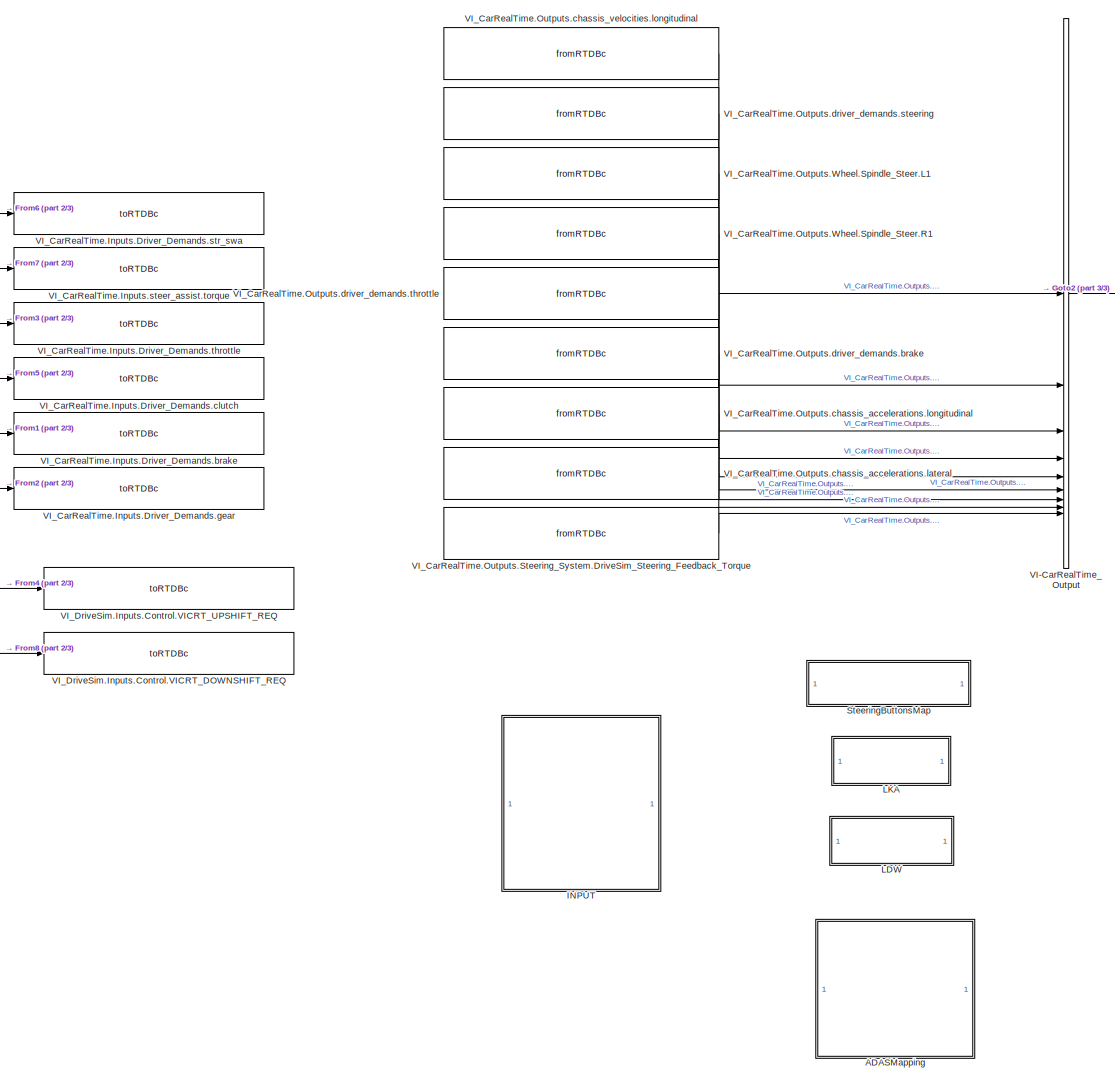
[diagram: root canvas - part 1/3, center side, full height]
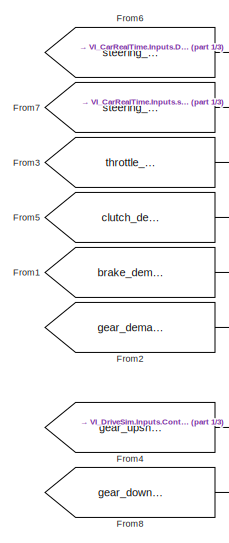
[diagram: root canvas - part 2/3, middle left region]
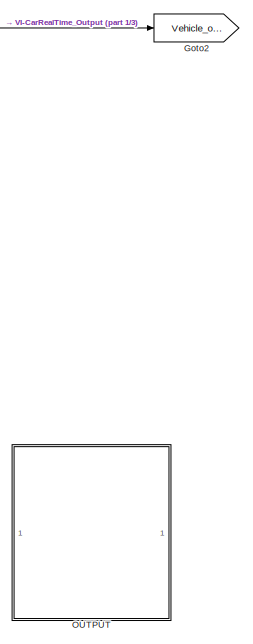
[diagram: root canvas - part 3/3, middle right region]
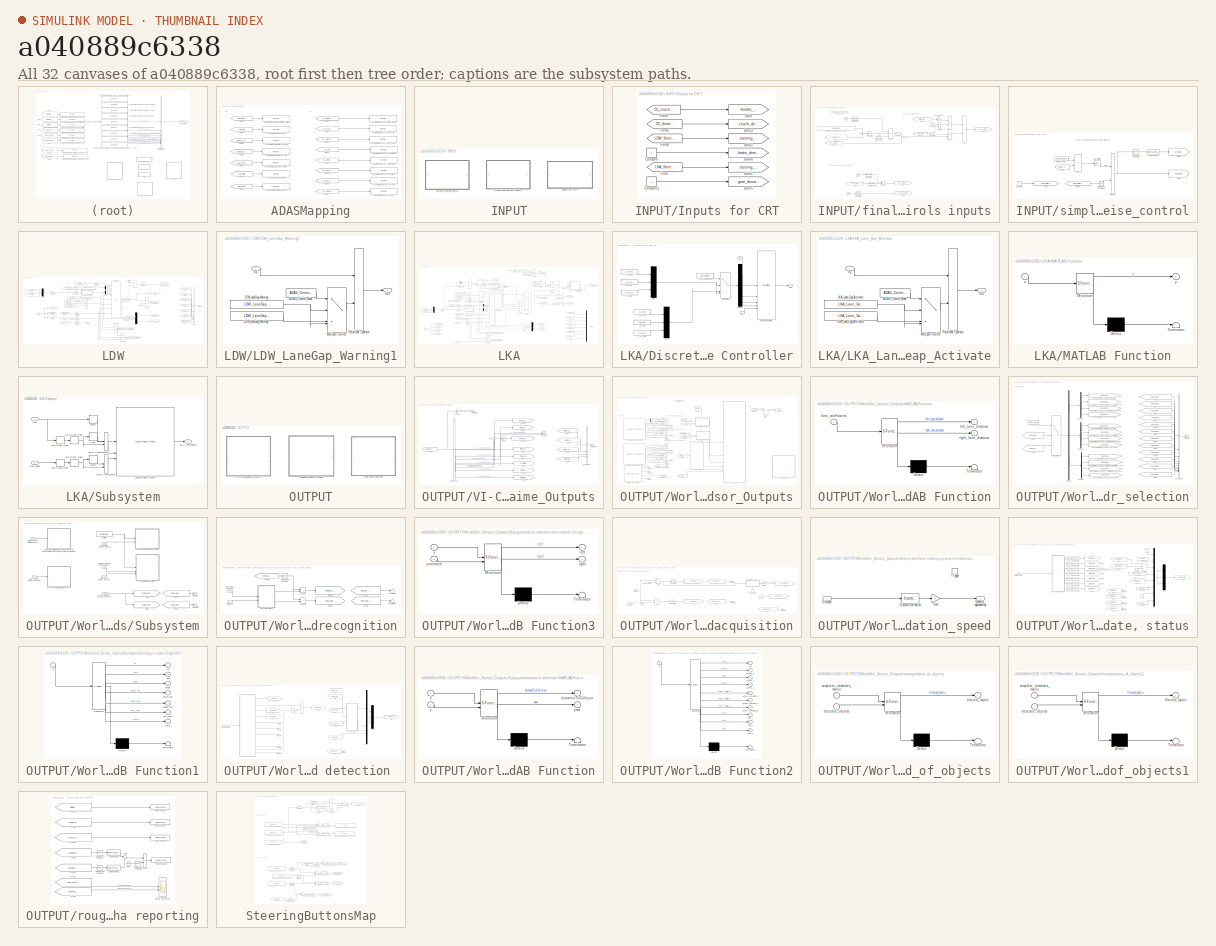
[diagram: thumbnail index - all 32 canvases of the model, root first then tree order]
MODEL slx_a040889c6338
KIND model
CONFIG AbsTol = auto
CONFIG EnableMultiTasking = on
CONFIG FixedStep = 0.001
CONFIG InitFcn = clear mex
CONFIG MaxStep = auto
CONFIG MinStep = auto
CONFIG RelTol = 1e-3
CONFIG SampleTimeConstraint = Unconstrained
CONFIG SolverName = FixedStepAuto
CONFIG StartTime = 0.0
CONFIG StopTime = Inf
WORKSPACE source: mxarray member
WORKSPACE worldsim_instance: object (value not decoded)
BLOCK [SubSystem] ADASMapping
BLOCK [Reference] ADASMapping/ADAS.Outputs.LDW.LDW_On  REF=simwbSfunlib/toRTDBc
  SourceBlock = simwbSfunlib/toRTDBc
  SourceProductName = SimWB MLToolkit
  SourceType = RTDB_Output
BLOCK [Reference] ADASMapping/ADAS.Outputs.LDW.LDW_On_Left  REF=simwbSfunlib/toRTDBc
  SourceBlock = simwbSfunlib/toRTDBc
  SourceProductName = SimWB MLToolkit
  SourceType = RTDB_Output
BLOCK [Reference] ADASMapping/ADAS.Outputs.LDW.LDW_On_Pulse  REF=simwbSfunlib/toRTDBc
  SourceBlock = simwbSfunlib/toRTDBc
  SourceProductName = SimWB MLToolkit
  SourceType = RTDB_Output
BLOCK [Reference] ADASMapping/ADAS.Outputs.LDW.LDW_On_Right  REF=simwbSfunlib/toRTDBc
  SourceBlock = simwbSfunlib/toRTDBc
  SourceProductName = SimWB MLToolkit
  SourceType = RTDB_Output
BLOCK [Reference] ADASMapping/ADAS.Outputs.LDW.LDW_Ready  REF=simwbSfunlib/toRTDBc
  SourceBlock = simwbSfunlib/toRTDBc
  SourceProductName = SimWB MLToolkit
  SourceType = RTDB_Output
BLOCK [Reference] ADASMapping/ADAS.Outputs.LDW.LDW_Steering_Torque  REF=simwbSfunlib/toRTDBc
  SourceBlock = simwbSfunlib/toRTDBc
  SourceProductName = SimWB MLToolkit
  SourceType = RTDB_Output
BLOCK [Reference] ADASMapping/ADAS.Outputs.LDW.LDW_White  REF=simwbSfunlib/toRTDBc
  SourceBlock = simwbSfunlib/toRTDBc
  SourceProductName = SimWB MLToolkit
  SourceType = RTDB_Output
BLOCK [Reference] ADASMapping/ADAS.Outputs.LKA.LKA_AEB_Sound  REF=simwbSfunlib/toRTDBc
  SourceBlock = simwbSfunlib/toRTDBc
  SourceProductName = SimWB MLToolkit
  SourceType = RTDB_Output
BLOCK [Reference] ADASMapping/ADAS.Outputs.LKA.LKA_On_Display  REF=simwbSfunlib/toRTDBc
  SourceBlock = simwbSfunlib/toRTDBc
  SourceProductName = SimWB MLToolkit
  SourceType = RTDB_Output
BLOCK [Reference] ADASMapping/ADAS.Outputs.LKA.LKA_On_Left  REF=simwbSfunlib/toRTDBc
  SourceBlock = simwbSfunlib/toRTDBc
  SourceProductName = SimWB MLToolkit
  SourceType = RTDB_Output
BLOCK [Reference] ADASMapping/ADAS.Outputs.LKA.LKA_On_Pulse  REF=simwbSfunlib/toRTDBc
  SourceBlock = simwbSfunlib/toRTDBc
  SourceProductName = SimWB MLToolkit
  SourceType = RTDB_Output
BLOCK [Reference] ADASMapping/ADAS.Outputs.LKA.LKA_On_Right  REF=simwbSfunlib/toRTDBc
  SourceBlock = simwbSfunlib/toRTDBc
  SourceProductName = SimWB MLToolkit
  SourceType = RTDB_Output
BLOCK [Reference] ADASMapping/ADAS.Outputs.LKA.LKA_Ready  REF=simwbSfunlib/toRTDBc
  SourceBlock = simwbSfunlib/toRTDBc
  SourceProductName = SimWB MLToolkit
  SourceType = RTDB_Output
BLOCK [Reference] ADASMapping/ADAS.Outputs.LKA.LKA_Steer_Angle  REF=simwbSfunlib/toRTDBc
  SourceBlock = simwbSfunlib/toRTDBc
  SourceProductName = SimWB MLToolkit
  SourceType = RTDB_Output
BLOCK [Reference] ADASMapping/ADAS.Outputs.LKA.LKA_Steer_Mode  REF=simwbSfunlib/toRTDBc
  SourceBlock = simwbSfunlib/toRTDBc
  SourceProductName = SimWB MLToolkit
  SourceType = RTDB_Output
BLOCK [From] ADASMapping/From17
  GotoTag = LDW_White
  TagVisibility = global
BLOCK [From] ADASMapping/From18
  GotoTag = LDW_Ready
  TagVisibility = global
BLOCK [From] ADASMapping/From19
  GotoTag = LDW_Steering_Torque
  TagVisibility = global
BLOCK [From] ADASMapping/From20
  GotoTag = LDW_On
  TagVisibility = global
BLOCK [From] ADASMapping/From21
  GotoTag = LDW_On_Pulse
  TagVisibility = global
BLOCK [From] ADASMapping/From22
  GotoTag = LDW_On_Left
  TagVisibility = global
BLOCK [From] ADASMapping/From23
  GotoTag = LDW_On_Right
  TagVisibility = global
BLOCK [From] ADASMapping/From24
  GotoTag = LKA_On_Left
  TagVisibility = global
BLOCK [From] ADASMapping/From25
  GotoTag = LKA_On_Right
  TagVisibility = global
BLOCK [From] ADASMapping/From26
  GotoTag = LKA_Steer_Mode
  TagVisibility = global
BLOCK [From] ADASMapping/From27
  GotoTag = LKA_On
  TagVisibility = global
BLOCK [From] ADASMapping/From28
  GotoTag = LKA_AEB_Sound
  TagVisibility = global
BLOCK [From] ADASMapping/From29
  GotoTag = LKA_On_Pulse
  TagVisibility = global
BLOCK [From] ADASMapping/From30
  GotoTag = LKA_Steer_Angle
  TagVisibility = global
BLOCK [From] ADASMapping/From31
  GotoTag = LKA_Ready
  TagVisibility = global
BLOCK [From] From1
  Commented = on
  GotoTag = brake_demand
  TagVisibility = global
BLOCK [From] From2
  Commented = on
  GotoTag = gear_demand
  TagVisibility = global
BLOCK [From] From3
  Commented = on
  GotoTag = throttle_demand
  TagVisibility = global
BLOCK [From] From4
  GotoTag = gear_upshift_demand
  TagVisibility = global
BLOCK [From] From5
  Commented = on
  GotoTag = clutch_demand
  TagVisibility = global
BLOCK [From] From6
  GotoTag = steering_angle_demand
  TagVisibility = global
BLOCK [From] From7
  GotoTag = steering_torque_demand
  TagVisibility = global
BLOCK [From] From8
  GotoTag = gear_downshift_demand
  TagVisibility = global
BLOCK [Goto] Goto2
  GotoTag = Vehicle_outputs
  TagVisibility = global
BLOCK [SubSystem] INPUT
BLOCK [SubSystem] INPUT/Inputs for CRT
BLOCK [Constant] INPUT/Inputs for CRT/Constant
  Value = 0
BLOCK [Constant] INPUT/Inputs for CRT/Constant1
BLOCK [From] INPUT/Inputs for CRT/From
  GotoTag = LKA_Steering_signal
  TagVisibility = global
BLOCK [From] INPUT/Inputs for CRT/From1
  Commented = on
  GotoTag = CC_clutch_demand
  TagVisibility = global
BLOCK [From] INPUT/Inputs for CRT/From2
  Commented = on
  GotoTag = CC_throttle_demand
  TagVisibility = global
BLOCK [From] INPUT/Inputs for CRT/From4
  GotoTag = LDW_Steering_Torque
  TagVisibility = global
BLOCK [Goto] INPUT/Inputs for CRT/Goto
  Commented = on
  GotoTag = throttle_demand
  TagVisibility = global
BLOCK [Goto] INPUT/Inputs for CRT/Goto1
  GotoTag = steering_angle_demand
  TagVisibility = global
BLOCK [Goto] INPUT/Inputs for CRT/Goto2
  GotoTag = steering_torque_demand
  TagVisibility = global
BLOCK [Goto] INPUT/Inputs for CRT/Goto3
  Commented = on
  GotoTag = clutch_demand
  TagVisibility = global
BLOCK [Goto] INPUT/Inputs for CRT/Goto4
  GotoTag = brake_demand
  TagVisibility = global
BLOCK [Goto] INPUT/Inputs for CRT/Goto5
  GotoTag = gear_demand
  TagVisibility = global
BLOCK [SubSystem] INPUT/finalizing controls inputs
BLOCK [Sum] INPUT/finalizing controls inputs/Add
  IconShape = rectangular
BLOCK [Clock] INPUT/finalizing controls inputs/Clock
BLOCK [Clock] INPUT/finalizing controls inputs/Clock1
BLOCK [Clock] INPUT/finalizing controls inputs/Clock2
  Commented = on
BLOCK [Reference] INPUT/finalizing controls inputs/Compare To Constant  REF=simulink/Logic and Bit
Operations/Compare
To Constant
  SourceBlock = simulink/Logic and Bit\nOperations/Compare\nTo Constant
  SourceType = Compare To Constant
BLOCK [Reference] INPUT/finalizing controls inputs/Compare To Constant1  REF=simulink/Logic and Bit
Operations/Compare
To Constant
  SourceBlock = simulink/Logic and Bit\nOperations/Compare\nTo Constant
  SourceType = Compare To Constant
BLOCK [Reference] INPUT/finalizing controls inputs/Compare To Constant2  REF=simulink/Logic and Bit
Operations/Compare
To Constant
  SourceBlock = simulink/Logic and Bit\nOperations/Compare\nTo Constant
  SourceType = Compare To Constant
BLOCK [Reference] INPUT/finalizing controls inputs/Compare To Constant5  REF=simulink/Logic and Bit
Operations/Compare
To Constant
  Commented = on
  SourceBlock = simulink/Logic and Bit\nOperations/Compare\nTo Constant
  SourceType = Compare To Constant
BLOCK [Constant] INPUT/finalizing controls inputs/Constant2
BLOCK [Reference] INPUT/finalizing controls inputs/Detect Decrease  REF=simulink/Logic and Bit
Operations/Detect
Decrease
  SourceBlock = simulink/Logic and Bit\nOperations/Detect\nDecrease
  SourceType = Detect Decrease
BLOCK [From] INPUT/finalizing controls inputs/From1
  GotoTag = LKA_On
  TagVisibility = global
BLOCK [From] INPUT/finalizing controls inputs/From2
  GotoTag = LaneGap_speed_left_ws
  TagVisibility = global
BLOCK [From] INPUT/finalizing controls inputs/From3
  GotoTag = LKA_On
  TagVisibility = global
BLOCK [From] INPUT/finalizing controls inputs/From4
  GotoTag = Driver_Steering
  TagVisibility = global
BLOCK [From] INPUT/finalizing controls inputs/From8
  GotoTag = LKA_Steer_Angle
  TagVisibility = global
BLOCK [Goto] INPUT/finalizing controls inputs/Goto
  GotoTag = LKA_Stop_signal
  TagVisibility = global
BLOCK [Goto] INPUT/finalizing controls inputs/Goto1
  GotoTag = LKA_Steering_signal
  TagVisibility = global
BLOCK [Goto] INPUT/finalizing controls inputs/Goto2
  Commented = on
  GotoTag = LSS_controls_Start_signal
  TagVisibility = global
BLOCK [Gain] INPUT/finalizing controls inputs/Neg_driver_str_gain
  Gain = -1.5
BLOCK [Reference] INPUT/finalizing controls inputs/PID Controller  REF=slpidlib/PID Controller
  SourceBlock = slpidlib/PID Controller
  SourceType = PID 1dof
BLOCK [Product] INPUT/finalizing controls inputs/Product
  Inputs = 3
BLOCK [Product] INPUT/finalizing controls inputs/Product1
BLOCK [Product] INPUT/finalizing controls inputs/Product2
BLOCK [Product] INPUT/finalizing controls inputs/Product3
BLOCK [RateLimiter] INPUT/finalizing controls inputs/Rate Limiter
  FallingSlewLimit = -inf
  RisingSlewLimit = 0.75
  SampleTimeMode = inherited
BLOCK [RateLimiter] INPUT/finalizing controls inputs/Rate Limiter1
  FallingSlewLimit = -AP_Transition_Rate
  RisingSlewLimit = AP_Transition_Rate
  SampleTimeMode = inherited
BLOCK [Sum] INPUT/finalizing controls inputs/Subtract1
  IconShape = rectangular
  Inputs = +-
BLOCK [Sum] INPUT/finalizing controls inputs/Sum
  Inputs = +-
BLOCK [Sum] INPUT/finalizing controls inputs/Sum1
  Inputs = +-
BLOCK [Constant] INPUT/finalizing controls inputs/prescribed_approaching_speed
  Value = variant_approaching_speed(index_variant_approaching_speed)
BLOCK [SubSystem] INPUT/simple_cruise_control
  Commented = on
BLOCK [DataTypeConversion] INPUT/simple_cruise_control/Cast To Double
  OutDataTypeStr = double
  RndMeth = Floor
  SaturateOnIntegerOverflow = off
BLOCK [Reference] INPUT/simple_cruise_control/Compare To Constant4  REF=simulink/Logic and Bit
Operations/Compare
To Constant
  SourceBlock = simulink/Logic and Bit\nOperations/Compare\nTo Constant
  SourceType = Compare To Constant
BLOCK [Reference] INPUT/simple_cruise_control/Compare To Constant5  REF=simulink/Logic and Bit
Operations/Compare
To Constant
  SourceBlock = simulink/Logic and Bit\nOperations/Compare\nTo Constant
  SourceType = Compare To Constant
BLOCK [Constant] INPUT/simple_cruise_control/Constant
  Value = 0
BLOCK [From] INPUT/simple_cruise_control/From4
  GotoTag = Vehicle_Speed
  TagVisibility = global
BLOCK [From] INPUT/simple_cruise_control/From6
  GotoTag = AEB_Output_Brake
BLOCK [Goto] INPUT/simple_cruise_control/Goto
  GotoTag = AEB_Output_Brake
BLOCK [Goto] INPUT/simple_cruise_control/Goto1
  GotoTag = CC_clutch_demand
  TagVisibility = global
BLOCK [Goto] INPUT/simple_cruise_control/Goto2
  GotoTag = CC_throttle_demand
  TagVisibility = global
BLOCK [Reference] INPUT/simple_cruise_control/PID Controller  REF=slpidlib/PID Controller
  SourceBlock = slpidlib/PID Controller
  SourceType = PID 1dof
BLOCK [Product] INPUT/simple_cruise_control/Product
BLOCK [Sum] INPUT/simple_cruise_control/Sum
  IconShape = rectangular
  Inputs = +-
BLOCK [Constant] INPUT/simple_cruise_control/target_speed_
  Value = target_speed
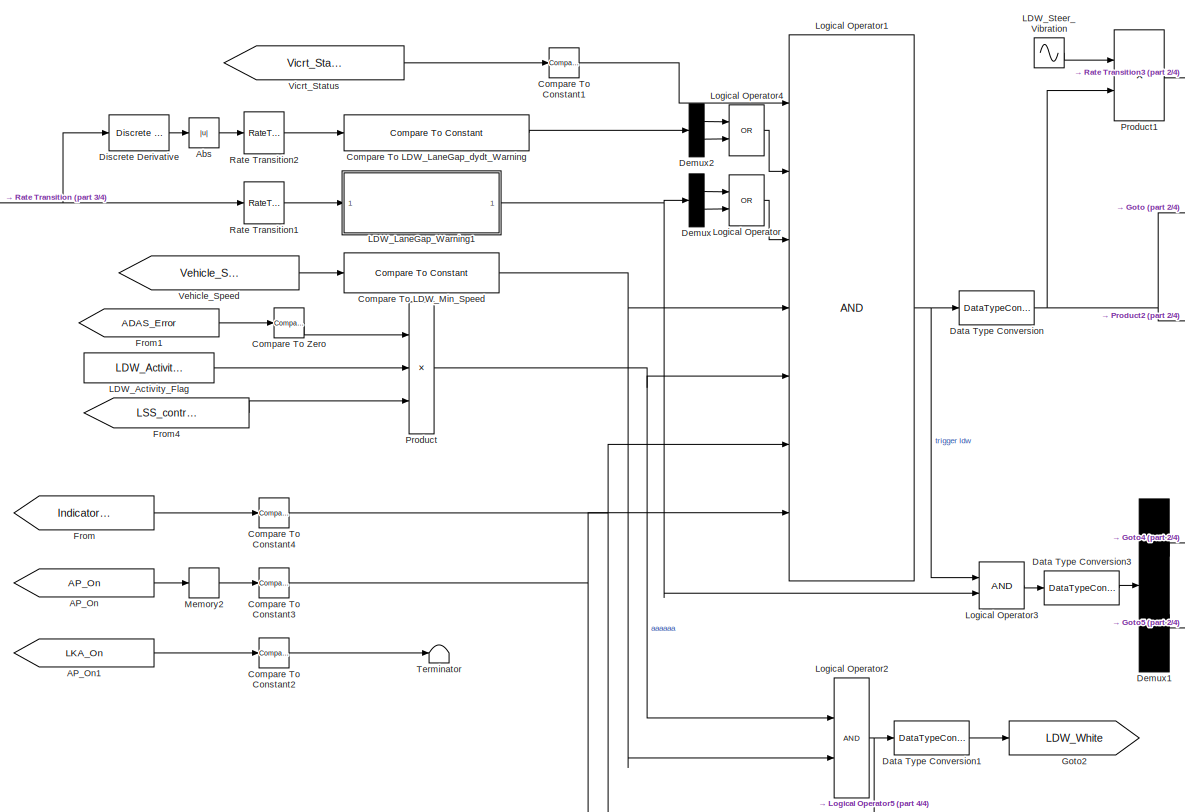
[diagram: LDW - part 1/4, center side, full height]
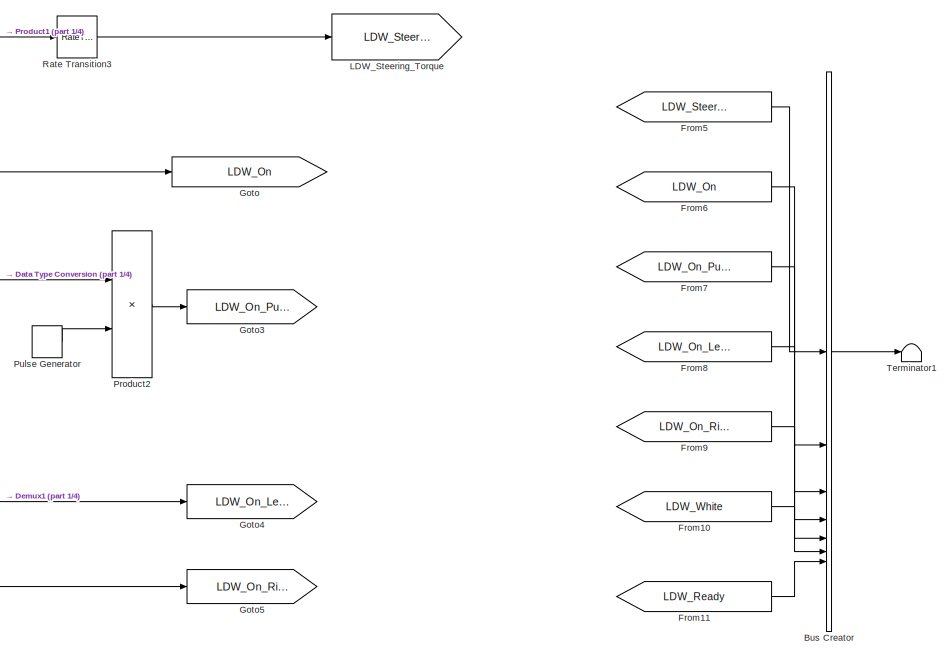
[diagram: LDW - part 2/4, middle right region]
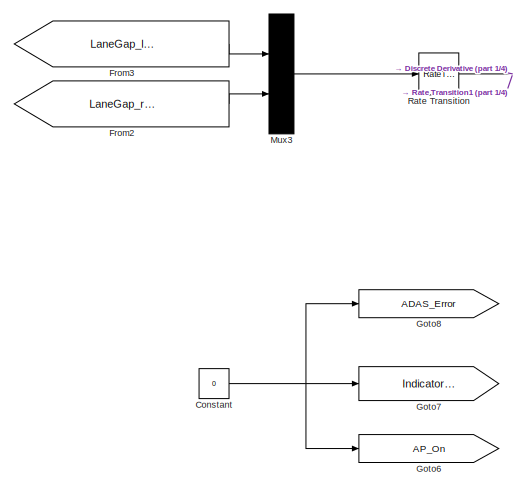
[diagram: LDW - part 3/4, middle left region]
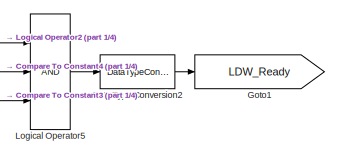
[diagram: LDW - part 4/4, bottom center region]
BLOCK [SubSystem] LDW
BLOCK [From] LDW/AP_On
  GotoTag = AP_On
BLOCK [From] LDW/AP_On1
  GotoTag = LKA_On
  TagVisibility = global
BLOCK [Abs] LDW/Abs
  SaturateOnIntegerOverflow = off
BLOCK [BusCreator] LDW/Bus Creator
  DisplayOption = bar
  InheritFromInputs = on
  Inputs = 7
BLOCK [Reference] LDW/Compare To Constant1  REF=simulink/Logic and Bit
Operations/Compare
To Constant
  SourceBlock = simulink/Logic and Bit\nOperations/Compare\nTo Constant
  SourceType = Compare To Constant
BLOCK [Reference] LDW/Compare To Constant2  REF=simulink/Logic and Bit
Operations/Compare
To Constant
  SourceBlock = simulink/Logic and Bit\nOperations/Compare\nTo Constant
  SourceType = Compare To Constant
BLOCK [Reference] LDW/Compare To Constant3  REF=simulink/Logic and Bit
Operations/Compare
To Constant
  SourceBlock = simulink/Logic and Bit\nOperations/Compare\nTo Constant
  SourceType = Compare To Constant
BLOCK [Reference] LDW/Compare To Constant4  REF=simulink/Logic and Bit
Operations/Compare
To Constant
  SourceBlock = simulink/Logic and Bit\nOperations/Compare\nTo Constant
  SourceType = Compare To Constant
BLOCK [Reference] LDW/Compare To LDW_LaneGap_dydt_Warning  REF=simulink/Logic and Bit
Operations/Compare
To Constant
  SourceBlock = simulink/Logic and Bit\nOperations/Compare\nTo Constant
  SourceType = Compare To Constant
BLOCK [Reference] LDW/Compare To LDW_Min_Speed  REF=simulink/Logic and Bit
Operations/Compare
To Constant
  SourceBlock = simulink/Logic and Bit\nOperations/Compare\nTo Constant
  SourceType = Compare To Constant
BLOCK [Reference] LDW/Compare To Zero  REF=simulink/Logic and Bit
Operations/Compare
To Zero
  SourceBlock = simulink/Logic and Bit\nOperations/Compare\nTo Zero
  SourceType = Compare To Zero
BLOCK [Constant] LDW/Constant
  Value = 0
BLOCK [DataTypeConversion] LDW/Data Type Conversion
  OutDataTypeStr = double
  RndMeth = Floor
  SaturateOnIntegerOverflow = off
BLOCK [DataTypeConversion] LDW/Data Type Conversion1
  OutDataTypeStr = double
  RndMeth = Floor
  SaturateOnIntegerOverflow = off
BLOCK [DataTypeConversion] LDW/Data Type Conversion2
  OutDataTypeStr = double
  RndMeth = Floor
  SaturateOnIntegerOverflow = off
BLOCK [DataTypeConversion] LDW/Data Type Conversion3
  OutDataTypeStr = double
  RndMeth = Floor
  SaturateOnIntegerOverflow = off
BLOCK [Demux] LDW/Demux
  Outputs = 2
BLOCK [Demux] LDW/Demux1
  Outputs = 2
BLOCK [Demux] LDW/Demux2
  Outputs = 2
BLOCK [Reference] LDW/Discrete Derivative  REF=simulink/Discrete/Discrete Derivative
  SourceBlock = simulink/Discrete/Discrete Derivative
  SourceType = Discrete Derivative
BLOCK [From] LDW/From
  GotoTag = Indicator_On
BLOCK [From] LDW/From1
  GotoTag = ADAS_Error
BLOCK [From] LDW/From10
  GotoTag = LDW_White
  TagVisibility = global
BLOCK [From] LDW/From11
  GotoTag = LDW_Ready
  TagVisibility = global
BLOCK [From] LDW/From2
  GotoTag = LaneGap_right_ws
  TagVisibility = global
BLOCK [From] LDW/From3
  GotoTag = LaneGap_left_ws
  TagVisibility = global
BLOCK [From] LDW/From4
  GotoTag = LSS_controls_Start_signal
  TagVisibility = global
BLOCK [From] LDW/From5
  GotoTag = LDW_Steering_Torque
  TagVisibility = global
BLOCK [From] LDW/From6
  GotoTag = LDW_On
  TagVisibility = global
BLOCK [From] LDW/From7
  GotoTag = LDW_On_Pulse
  TagVisibility = global
BLOCK [From] LDW/From8
  GotoTag = LDW_On_Left
  TagVisibility = global
BLOCK [From] LDW/From9
  GotoTag = LDW_On_Right
  TagVisibility = global
BLOCK [Goto] LDW/Goto
  GotoTag = LDW_On
  TagVisibility = global
BLOCK [Goto] LDW/Goto1
  GotoTag = LDW_Ready
  TagVisibility = global
BLOCK [Goto] LDW/Goto2
  GotoTag = LDW_White
  TagVisibility = global
BLOCK [Goto] LDW/Goto3
  GotoTag = LDW_On_Pulse
  TagVisibility = global
BLOCK [Goto] LDW/Goto4
  GotoTag = LDW_On_Left
  TagVisibility = global
BLOCK [Goto] LDW/Goto5
  GotoTag = LDW_On_Right
  TagVisibility = global
BLOCK [Goto] LDW/Goto6
  GotoTag = AP_On
BLOCK [Goto] LDW/Goto7
  GotoTag = Indicator_On
BLOCK [Goto] LDW/Goto8
  GotoTag = ADAS_Error
BLOCK [Constant] LDW/LDW_Activity_Flag
  Value = LDW_Activity_Flag
BLOCK [SubSystem] LDW/LDW_LaneGap_Warning1
BLOCK [Constant] LDW/LDW_LaneGap_Warning1/ADAS_Control_Mode
  Value = ADAS_Control_Mode
BLOCK [Inport] LDW/LDW_LaneGap_Warning1/In1
BLOCK [Constant] LDW/LDW_LaneGap_Warning1/LDW_LaneGap_Warning
  Value = LDW_LaneGap_Warning(1)
BLOCK [Constant] LDW/LDW_LaneGap_Warning1/LDW_LaneGap_Warning1
  Value = LDW_LaneGap_Warning(2)
  VectorParams1D = off
BLOCK [MultiPortSwitch] LDW/LDW_LaneGap_Warning1/Multiport Switch
  DataPortForDefault = Additional data port
  DiagnosticForDefault = None
  InputSameDT = off
  Inputs = 2
  SaturateOnIntegerOverflow = off
BLOCK [Outport] LDW/LDW_LaneGap_Warning1/Out1
  VectorParamsAs1DForOutWhenUnconnected = off
BLOCK [RelationalOperator] LDW/LDW_LaneGap_Warning1/Relational Operator
  InputSameDT = off
  Operator = <
  OutDataTypeStr = boolean
BLOCK [Sin] LDW/LDW_Steer_Vibration
  Amplitude = LDW_Steer_Vibration_Amplitude
  Frequency = LDW_Steer_Vibration_Freq*2*pi
  SampleTime = 0
BLOCK [Goto] LDW/LDW_Steering_Torque
  GotoTag = LDW_Steering_Torque
  TagVisibility = global
BLOCK [Logic] LDW/Logical Operator
  AllPortsSameDT = off
  Operator = OR
  OutDataTypeStr = boolean
BLOCK [Logic] LDW/Logical Operator1
  AllPortsSameDT = off
  Inputs = 7
  OutDataTypeStr = boolean
BLOCK [Logic] LDW/Logical Operator2
  AllPortsSameDT = off
  OutDataTypeStr = boolean
BLOCK [Logic] LDW/Logical Operator3
  AllPortsSameDT = off
  OutDataTypeStr = boolean
BLOCK [Logic] LDW/Logical Operator4
  AllPortsSameDT = off
  Operator = OR
  OutDataTypeStr = boolean
BLOCK [Logic] LDW/Logical Operator5
  AllPortsSameDT = off
  Inputs = 3
  OutDataTypeStr = boolean
BLOCK [Memory] LDW/Memory2
BLOCK [Mux] LDW/Mux3
  DisplayOption = bar
  Inputs = 2
BLOCK [Product] LDW/Product
  Inputs = 3
BLOCK [Product] LDW/Product1
BLOCK [Product] LDW/Product2
BLOCK [DiscretePulseGenerator] LDW/Pulse Generator
  Period = 1/LKA_On_Display_Freq
  PulseType = Time based
  PulseWidth = 50
BLOCK [RateTransition] LDW/Rate Transition
  OutPortSampleTime = 1/LDW_Freq_Hz
BLOCK [RateTransition] LDW/Rate Transition1
  OutPortSampleTime = 1/1000
BLOCK [RateTransition] LDW/Rate Transition2
  OutPortSampleTime = 1/1000
BLOCK [RateTransition] LDW/Rate Transition3
  OutPortSampleTime = 1/1000
BLOCK [Terminator] LDW/Terminator
BLOCK [Terminator] LDW/Terminator1
BLOCK [From] LDW/Vehicle_Speed
  GotoTag = Vehicle_Speed
  TagVisibility = global
BLOCK [From] LDW/Vicrt_Status
  GotoTag = Vicrt_Status
  TagVisibility = global
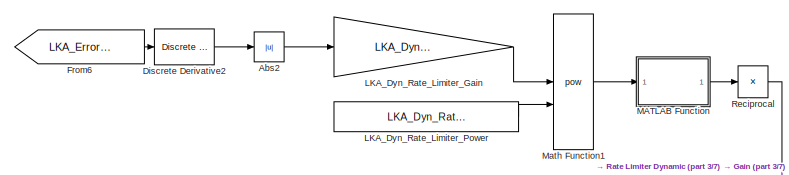
[diagram: LKA - part 1/7, top center region]
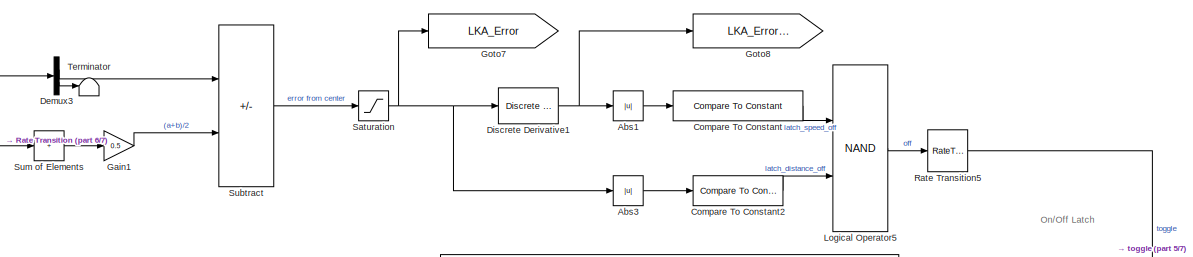
[diagram: LKA - part 2/7, top center region]
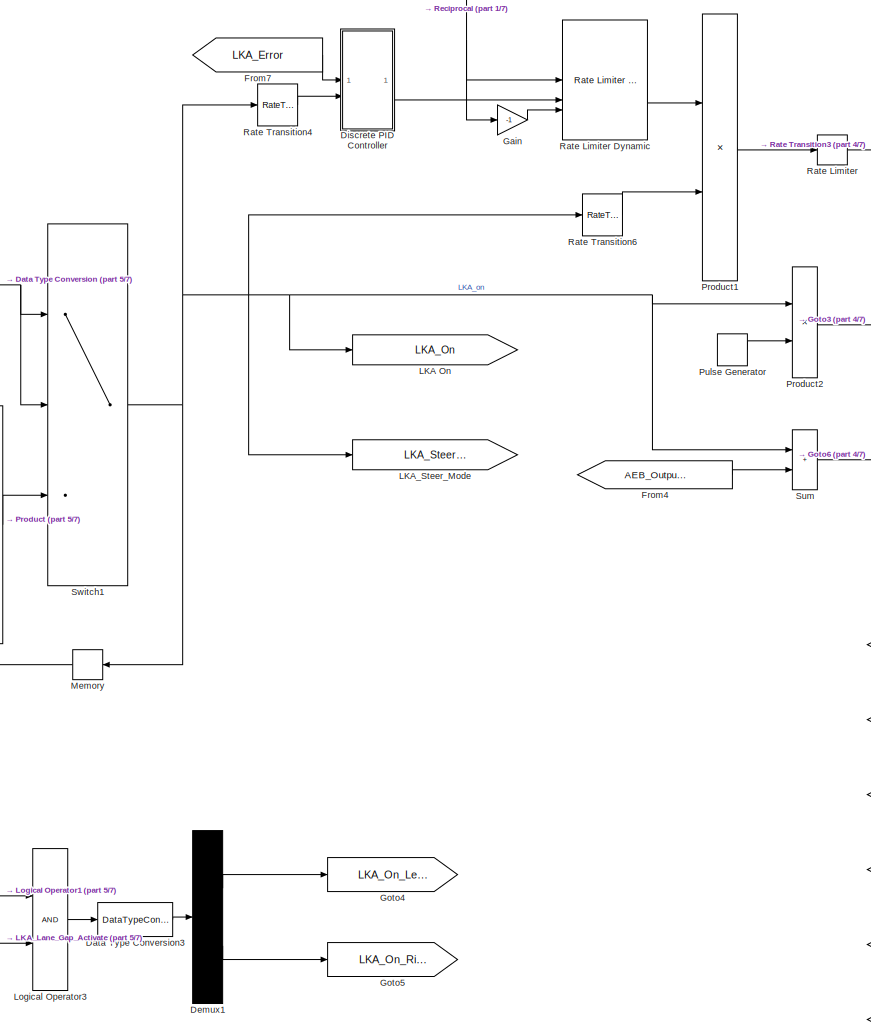
[diagram: LKA - part 3/7, middle right region]
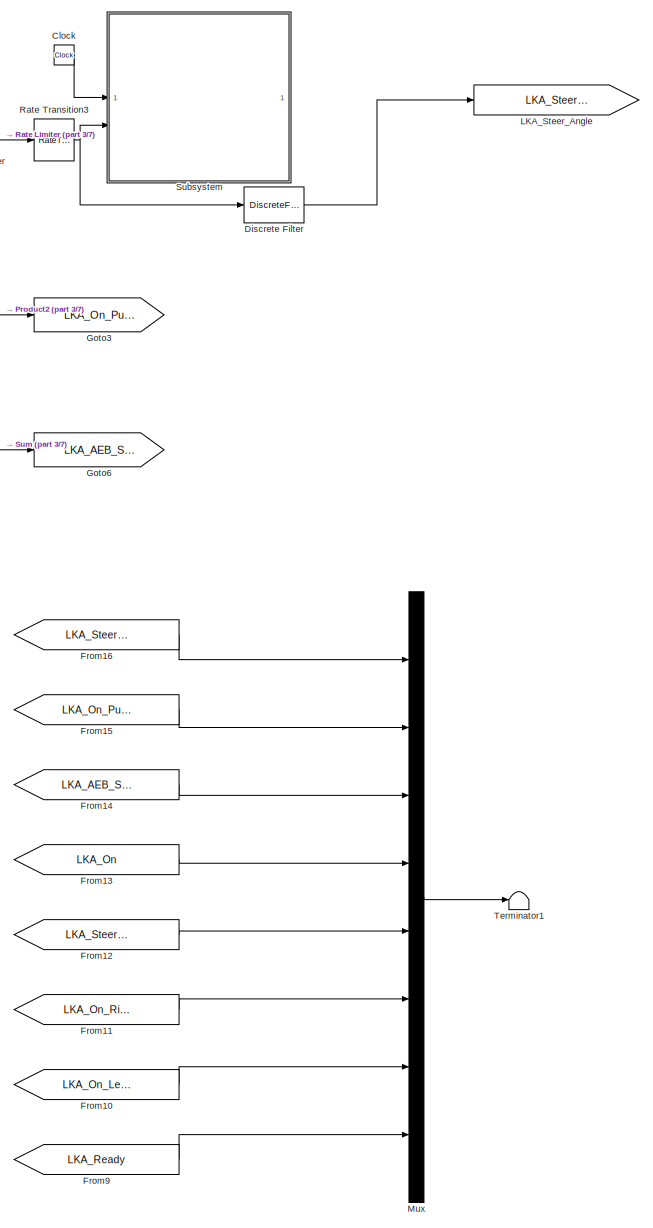
[diagram: LKA - part 4/7, right side, full height]
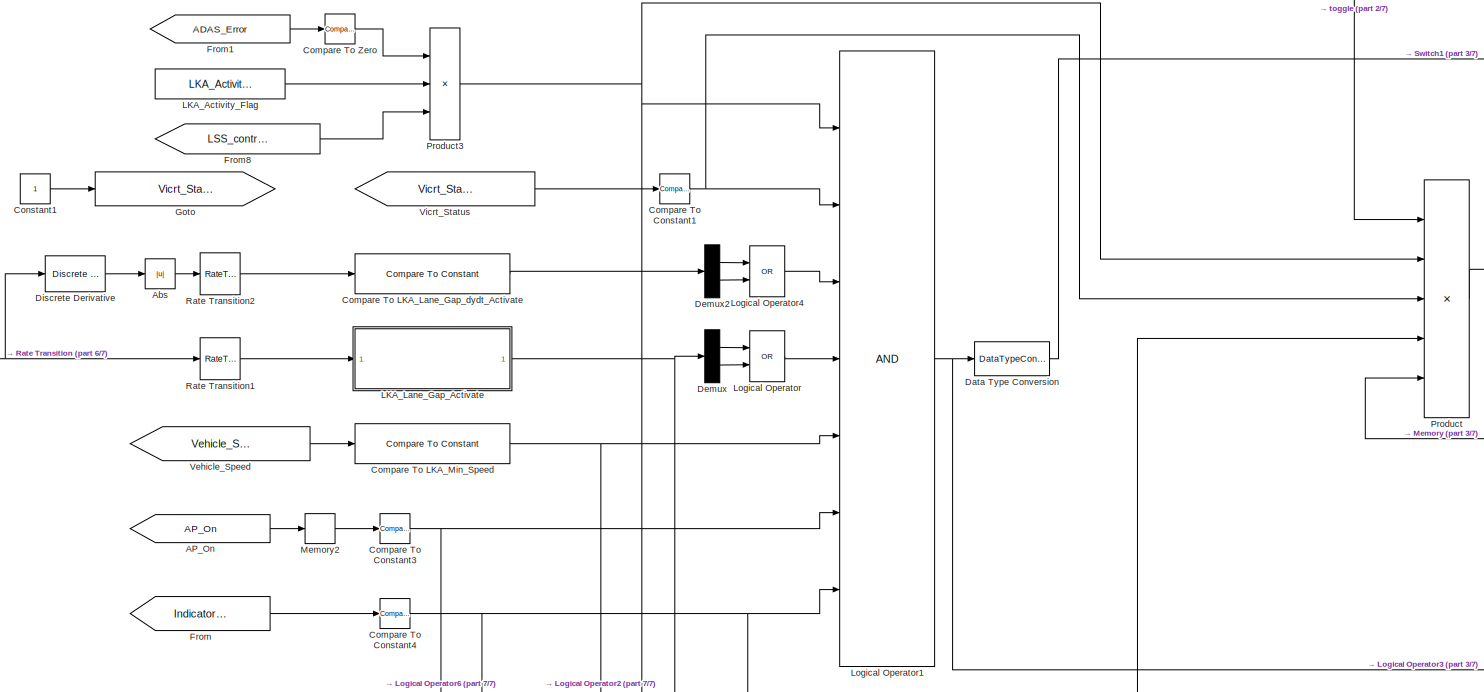
[diagram: LKA - part 5/7, central region]
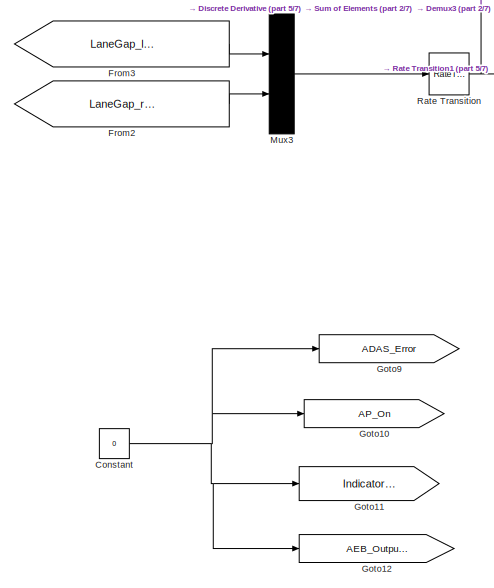
[diagram: LKA - part 6/7, bottom left region]
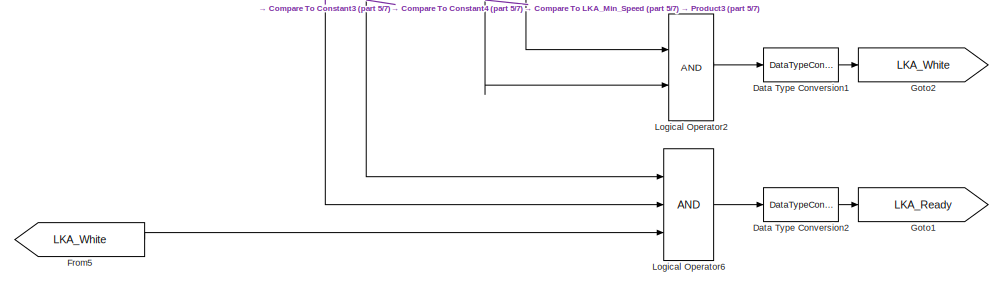
[diagram: LKA - part 7/7, bottom left region]
BLOCK [SubSystem] LKA
BLOCK [From] LKA/AP_On
  GotoTag = AP_On
BLOCK [Abs] LKA/Abs
  SaturateOnIntegerOverflow = off
BLOCK [Abs] LKA/Abs1
  SaturateOnIntegerOverflow = off
BLOCK [Abs] LKA/Abs2
  SaturateOnIntegerOverflow = off
BLOCK [Abs] LKA/Abs3
  SaturateOnIntegerOverflow = off
BLOCK [Clock] LKA/Clock
  Commented = on
BLOCK [Reference] LKA/Compare To Constant  REF=simulink/Logic and Bit
Operations/Compare
To Constant
  SourceBlock = simulink/Logic and Bit\nOperations/Compare\nTo Constant
  SourceType = Compare To Constant
BLOCK [Reference] LKA/Compare To Constant1  REF=simulink/Logic and Bit
Operations/Compare
To Constant
  SourceBlock = simulink/Logic and Bit\nOperations/Compare\nTo Constant
  SourceType = Compare To Constant
BLOCK [Reference] LKA/Compare To Constant2  REF=simulink/Logic and Bit
Operations/Compare
To Constant
  SourceBlock = simulink/Logic and Bit\nOperations/Compare\nTo Constant
  SourceType = Compare To Constant
BLOCK [Reference] LKA/Compare To Constant3  REF=simulink/Logic and Bit
Operations/Compare
To Constant
  SourceBlock = simulink/Logic and Bit\nOperations/Compare\nTo Constant
  SourceType = Compare To Constant
BLOCK [Reference] LKA/Compare To Constant4  REF=simulink/Logic and Bit
Operations/Compare
To Constant
  SourceBlock = simulink/Logic and Bit\nOperations/Compare\nTo Constant
  SourceType = Compare To Constant
BLOCK [Reference] LKA/Compare To LKA_Lane_Gap_dydt_Activate  REF=simulink/Logic and Bit
Operations/Compare
To Constant
  SourceBlock = simulink/Logic and Bit\nOperations/Compare\nTo Constant
  SourceType = Compare To Constant
BLOCK [Reference] LKA/Compare To LKA_Min_Speed  REF=simulink/Logic and Bit
Operations/Compare
To Constant
  SourceBlock = simulink/Logic and Bit\nOperations/Compare\nTo Constant
  SourceType = Compare To Constant
BLOCK [Reference] LKA/Compare To Zero  REF=simulink/Logic and Bit
Operations/Compare
To Zero
  SourceBlock = simulink/Logic and Bit\nOperations/Compare\nTo Zero
  SourceType = Compare To Zero
BLOCK [Constant] LKA/Constant
  Value = 0
BLOCK [Constant] LKA/Constant1
  Commented = on
BLOCK [DataTypeConversion] LKA/Data Type Conversion
  OutDataTypeStr = double
  RndMeth = Floor
  SaturateOnIntegerOverflow = off
BLOCK [DataTypeConversion] LKA/Data Type Conversion1
  OutDataTypeStr = double
  RndMeth = Floor
  SaturateOnIntegerOverflow = off
BLOCK [DataTypeConversion] LKA/Data Type Conversion2
  OutDataTypeStr = double
  RndMeth = Floor
  SaturateOnIntegerOverflow = off
BLOCK [DataTypeConversion] LKA/Data Type Conversion3
  OutDataTypeStr = double
  RndMeth = Floor
  SaturateOnIntegerOverflow = off
BLOCK [Demux] LKA/Demux
  Outputs = 2
BLOCK [Demux] LKA/Demux1
  Outputs = 2
BLOCK [Demux] LKA/Demux2
  Outputs = 2
BLOCK [Demux] LKA/Demux3
  Outputs = 2
BLOCK [Reference] LKA/Discrete Derivative  REF=simulink/Discrete/Discrete Derivative
  SourceBlock = simulink/Discrete/Discrete Derivative
  SourceType = Discrete Derivative
BLOCK [Reference] LKA/Discrete Derivative1  REF=simulink/Discrete/Discrete Derivative
  SourceBlock = simulink/Discrete/Discrete Derivative
  SourceType = Discrete Derivative
BLOCK [Reference] LKA/Discrete Derivative2  REF=simulink/Discrete/Discrete Derivative
  SourceBlock = simulink/Discrete/Discrete Derivative
  SourceType = Discrete Derivative
BLOCK [DiscreteFilter] LKA/Discrete Filter
  Denominator = [butter_a_lka_out]
  InputPortMap = u0
  Numerator = [butter_b_lka_out]
  SampleTime = 1e-3
BLOCK [SubSystem] LKA/Discrete PID Controller
BLOCK [Constant] LKA/Discrete PID Controller/ADAS_Control_Mode
  Value = ADAS_Control_Mode
BLOCK [Demux] LKA/Discrete PID Controller/Demux
  Outputs = 3
BLOCK [Reference] LKA/Discrete PID Controller/Discrete PID Controller  REF=slpidlib/PID Controller
  SourceBlock = slpidlib/PID Controller
  SourceType = PID 1dof
BLOCK [Inport] LKA/Discrete PID Controller/In1
BLOCK [Inport] LKA/Discrete PID Controller/In2
  Port = 2
BLOCK [Constant] LKA/Discrete PID Controller/LKA_D(1)
  Value = LKA_D(1)
BLOCK [Constant] LKA/Discrete PID Controller/LKA_D(1)1
  Value = LKA_D(2)
BLOCK [Constant] LKA/Discrete PID Controller/LKA_I(1)
  Value = LKA_I(1)
BLOCK [Constant] LKA/Discrete PID Controller/LKA_I(1)1
  Value = LKA_I(2)
BLOCK [Constant] LKA/Discrete PID Controller/LKA_P(1)
  Value = LKA_P(1)
BLOCK [Constant] LKA/Discrete PID Controller/LKA_P(1)1
  Value = LKA_P(2)
BLOCK [MultiPortSwitch] LKA/Discrete PID Controller/Multiport Switch
  DataPortForDefault = Additional data port
  DiagnosticForDefault = None
  InputSameDT = off
  Inputs = 2
  SaturateOnIntegerOverflow = off
BLOCK [Mux] LKA/Discrete PID Controller/Mux
  DisplayOption = bar
  Inputs = 3
BLOCK [Mux] LKA/Discrete PID Controller/Mux1
  DisplayOption = bar
  Inputs = 3
BLOCK [Outport] LKA/Discrete PID Controller/Out1
  VectorParamsAs1DForOutWhenUnconnected = off
BLOCK [From] LKA/From
  GotoTag = Indicator_On
BLOCK [From] LKA/From1
  GotoTag = ADAS_Error
BLOCK [From] LKA/From10
  GotoTag = LKA_On_Left
  TagVisibility = global
BLOCK [From] LKA/From11
  GotoTag = LKA_On_Right
  TagVisibility = global
BLOCK [From] LKA/From12
  GotoTag = LKA_Steer_Mode
  TagVisibility = global
BLOCK [From] LKA/From13
  GotoTag = LKA_On
  TagVisibility = global
BLOCK [From] LKA/From14
  GotoTag = LKA_AEB_Sound
  TagVisibility = global
BLOCK [From] LKA/From15
  GotoTag = LKA_On_Pulse
  TagVisibility = global
BLOCK [From] LKA/From16
  GotoTag = LKA_Steer_Angle
  TagVisibility = global
BLOCK [From] LKA/From2
  GotoTag = LaneGap_right_ws
  TagVisibility = global
BLOCK [From] LKA/From3
  GotoTag = LaneGap_left_ws
  TagVisibility = global
BLOCK [From] LKA/From4
  GotoTag = AEB_Output_Active
BLOCK [From] LKA/From5
  GotoTag = LKA_White
  TagVisibility = global
BLOCK [From] LKA/From6
  GotoTag = LKA_Error_dydt
  TagVisibility = global
BLOCK [From] LKA/From7
  GotoTag = LKA_Error
  TagVisibility = global
BLOCK [From] LKA/From8
  GotoTag = LSS_controls_Start_signal
  TagVisibility = global
BLOCK [From] LKA/From9
  GotoTag = LKA_Ready
  TagVisibility = global
BLOCK [Gain] LKA/Gain
  Gain = -1
BLOCK [Gain] LKA/Gain1
  Gain = 0.5
BLOCK [Goto] LKA/Goto
  Commented = on
  GotoTag = Vicrt_Status
  TagVisibility = global
BLOCK [Goto] LKA/Goto1
  GotoTag = LKA_Ready
  TagVisibility = global
BLOCK [Goto] LKA/Goto10
  GotoTag = AP_On
BLOCK [Goto] LKA/Goto11
  GotoTag = Indicator_On
BLOCK [Goto] LKA/Goto12
  GotoTag = AEB_Output_Active
BLOCK [Goto] LKA/Goto2
  GotoTag = LKA_White
  TagVisibility = global
BLOCK [Goto] LKA/Goto3
  GotoTag = LKA_On_Pulse
  TagVisibility = global
BLOCK [Goto] LKA/Goto4
  GotoTag = LKA_On_Left
  TagVisibility = global
BLOCK [Goto] LKA/Goto5
  GotoTag = LKA_On_Right
  TagVisibility = global
BLOCK [Goto] LKA/Goto6
  GotoTag = LKA_AEB_Sound
  TagVisibility = global
BLOCK [Goto] LKA/Goto7
  GotoTag = LKA_Error
  TagVisibility = global
BLOCK [Goto] LKA/Goto8
  GotoTag = LKA_Error_dydt
  TagVisibility = global
BLOCK [Goto] LKA/Goto9
  GotoTag = ADAS_Error
BLOCK [Goto] LKA/LKA On
  GotoTag = LKA_On
  TagVisibility = global
BLOCK [Constant] LKA/LKA_Activity_Flag
  Value = LKA_Activity_Flag
BLOCK [Gain] LKA/LKA_Dyn_Rate_Limiter_Gain
  Gain = LKA_Dyn_Rate_Limiter_Gain
BLOCK [Constant] LKA/LKA_Dyn_Rate_Limiter_Power
  Value = LKA_Dyn_Rate_Limiter_Power
BLOCK [SubSystem] LKA/LKA_Lane_Gap_Activate
BLOCK [Constant] LKA/LKA_Lane_Gap_Activate/ADAS_Control_Mode
  Value = ADAS_Control_Mode
BLOCK [Inport] LKA/LKA_Lane_Gap_Activate/In1
BLOCK [Constant] LKA/LKA_Lane_Gap_Activate/LKA_Lane_Gap_Activate
  Value = LKA_Lane_Gap_Activate(1)
BLOCK [Constant] LKA/LKA_Lane_Gap_Activate/LKA_Lane_Gap_Activate2
  Value = LKA_Lane_Gap_Activate(2)
  VectorParams1D = off
BLOCK [MultiPortSwitch] LKA/LKA_Lane_Gap_Activate/Multiport Switch
  DataPortForDefault = Additional data port
  DiagnosticForDefault = None
  InputSameDT = off
  Inputs = 2
  SaturateOnIntegerOverflow = off
BLOCK [Outport] LKA/LKA_Lane_Gap_Activate/Out1
  VectorParamsAs1DForOutWhenUnconnected = off
BLOCK [RelationalOperator] LKA/LKA_Lane_Gap_Activate/Relational Operator
  InputSameDT = off
  Operator = <
  OutDataTypeStr = boolean
BLOCK [Goto] LKA/LKA_Steer_Angle
  GotoTag = LKA_Steer_Angle
  TagVisibility = global
BLOCK [Goto] LKA/LKA_Steer_Mode
  GotoTag = LKA_Steer_Mode
  TagVisibility = global
BLOCK [Logic] LKA/Logical Operator
  AllPortsSameDT = off
  Operator = OR
  OutDataTypeStr = boolean
BLOCK [Logic] LKA/Logical Operator1
  AllPortsSameDT = off
  Inputs = 7
  OutDataTypeStr = boolean
BLOCK [Logic] LKA/Logical Operator2
  AllPortsSameDT = off
  OutDataTypeStr = boolean
BLOCK [Logic] LKA/Logical Operator3
  AllPortsSameDT = off
  OutDataTypeStr = boolean
BLOCK [Logic] LKA/Logical Operator4
  AllPortsSameDT = off
  Operator = OR
  OutDataTypeStr = boolean
BLOCK [Logic] LKA/Logical Operator5
  AllPortsSameDT = off
  Operator = NAND
  OutDataTypeStr = boolean
BLOCK [Logic] LKA/Logical Operator6
  AllPortsSameDT = off
  Inputs = 3
  OutDataTypeStr = boolean
BLOCK [SubSystem] LKA/MATLAB Function
  ErrorFcn = Stateflow.Translate.translate
  PermitHierarchicalResolution = ExplicitOnly
  SFBlockType = MATLAB Function
  TreatAsAtomicUnit = on
BLOCK [Demux] LKA/MATLAB Function/ Demux 
  Outputs = 1
BLOCK [S-Function] LKA/MATLAB Function/ SFunction 
  EnableBusSupport = on
  FunctionName = sf_sfun
  PortCounts = [1 2]
  SFcnIsStateOwnerBlock = off
  SFunctionDeploymentMode = off
  Tag = Stateflow S-Function 2
BLOCK [Terminator] LKA/MATLAB Function/ Terminator 
BLOCK [Inport] LKA/MATLAB Function/u
BLOCK [Outport] LKA/MATLAB Function/y
BLOCK [Math] LKA/Math Function1
  Operator = pow
  SignedPower = on
BLOCK [Memory] LKA/Memory
  NameLocation = top
BLOCK [Memory] LKA/Memory2
BLOCK [Mux] LKA/Mux
  DisplayOption = bar
  Inputs = 8
BLOCK [Mux] LKA/Mux3
  DisplayOption = bar
  Inputs = 2
BLOCK [Product] LKA/Product
  Inputs = 5
BLOCK [Product] LKA/Product1
BLOCK [Product] LKA/Product2
BLOCK [Product] LKA/Product3
  Inputs = 3
BLOCK [DiscretePulseGenerator] LKA/Pulse Generator
  Period = 1/LKA_On_Display_Freq
  PulseType = Time based
  PulseWidth = 50
BLOCK [RateLimiter] LKA/Rate Limiter
  FallingSlewLimit = -LKA_Steer_Rate_Max_radps
  RisingSlewLimit = LKA_Steer_Rate_Max_radps
  SampleTimeMode = inherited
BLOCK [Reference] LKA/Rate Limiter Dynamic  REF=simulink/Discontinuities/Rate Limiter
Dynamic
  SourceBlock = simulink/Discontinuities/Rate Limiter\nDynamic
  SourceType = Rate Limiter Dynamic
BLOCK [RateTransition] LKA/Rate Transition
  OutPortSampleTime = 1/LKA_Freq_Hz
BLOCK [RateTransition] LKA/Rate Transition1
  OutPortSampleTime = 1/1000
BLOCK [RateTransition] LKA/Rate Transition2
  OutPortSampleTime = 1/1000
BLOCK [RateTransition] LKA/Rate Transition3
  OutPortSampleTime = 1/1000
BLOCK [RateTransition] LKA/Rate Transition4
  OutPortSampleTime = 1/LKA_Freq_Hz
BLOCK [RateTransition] LKA/Rate Transition5
  OutPortSampleTime = 1/1000
BLOCK [RateTransition] LKA/Rate Transition6
  OutPortSampleTime = 1/LKA_Freq_Hz
BLOCK [Product] LKA/Reciprocal
  Inputs = /
  RndMeth = Zero
  SaturateOnIntegerOverflow = on
BLOCK [Saturate] LKA/Saturation
  LowerLimit = -LKA_Error_Max
  UpperLimit = LKA_Error_Max
BLOCK [SubSystem] LKA/Subsystem
  Commented = on
BLOCK [Outport] LKA/Subsystem/1kHz_Interpolation
  VectorParamsAs1DForOutWhenUnconnected = off
BLOCK [Inport] LKA/Subsystem/Clock
BLOCK [Delay] LKA/Subsystem/Delay
  DelayLength = 1000/LKA_Freq_Hz
  InitialCondition = -1/LKA_Freq_Hz
  InputPortMap = u0
BLOCK [Delay] LKA/Subsystem/Delay1
  DelayLength = 1000/LKA_Freq_Hz
  InputPortMap = u0
BLOCK [Delay] LKA/Subsystem/Delay2
  DelayLength = 1000/LKA_Freq_Hz
  InputPortMap = u0
BLOCK [Inport] LKA/Subsystem/Input_Signal
  Port = 2
BLOCK [Reference] LKA/Subsystem/Lookup Table Dynamic  REF=simulink/Lookup
Tables/Lookup
Table
Dynamic
  SourceBlock = simulink/Lookup\nTables/Lookup\nTable\nDynamic
  SourceType = Lookup Table Dynamic
BLOCK [Concatenate] LKA/Subsystem/Vector Concatenate
BLOCK [Concatenate] LKA/Subsystem/Vector Concatenate1
BLOCK [ZeroOrderHold] LKA/Subsystem/Zero-Order Hold1
  SampleTime = 1/LKA_Freq_Hz
BLOCK [ZeroOrderHold] LKA/Subsystem/Zero-Order Hold2
  SampleTime = 1/LKA_Freq_Hz
BLOCK [ZeroOrderHold] LKA/Subsystem/Zero-Order Hold3
  SampleTime = 1e-3
BLOCK [ZeroOrderHold] LKA/Subsystem/Zero-Order Hold4
  SampleTime = 1e-3
BLOCK [Sum] LKA/Subtract
  IconShape = rectangular
  Inputs = -+
BLOCK [Sum] LKA/Sum
  IconShape = rectangular
BLOCK [Sum] LKA/Sum of Elements
  IconShape = rectangular
  Inputs = +
BLOCK [Switch] LKA/Switch1
  Criteria = u2 > Threshold
  InputSameDT = off
  SaturateOnIntegerOverflow = off
BLOCK [Terminator] LKA/Terminator
BLOCK [Terminator] LKA/Terminator1
BLOCK [From] LKA/Vehicle_Speed
  GotoTag = Vehicle_Speed
  TagVisibility = global
BLOCK [From] LKA/Vicrt_Status
  GotoTag = Vicrt_Status
  TagVisibility = global
BLOCK [SubSystem] OUTPUT
BLOCK [SubSystem] OUTPUT/VI-CarRealTime_Outputs
BLOCK [BusCreator] OUTPUT/VI-CarRealTime_Outputs/Bus Creator
  DisplayOption = bar
  InheritFromInputs = on
  Inputs = 4
BLOCK [From] OUTPUT/VI-CarRealTime_Outputs/From1
  GotoTag = Driver_Steering
  TagVisibility = global
BLOCK [From] OUTPUT/VI-CarRealTime_Outputs/From2
  GotoTag = Front_Axle_Steer
  TagVisibility = global
BLOCK [From] OUTPUT/VI-CarRealTime_Outputs/From3
  GotoTag = Driver_Throttle
  TagVisibility = global
BLOCK [From] OUTPUT/VI-CarRealTime_Outputs/From4
  GotoTag = Driver_Brake
  TagVisibility = global
BLOCK [From] OUTPUT/VI-CarRealTime_Outputs/From5
  GotoTag = Vehicle_outputs
  TagVisibility = global
BLOCK [Gain] OUTPUT/VI-CarRealTime_Outputs/Gain1
  Gain = 1/2
BLOCK [Goto] OUTPUT/VI-CarRealTime_Outputs/Goto10
  GotoTag = Front_Axle_Steer
  TagVisibility = global
BLOCK [Goto] OUTPUT/VI-CarRealTime_Outputs/Goto11
  GotoTag = Driver_Throttle
  TagVisibility = global
BLOCK [Goto] OUTPUT/VI-CarRealTime_Outputs/Goto12
  GotoTag = Driver_Brake
  TagVisibility = global
BLOCK [Goto] OUTPUT/VI-CarRealTime_Outputs/Goto13
  GotoTag = Longitudinal_Accelerations
  TagVisibility = global
BLOCK [Goto] OUTPUT/VI-CarRealTime_Outputs/Goto14
  GotoTag = Lateral_Accelerations
  TagVisibility = global
BLOCK [Goto] OUTPUT/VI-CarRealTime_Outputs/Goto15
  GotoTag = Steering_feedback_torque
  TagVisibility = global
BLOCK [Goto] OUTPUT/VI-CarRealTime_Outputs/Goto8
  GotoTag = Vehicle_Speed
  TagVisibility = global
BLOCK [Goto] OUTPUT/VI-CarRealTime_Outputs/Goto9
  GotoTag = Driver_Steering
  TagVisibility = global
BLOCK [BusSelector] OUTPUT/VI-CarRealTime_Outputs/Log_bus1
  OutputAsBus = on
  OutputSignals = VI_CarRealTime:Outputs:chassis_velocities:longitudinal,VI_CarRealTime:Outputs:driver_demands:steering,VI_CarRealTime:Outputs:Wheel:Spindle_Steer:L1,VI_CarRealTime:Outputs:Wheel:Spindle_Steer:R1,VI_CarRealTime:Outputs:driver_demands:throttle,VI_CarRealTime:Outputs:driver_demands:brake,VI_CarRealTime:Outputs:chassis_accelerations:longitudinal,VI_CarRealTime:Outputs:chassis_accelerations:lateral,VI_C...<+68ch>
BLOCK [Scope] OUTPUT/VI-CarRealTime_Outputs/Scope
  Floating = off
  NumInputPorts = 2
  ScopeSpecificationString = Simulink.scopes.TimeScopeBlockCfg('CurrentConfiguration', extmgr.ConfigurationSet(extmgr.Configuration('Core','General UI',true),extmgr.Configuration('Core','Source UI',true),extmgr.Configuration('Sources','WiredSimulink',true,'DataLoggingVariableName','ScopeData1'),extmgr.Configuration('Visuals','Time Domain',true,'SerializedDisplays',{struct('MinYLimReal','0','MaxYLimReal','150','YLabelReal','sp...<+2161ch>
BLOCK [Sum] OUTPUT/VI-CarRealTime_Outputs/Sum1
BLOCK [Terminator] OUTPUT/VI-CarRealTime_Outputs/Terminator2
BLOCK [Terminator] OUTPUT/VI-CarRealTime_Outputs/Terminator3
BLOCK [BusSelector] OUTPUT/VI-CarRealTime_Outputs/internal_bus
  OutputSignals = VI_CarRealTime:Outputs:chassis_velocities:longitudinal,VI_CarRealTime:Outputs:driver_demands:steering,VI_CarRealTime:Outputs:Wheel:Spindle_Steer:L1,VI_CarRealTime:Outputs:Wheel:Spindle_Steer:R1,VI_CarRealTime:Outputs:driver_demands:throttle,VI_CarRealTime:Outputs:driver_demands:brake,VI_CarRealTime:Outputs:chassis_accelerations:longitudinal,VI_CarRealTime:Outputs:chassis_accelerations:lateral,VI_C...<+68ch>
BLOCK [SubSystem] OUTPUT/WorldSim_Sensor_Outputs
BLOCK [Constant] OUTPUT/WorldSim_Sensor_Outputs/Constant
  Value = zeros(64,7)
BLOCK [Demux] OUTPUT/WorldSim_Sensor_Outputs/Demux
  Outputs = 2
BLOCK [From] OUTPUT/WorldSim_Sensor_Outputs/From1
  GotoTag = collision
  TagVisibility = global
BLOCK [From] OUTPUT/WorldSim_Sensor_Outputs/From2
  GotoTag = front_lane_coefficients
BLOCK [From] OUTPUT/WorldSim_Sensor_Outputs/From3
  GotoTag = front_map_obstacles
BLOCK [From] OUTPUT/WorldSim_Sensor_Outputs/From4
  GotoTag = rear_map_obstacles
BLOCK [From] OUTPUT/WorldSim_Sensor_Outputs/From5
  GotoTag = rear_lane_coefficients
BLOCK [From] OUTPUT/WorldSim_Sensor_Outputs/From6
  GotoTag = message_count
BLOCK [From] OUTPUT/WorldSim_Sensor_Outputs/From7
  GotoTag = valid_front_map_obstacles
BLOCK [From] OUTPUT/WorldSim_Sensor_Outputs/From8
  GotoTag = valid_rear_map_obstacles
BLOCK [Goto] OUTPUT/WorldSim_Sensor_Outputs/Goto
  GotoTag = collision_additive
  TagVisibility = global
BLOCK [Goto] OUTPUT/WorldSim_Sensor_Outputs/Goto1
  GotoTag = front_lane_coefficients
BLOCK [Goto] OUTPUT/WorldSim_Sensor_Outputs/Goto2
  GotoTag = front_map_obstacles
BLOCK [Goto] OUTPUT/WorldSim_Sensor_Outputs/Goto3
  GotoTag = rear_lane_coefficients
BLOCK [Goto] OUTPUT/WorldSim_Sensor_Outputs/Goto4
  GotoTag = rear_map_obstacles
BLOCK [Goto] OUTPUT/WorldSim_Sensor_Outputs/Goto5
  GotoTag = message_count
BLOCK [Goto] OUTPUT/WorldSim_Sensor_Outputs/Goto6
  GotoTag = valid_front_map_obstacles
BLOCK [Goto] OUTPUT/WorldSim_Sensor_Outputs/Goto7
  GotoTag = valid_rear_map_obstacles
BLOCK [Goto] OUTPUT/WorldSim_Sensor_Outputs/Gotocollision_goto7
  GotoTag = collision
  TagVisibility = global
BLOCK [SubSystem] OUTPUT/WorldSim_Sensor_Outputs/MATLAB Function
  ErrorFcn = Stateflow.Translate.translate
  PermitHierarchicalResolution = ExplicitOnly
  SFBlockType = MATLAB Function
  TreatAsAtomicUnit = on
BLOCK [Demux] OUTPUT/WorldSim_Sensor_Outputs/MATLAB Function/ Demux 
  Outputs = 1
BLOCK [S-Function] OUTPUT/WorldSim_Sensor_Outputs/MATLAB Function/ SFunction 
  EnableBusSupport = on
  FunctionName = sf_sfun
  PortCounts = [1 3]
  SFcnIsStateOwnerBlock = off
  SFunctionDeploymentMode = off
  Tag = Stateflow S-Function 4
BLOCK [Terminator] OUTPUT/WorldSim_Sensor_Outputs/MATLAB Function/ Terminator 
BLOCK [Inport] OUTPUT/WorldSim_Sensor_Outputs/MATLAB Function/lane_coefficiants
BLOCK [Outport] OUTPUT/WorldSim_Sensor_Outputs/MATLAB Function/left_lane_distance
BLOCK [Outport] OUTPUT/WorldSim_Sensor_Outputs/MATLAB Function/right_lane_distance
  Port = 2
BLOCK [Memory] OUTPUT/WorldSim_Sensor_Outputs/Memory
  InheritSampleTime = on
  NameLocation = top
BLOCK [SubSystem] OUTPUT/WorldSim_Sensor_Outputs/Radar_selection
BLOCK [BusCreator] OUTPUT/WorldSim_Sensor_Outputs/Radar_selection/Bus Creator
  DisplayOption = bar
  InheritFromInputs = on
  Inputs = 12
BLOCK [Constant] OUTPUT/WorldSim_Sensor_Outputs/Radar_selection/Constant1
  Value = radar_source
BLOCK [Demux] OUTPUT/WorldSim_Sensor_Outputs/Radar_selection/Demux
  Outputs = 3
BLOCK [Demux] OUTPUT/WorldSim_Sensor_Outputs/Radar_selection/Demux1
BLOCK [Demux] OUTPUT/WorldSim_Sensor_Outputs/Radar_selection/Demux2
BLOCK [Demux] OUTPUT/WorldSim_Sensor_Outputs/Radar_selection/Demux3
BLOCK [From] OUTPUT/WorldSim_Sensor_Outputs/Radar_selection/From
  GotoTag = SensorTargets_300000_id_mux
  TagVisibility = global
BLOCK [From] OUTPUT/WorldSim_Sensor_Outputs/Radar_selection/From1
  GotoTag = radar_virtual
  TagVisibility = global
BLOCK [From] OUTPUT/WorldSim_Sensor_Outputs/Radar_selection/From10
  GotoTag = SensorTargets_300002_id_mux
  TagVisibility = global
BLOCK [From] OUTPUT/WorldSim_Sensor_Outputs/Radar_selection/From11
  GotoTag = SensorTargets_300002_distanceToCollision_mux
  TagVisibility = global
BLOCK [From] OUTPUT/WorldSim_Sensor_Outputs/Radar_selection/From12
  GotoTag = SensorTargets_300002_azimuthInSensor_mux
  TagVisibility = global
BLOCK [From] OUTPUT/WorldSim_Sensor_Outputs/Radar_selection/From13
  GotoTag = SensorTargets_300002_type_mux
  TagVisibility = global
BLOCK [From] OUTPUT/WorldSim_Sensor_Outputs/Radar_selection/From2
  GotoTag = SensorTargets_300000_distanceToCollision_mux
  TagVisibility = global
BLOCK [From] OUTPUT/WorldSim_Sensor_Outputs/Radar_selection/From3
  GotoTag = SensorTargets_300000_azimuthInSensor_mux
  TagVisibility = global
BLOCK [From] OUTPUT/WorldSim_Sensor_Outputs/Radar_selection/From4
  GotoTag = SensorTargets_300000_type_mux
  TagVisibility = global
BLOCK [From] OUTPUT/WorldSim_Sensor_Outputs/Radar_selection/From5
  GotoTag = SensorTargets_300001_id_mux
  TagVisibility = global
BLOCK [From] OUTPUT/WorldSim_Sensor_Outputs/Radar_selection/From6
  GotoTag = SensorTargets_300001_distanceToCollision_mux
  TagVisibility = global
BLOCK [From] OUTPUT/WorldSim_Sensor_Outputs/Radar_selection/From7
  GotoTag = radar_multiagent
  TagVisibility = global
BLOCK [From] OUTPUT/WorldSim_Sensor_Outputs/Radar_selection/From8
  GotoTag = SensorTargets_300001_azimuthInSensor_mux
  TagVisibility = global
BLOCK [From] OUTPUT/WorldSim_Sensor_Outputs/Radar_selection/From9
  GotoTag = SensorTargets_300001_type_mux
  TagVisibility = global
BLOCK [MultiPortSwitch] OUTPUT/WorldSim_Sensor_Outputs/Radar_selection/Multiport Switch
  InputSameDT = off
  Inputs = 2
  SaturateOnIntegerOverflow = off
BLOCK [Goto] OUTPUT/WorldSim_Sensor_Outputs/Radar_selection/SensorTargets_300000_azimuthInSensor_mux
  GotoTag = SensorTargets_300000_azimuthInSensor_mux
  TagVisibility = global
BLOCK [Goto] OUTPUT/WorldSim_Sensor_Outputs/Radar_selection/SensorTargets_300000_distanceToCollision_mux
  GotoTag = SensorTargets_300000_distanceToCollision_mux
  TagVisibility = global
BLOCK [Goto] OUTPUT/WorldSim_Sensor_Outputs/Radar_selection/SensorTargets_300000_id_mux
  GotoTag = SensorTargets_300000_id_mux
  TagVisibility = global
BLOCK [Goto] OUTPUT/WorldSim_Sensor_Outputs/Radar_selection/SensorTargets_300000_type_mux
  GotoTag = SensorTargets_300000_type_mux
  TagVisibility = global
BLOCK [Goto] OUTPUT/WorldSim_Sensor_Outputs/Radar_selection/SensorTargets_300001_azimuthInSensor_mux1
  GotoTag = SensorTargets_300001_azimuthInSensor_mux
  TagVisibility = global
BLOCK [Goto] OUTPUT/WorldSim_Sensor_Outputs/Radar_selection/SensorTargets_300001_distanceToCollision_mux1
  GotoTag = SensorTargets_300001_distanceToCollision_mux
  TagVisibility = global
BLOCK [Goto] OUTPUT/WorldSim_Sensor_Outputs/Radar_selection/SensorTargets_300001_id_mux1
  GotoTag = SensorTargets_300001_id_mux
  TagVisibility = global
BLOCK [Goto] OUTPUT/WorldSim_Sensor_Outputs/Radar_selection/SensorTargets_300001_type_mux1
  GotoTag = SensorTargets_300001_type_mux
  TagVisibility = global
BLOCK [Goto] OUTPUT/WorldSim_Sensor_Outputs/Radar_selection/SensorTargets_300002_azimuthInSensor_mux2
  GotoTag = SensorTargets_300002_azimuthInSensor_mux
  TagVisibility = global
BLOCK [Goto] OUTPUT/WorldSim_Sensor_Outputs/Radar_selection/SensorTargets_300002_distanceToCollision_mux2
  GotoTag = SensorTargets_300002_distanceToCollision_mux
  TagVisibility = global
BLOCK [Goto] OUTPUT/WorldSim_Sensor_Outputs/Radar_selection/SensorTargets_300002_id_mux2
  GotoTag = SensorTargets_300002_id_mux
  TagVisibility = global
BLOCK [Goto] OUTPUT/WorldSim_Sensor_Outputs/Radar_selection/SensorTargets_300002_type_mux2
  GotoTag = SensorTargets_300002_type_mux
  TagVisibility = global
BLOCK [Terminator] OUTPUT/WorldSim_Sensor_Outputs/Radar_selection/Terminator
BLOCK [SubSystem] OUTPUT/WorldSim_Sensor_Outputs/Subsystem
BLOCK [Inport] OUTPUT/WorldSim_Sensor_Outputs/Subsystem/BSD_virtual_camera_matrix [dimension: 10x10]
  Port = 3
BLOCK [From] OUTPUT/WorldSim_Sensor_Outputs/Subsystem/From
  GotoTag = frame_worldsim_left
  TagVisibility = global
BLOCK [From] OUTPUT/WorldSim_Sensor_Outputs/Subsystem/From1
  GotoTag = frame_worldsim_right
  TagVisibility = global
BLOCK [Goto] OUTPUT/WorldSim_Sensor_Outputs/Subsystem/Goto
  GotoTag = frame_worldsim_left
  TagVisibility = global
BLOCK [Goto] OUTPUT/WorldSim_Sensor_Outputs/Subsystem/Goto1
  GotoTag = frame_worldsim_right
  TagVisibility = global
BLOCK [Inport] OUTPUT/WorldSim_Sensor_Outputs/Subsystem/Lane_detector_message_count [dimension: 1x1]
  Port = 6
BLOCK [Inport] OUTPUT/WorldSim_Sensor_Outputs/Subsystem/Left_lane_distance [dimension: 1x1]
  Port = 4
BLOCK [Inport] OUTPUT/WorldSim_Sensor_Outputs/Subsystem/Multiagent_radar_matrix [dimension: 64x7]
BLOCK [Inport] OUTPUT/WorldSim_Sensor_Outputs/Subsystem/Right_lane_distance [dimension: 1x1]
  Port = 5
BLOCK [Constant] OUTPUT/WorldSim_Sensor_Outputs/Subsystem/Semitrack
  Value = vehicle_width/2
BLOCK [Terminator] OUTPUT/WorldSim_Sensor_Outputs/Subsystem/Terminator
BLOCK [Terminator] OUTPUT/WorldSim_Sensor_Outputs/Subsystem/Terminator1
BLOCK [Inport] OUTPUT/WorldSim_Sensor_Outputs/Subsystem/Virtual_camera_radar_matrix [dimension: 10x10]
  Port = 2
BLOCK [SubSystem] OUTPUT/WorldSim_Sensor_Outputs/Subsystem/bsd setection from ostacle recognition
BLOCK [Inport] OUTPUT/WorldSim_Sensor_Outputs/Subsystem/bsd setection from ostacle recognition/BSD_matrix_obstalces
  Port = 2
BLOCK [Reference] OUTPUT/WorldSim_Sensor_Outputs/Subsystem/bsd setection from ostacle recognition/Compare To Constant  REF=simulink/Logic and Bit
Operations/Compare
To Constant
  SourceBlock = simulink/Logic and Bit\nOperations/Compare\nTo Constant
  SourceType = Compare To Constant
BLOCK [From] OUTPUT/WorldSim_Sensor_Outputs/Subsystem/bsd setection from ostacle recognition/From
  GotoTag = BSD_left_ws
  TagVisibility = global
BLOCK [From] OUTPUT/WorldSim_Sensor_Outputs/Subsystem/bsd setection from ostacle recognition/From1
  GotoTag = BSD_right_ws
  TagVisibility = global
BLOCK [From] OUTPUT/WorldSim_Sensor_Outputs/Subsystem/bsd setection from ostacle recognition/From2
  GotoTag = Vehicle_Speed
  TagVisibility = global
BLOCK [Goto] OUTPUT/WorldSim_Sensor_Outputs/Subsystem/bsd setection from ostacle recognition/Goto18
  GotoTag = BSD_left_ws
  TagVisibility = global
BLOCK [Goto] OUTPUT/WorldSim_Sensor_Outputs/Subsystem/bsd setection from ostacle recognition/Goto19
  GotoTag = BSD_right_ws
  TagVisibility = global
BLOCK [SubSystem] OUTPUT/WorldSim_Sensor_Outputs/Subsystem/bsd setection from ostacle recognition/MATLAB Function3
  ErrorFcn = Stateflow.Translate.translate
  PermitHierarchicalResolution = ExplicitOnly
  SFBlockType = MATLAB Function
  TreatAsAtomicUnit = on
BLOCK [Demux] OUTPUT/WorldSim_Sensor_Outputs/Subsystem/bsd setection from ostacle recognition/MATLAB Function3/ Demux 
  Outputs = 1
BLOCK [S-Function] OUTPUT/WorldSim_Sensor_Outputs/Subsystem/bsd setection from ostacle recognition/MATLAB Function3/ SFunction 
  EnableBusSupport = on
  FunctionName = sf_sfun
  PortCounts = [2 3]
  SFcnIsStateOwnerBlock = off
  SFunctionDeploymentMode = off
  Tag = Stateflow S-Function 27
BLOCK [Terminator] OUTPUT/WorldSim_Sensor_Outputs/Subsystem/bsd setection from ostacle recognition/MATLAB Function3/ Terminator 
BLOCK [Outport] OUTPUT/WorldSim_Sensor_Outputs/Subsystem/bsd setection from ostacle recognition/MATLAB Function3/left
  VectorParamsAs1DForOutWhenUnconnected = off
BLOCK [Outport] OUTPUT/WorldSim_Sensor_Outputs/Subsystem/bsd setection from ostacle recognition/MATLAB Function3/right
  Port = 2
  VectorParamsAs1DForOutWhenUnconnected = off
BLOCK [Inport] OUTPUT/WorldSim_Sensor_Outputs/Subsystem/bsd setection from ostacle recognition/MATLAB Function3/semitrack
  Port = 2
BLOCK [Inport] OUTPUT/WorldSim_Sensor_Outputs/Subsystem/bsd setection from ostacle recognition/MATLAB Function3/u
BLOCK [Product] OUTPUT/WorldSim_Sensor_Outputs/Subsystem/bsd setection from ostacle recognition/Product
BLOCK [Product] OUTPUT/WorldSim_Sensor_Outputs/Subsystem/bsd setection from ostacle recognition/Product1
BLOCK [Terminator] OUTPUT/WorldSim_Sensor_Outputs/Subsystem/bsd setection from ostacle recognition/Terminator
BLOCK [Terminator] OUTPUT/WorldSim_Sensor_Outputs/Subsystem/bsd setection from ostacle recognition/Terminator1
BLOCK [Inport] OUTPUT/WorldSim_Sensor_Outputs/Subsystem/bsd setection from ostacle recognition/semitrack
BLOCK [SubSystem] OUTPUT/WorldSim_Sensor_Outputs/Subsystem/lane marking acquisition
BLOCK [Constant] OUTPUT/WorldSim_Sensor_Outputs/Subsystem/lane marking acquisition/Constant
  Value = 0
BLOCK [DiscreteFilter] OUTPUT/WorldSim_Sensor_Outputs/Subsystem/lane marking acquisition/Discrete Filter
  Denominator = [butter_a]
  InputPortMap = u0
  Numerator = [butter_b]
  SampleTime = 1e-3
BLOCK [DiscreteFilter] OUTPUT/WorldSim_Sensor_Outputs/Subsystem/lane marking acquisition/Discrete Filter1
  Denominator = [butter_a]
  InputPortMap = u0
  Numerator = [butter_b]
  SampleTime = 1e-3
BLOCK [From] OUTPUT/WorldSim_Sensor_Outputs/Subsystem/lane marking acquisition/From
  GotoTag = LaneGap_left_ws
  TagVisibility = global
BLOCK [From] OUTPUT/WorldSim_Sensor_Outputs/Subsystem/lane marking acquisition/From1
  GotoTag = LaneGap_right_ws
  TagVisibility = global
BLOCK [From] OUTPUT/WorldSim_Sensor_Outputs/Subsystem/lane marking acquisition/From2
  GotoTag = LaneGap_speed_right_ws
  TagVisibility = global
BLOCK [Gain] OUTPUT/WorldSim_Sensor_Outputs/Subsystem/lane marking acquisition/Gain2
  Gain = -1
BLOCK [Goto] OUTPUT/WorldSim_Sensor_Outputs/Subsystem/lane marking acquisition/Goto1
  GotoTag = LaneGap_speed_left_ws
  TagVisibility = global
BLOCK [Goto] OUTPUT/WorldSim_Sensor_Outputs/Subsystem/lane marking acquisition/Goto7
  GotoTag = LaneGap_left_ws
  TagVisibility = global
BLOCK [Goto] OUTPUT/WorldSim_Sensor_Outputs/Subsystem/lane marking acquisition/Goto8
  GotoTag = LaneGap_right_ws
  TagVisibility = global
BLOCK [Goto] OUTPUT/WorldSim_Sensor_Outputs/Subsystem/lane marking acquisition/Goto9
  GotoTag = LaneGap_speed_right_ws
  TagVisibility = global
BLOCK [Inport] OUTPUT/WorldSim_Sensor_Outputs/Subsystem/lane marking acquisition/Left_lane_marking
  Port = 2
BLOCK [DiscretePulseGenerator] OUTPUT/WorldSim_Sensor_Outputs/Subsystem/lane marking acquisition/Pulse Generator
  NameLocation = right
  Period = 1/Sensor_Freq_worldsim
  PulseType = Time based
  PulseWidth = Sensor_Freq_worldsim*100/1000
BLOCK [Inport] OUTPUT/WorldSim_Sensor_Outputs/Subsystem/lane marking acquisition/Right_lane_marking
  Port = 3
BLOCK [Inport] OUTPUT/WorldSim_Sensor_Outputs/Subsystem/lane marking acquisition/Semitrack
BLOCK [Sum] OUTPUT/WorldSim_Sensor_Outputs/Subsystem/lane marking acquisition/Sum
  IconShape = rectangular
  Inputs = -+
BLOCK [Sum] OUTPUT/WorldSim_Sensor_Outputs/Subsystem/lane marking acquisition/Sum1
  IconShape = rectangular
  Inputs = -+
BLOCK [Terminator] OUTPUT/WorldSim_Sensor_Outputs/Subsystem/lane marking acquisition/Terminator
BLOCK [Terminator] OUTPUT/WorldSim_Sensor_Outputs/Subsystem/lane marking acquisition/Terminator1
BLOCK [Terminator] OUTPUT/WorldSim_Sensor_Outputs/Subsystem/lane marking acquisition/Terminator2
BLOCK [SubSystem] OUTPUT/WorldSim_Sensor_Outputs/Subsystem/lane marking acquisition/derivation_speed
  NameLocation = top
BLOCK [Reference] OUTPUT/WorldSim_Sensor_Outputs/Subsystem/lane marking acquisition/derivation_speed/Discrete Derivative  REF=simulink/Discrete/Discrete Derivative
  SourceBlock = simulink/Discrete/Discrete Derivative
  SourceType = Discrete Derivative
BLOCK [Inport] OUTPUT/WorldSim_Sensor_Outputs/Subsystem/lane marking acquisition/derivation_speed/Distance
BLOCK [Gain] OUTPUT/WorldSim_Sensor_Outputs/Subsystem/lane marking acquisition/derivation_speed/Gain
  Gain = -1
BLOCK [Outport] OUTPUT/WorldSim_Sensor_Outputs/Subsystem/lane marking acquisition/derivation_speed/Speed_of_approaching
BLOCK [TriggerPort] OUTPUT/WorldSim_Sensor_Outputs/Subsystem/lane marking acquisition/derivation_speed/Trigger
  PortDimensions = 1
  StatesWhenEnabling = held
  VariantControl = Variant
BLOCK [DiscreteFilter] OUTPUT/WorldSim_Sensor_Outputs/Subsystem/lane marking acquisition/filtering
  Denominator = [butter_a]
  InputPortMap = u0
  Numerator = [butter_b]
  SampleTime = 1e-3
BLOCK [SubSystem] OUTPUT/WorldSim_Sensor_Outputs/Subsystem/multiagent radar SimpleRadar_... are single double representing id, yaw, range, power_db, range_rate, yaw_rate, status
BLOCK [DataTypeConversion] OUTPUT/WorldSim_Sensor_Outputs/Subsystem/multiagent radar SimpleRadar_... are single double representing id, yaw, range, power_db, range_rate, yaw_rate, status/Cast To Double
  OutDataTypeStr = double
  RndMeth = Floor
  SaturateOnIntegerOverflow = off
BLOCK [DataTypeConversion] OUTPUT/WorldSim_Sensor_Outputs/Subsystem/multiagent radar SimpleRadar_... are single double representing id, yaw, range, power_db, range_rate, yaw_rate, status/Cast To Double1
  OutDataTypeStr = double
  RndMeth = Floor
  SaturateOnIntegerOverflow = off
BLOCK [DataTypeConversion] OUTPUT/WorldSim_Sensor_Outputs/Subsystem/multiagent radar SimpleRadar_... are single double representing id, yaw, range, power_db, range_rate, yaw_rate, status/Cast To Double2
  OutDataTypeStr = double
  RndMeth = Floor
  SaturateOnIntegerOverflow = off
BLOCK [DataTypeConversion] OUTPUT/WorldSim_Sensor_Outputs/Subsystem/multiagent radar SimpleRadar_... are single double representing id, yaw, range, power_db, range_rate, yaw_rate, status/Cast To Double3
  OutDataTypeStr = double
  RndMeth = Floor
  SaturateOnIntegerOverflow = off
BLOCK [DataTypeConversion] OUTPUT/WorldSim_Sensor_Outputs/Subsystem/multiagent radar SimpleRadar_... are single double representing id, yaw, range, power_db, range_rate, yaw_rate, status/Cast To Double4
  OutDataTypeStr = double
  RndMeth = Floor
  SaturateOnIntegerOverflow = off
BLOCK [DataTypeConversion] OUTPUT/WorldSim_Sensor_Outputs/Subsystem/multiagent radar SimpleRadar_... are single double representing id, yaw, range, power_db, range_rate, yaw_rate, status/Cast To Double5
  OutDataTypeStr = double
  RndMeth = Floor
  SaturateOnIntegerOverflow = off
BLOCK [DataTypeConversion] OUTPUT/WorldSim_Sensor_Outputs/Subsystem/multiagent radar SimpleRadar_... are single double representing id, yaw, range, power_db, range_rate, yaw_rate, status/Cast To Double6
  OutDataTypeStr = double
  RndMeth = Floor
  SaturateOnIntegerOverflow = off
BLOCK [Constant] OUTPUT/WorldSim_Sensor_Outputs/Subsystem/multiagent radar SimpleRadar_... are single double representing id, yaw, range, power_db, range_rate, yaw_rate, status/Constant
BLOCK [Constant] OUTPUT/WorldSim_Sensor_Outputs/Subsystem/multiagent radar SimpleRadar_... are single double representing id, yaw, range, power_db, range_rate, yaw_rate, status/Constant2
  Value = [0 0 0 0 0 0 0 0 0]
BLOCK [Constant] OUTPUT/WorldSim_Sensor_Outputs/Subsystem/multiagent radar SimpleRadar_... are single double representing id, yaw, range, power_db, range_rate, yaw_rate, status/Constant3
  NameLocation = top
  Value = [121 121 121 121 121 121 121 121 121]
BLOCK [Constant] OUTPUT/WorldSim_Sensor_Outputs/Subsystem/multiagent radar SimpleRadar_... are single double representing id, yaw, range, power_db, range_rate, yaw_rate, status/Constant4
  Value = [0 0 0 0 0 0 0 0 0]
BLOCK [Constant] OUTPUT/WorldSim_Sensor_Outputs/Subsystem/multiagent radar SimpleRadar_... are single double representing id, yaw, range, power_db, range_rate, yaw_rate, status/Constant5
  Value = [0 0 0 0 0 0 0 0 0]
BLOCK [Constant] OUTPUT/WorldSim_Sensor_Outputs/Subsystem/multiagent radar SimpleRadar_... are single double representing id, yaw, range, power_db, range_rate, yaw_rate, status/Constant6
BLOCK [Constant] OUTPUT/WorldSim_Sensor_Outputs/Subsystem/multiagent radar SimpleRadar_... are single double representing id, yaw, range, power_db, range_rate, yaw_rate, status/Constant7
  Value = 121
BLOCK [Fcn] OUTPUT/WorldSim_Sensor_Outputs/Subsystem/multiagent radar SimpleRadar_... are single double representing id, yaw, range, power_db, range_rate, yaw_rate, status/Fcn
  Expr = u(1)
BLOCK [Fcn] OUTPUT/WorldSim_Sensor_Outputs/Subsystem/multiagent radar SimpleRadar_... are single double representing id, yaw, range, power_db, range_rate, yaw_rate, status/Fcn1
  Expr = u(1)
BLOCK [Fcn] OUTPUT/WorldSim_Sensor_Outputs/Subsystem/multiagent radar SimpleRadar_... are single double representing id, yaw, range, power_db, range_rate, yaw_rate, status/Fcn2
  Expr = u(1)
BLOCK [Fcn] OUTPUT/WorldSim_Sensor_Outputs/Subsystem/multiagent radar SimpleRadar_... are single double representing id, yaw, range, power_db, range_rate, yaw_rate, status/Fcn3
  Expr = u(1)
BLOCK [Fcn] OUTPUT/WorldSim_Sensor_Outputs/Subsystem/multiagent radar SimpleRadar_... are single double representing id, yaw, range, power_db, range_rate, yaw_rate, status/Fcn4
  Expr = u(1)
BLOCK [Fcn] OUTPUT/WorldSim_Sensor_Outputs/Subsystem/multiagent radar SimpleRadar_... are single double representing id, yaw, range, power_db, range_rate, yaw_rate, status/Fcn5
  Expr = u(1)
BLOCK [Fcn] OUTPUT/WorldSim_Sensor_Outputs/Subsystem/multiagent radar SimpleRadar_... are single double representing id, yaw, range, power_db, range_rate, yaw_rate, status/Fcn6
  Expr = u(1)
BLOCK [From] OUTPUT/WorldSim_Sensor_Outputs/Subsystem/multiagent radar SimpleRadar_... are single double representing id, yaw, range, power_db, range_rate, yaw_rate, status/From
  GotoTag = SimpleRadar_id
BLOCK [From] OUTPUT/WorldSim_Sensor_Outputs/Subsystem/multiagent radar SimpleRadar_... are single double representing id, yaw, range, power_db, range_rate, yaw_rate, status/From1
  GotoTag = SimpleRadar_yaw
BLOCK [From] OUTPUT/WorldSim_Sensor_Outputs/Subsystem/multiagent radar SimpleRadar_... are single double representing id, yaw, range, power_db, range_rate, yaw_rate, status/From2
  GotoTag = SimpleRadar_range
BLOCK [From] OUTPUT/WorldSim_Sensor_Outputs/Subsystem/multiagent radar SimpleRadar_... are single double representing id, yaw, range, power_db, range_rate, yaw_rate, status/From3
  GotoTag = SimpleRadar_power_db
BLOCK [From] OUTPUT/WorldSim_Sensor_Outputs/Subsystem/multiagent radar SimpleRadar_... are single double representing id, yaw, range, power_db, range_rate, yaw_rate, status/From4
  GotoTag = SimpleRadar_range_rate
BLOCK [From] OUTPUT/WorldSim_Sensor_Outputs/Subsystem/multiagent radar SimpleRadar_... are single double representing id, yaw, range, power_db, range_rate, yaw_rate, status/From5
  GotoTag = SimpleRadar_yaw_rate
BLOCK [From] OUTPUT/WorldSim_Sensor_Outputs/Subsystem/multiagent radar SimpleRadar_... are single double representing id, yaw, range, power_db, range_rate, yaw_rate, status/From6
  GotoTag = SimpleRadar_status
BLOCK [Goto] OUTPUT/WorldSim_Sensor_Outputs/Subsystem/multiagent radar SimpleRadar_... are single double representing id, yaw, range, power_db, range_rate, yaw_rate, status/Goto
  GotoTag = SimpleRadar_id
BLOCK [Goto] OUTPUT/WorldSim_Sensor_Outputs/Subsystem/multiagent radar SimpleRadar_... are single double representing id, yaw, range, power_db, range_rate, yaw_rate, status/Goto1
  GotoTag = SimpleRadar_yaw
BLOCK [Goto] OUTPUT/WorldSim_Sensor_Outputs/Subsystem/multiagent radar SimpleRadar_... are single double representing id, yaw, range, power_db, range_rate, yaw_rate, status/Goto2
  GotoTag = SimpleRadar_range
BLOCK [Goto] OUTPUT/WorldSim_Sensor_Outputs/Subsystem/multiagent radar SimpleRadar_... are single double representing id, yaw, range, power_db, range_rate, yaw_rate, status/Goto3
  GotoTag = SimpleRadar_power_db
BLOCK [Goto] OUTPUT/WorldSim_Sensor_Outputs/Subsystem/multiagent radar SimpleRadar_... are single double representing id, yaw, range, power_db, range_rate, yaw_rate, status/Goto4
  GotoTag = SimpleRadar_range_rate
BLOCK [Goto] OUTPUT/WorldSim_Sensor_Outputs/Subsystem/multiagent radar SimpleRadar_... are single double representing id, yaw, range, power_db, range_rate, yaw_rate, status/Goto5
  GotoTag = SimpleRadar_yaw_rate
BLOCK [Goto] OUTPUT/WorldSim_Sensor_Outputs/Subsystem/multiagent radar SimpleRadar_... are single double representing id, yaw, range, power_db, range_rate, yaw_rate, status/Goto6
  GotoTag = SimpleRadar_status
BLOCK [Goto] OUTPUT/WorldSim_Sensor_Outputs/Subsystem/multiagent radar SimpleRadar_... are single double representing id, yaw, range, power_db, range_rate, yaw_rate, status/Goto7
  GotoTag = radar_multiagent
  TagVisibility = global
BLOCK [SubSystem] OUTPUT/WorldSim_Sensor_Outputs/Subsystem/multiagent radar SimpleRadar_... are single double representing id, yaw, range, power_db, range_rate, yaw_rate, status/MATLAB Function1
  ErrorFcn = Stateflow.Translate.translate
  PermitHierarchicalResolution = ExplicitOnly
  SFBlockType = MATLAB Function
  TreatAsAtomicUnit = on
BLOCK [Demux] OUTPUT/WorldSim_Sensor_Outputs/Subsystem/multiagent radar SimpleRadar_... are single double representing id, yaw, range, power_db, range_rate, yaw_rate, status/MATLAB Function1/ Demux 
  Outputs = 1
BLOCK [S-Function] OUTPUT/WorldSim_Sensor_Outputs/Subsystem/multiagent radar SimpleRadar_... are single double representing id, yaw, range, power_db, range_rate, yaw_rate, status/MATLAB Function1/ SFunction 
  EnableBusSupport = on
  FunctionName = sf_sfun
  PortCounts = [1 8]
  SFcnIsStateOwnerBlock = off
  SFunctionDeploymentMode = off
  Tag = Stateflow S-Function 22
BLOCK [Terminator] OUTPUT/WorldSim_Sensor_Outputs/Subsystem/multiagent radar SimpleRadar_... are single double representing id, yaw, range, power_db, range_rate, yaw_rate, status/MATLAB Function1/ Terminator 
BLOCK [Outport] OUTPUT/WorldSim_Sensor_Outputs/Subsystem/multiagent radar SimpleRadar_... are single double representing id, yaw, range, power_db, range_rate, yaw_rate, status/MATLAB Function1/id
  VectorParamsAs1DForOutWhenUnconnected = off
BLOCK [Outport] OUTPUT/WorldSim_Sensor_Outputs/Subsystem/multiagent radar SimpleRadar_... are single double representing id, yaw, range, power_db, range_rate, yaw_rate, status/MATLAB Function1/power_db
  Port = 4
  VectorParamsAs1DForOutWhenUnconnected = off
BLOCK [Outport] OUTPUT/WorldSim_Sensor_Outputs/Subsystem/multiagent radar SimpleRadar_... are single double representing id, yaw, range, power_db, range_rate, yaw_rate, status/MATLAB Function1/range
  Port = 3
  VectorParamsAs1DForOutWhenUnconnected = off
BLOCK [Outport] OUTPUT/WorldSim_Sensor_Outputs/Subsystem/multiagent radar SimpleRadar_... are single double representing id, yaw, range, power_db, range_rate, yaw_rate, status/MATLAB Function1/range_rate
  Port = 5
  VectorParamsAs1DForOutWhenUnconnected = off
BLOCK [Outport] OUTPUT/WorldSim_Sensor_Outputs/Subsystem/multiagent radar SimpleRadar_... are single double representing id, yaw, range, power_db, range_rate, yaw_rate, status/MATLAB Function1/status
  Port = 7
  VectorParamsAs1DForOutWhenUnconnected = off
BLOCK [Inport] OUTPUT/WorldSim_Sensor_Outputs/Subsystem/multiagent radar SimpleRadar_... are single double representing id, yaw, range, power_db, range_rate, yaw_rate, status/MATLAB Function1/u
BLOCK [Outport] OUTPUT/WorldSim_Sensor_Outputs/Subsystem/multiagent radar SimpleRadar_... are single double representing id, yaw, range, power_db, range_rate, yaw_rate, status/MATLAB Function1/yaw
  Port = 2
  VectorParamsAs1DForOutWhenUnconnected = off
BLOCK [Outport] OUTPUT/WorldSim_Sensor_Outputs/Subsystem/multiagent radar SimpleRadar_... are single double representing id, yaw, range, power_db, range_rate, yaw_rate, status/MATLAB Function1/yaw_rate
  Port = 6
  VectorParamsAs1DForOutWhenUnconnected = off
BLOCK [Mux] OUTPUT/WorldSim_Sensor_Outputs/Subsystem/multiagent radar SimpleRadar_... are single double representing id, yaw, range, power_db, range_rate, yaw_rate, status/Mux
  DisplayOption = bar
  Inputs = 8
BLOCK [Mux] OUTPUT/WorldSim_Sensor_Outputs/Subsystem/multiagent radar SimpleRadar_... are single double representing id, yaw, range, power_db, range_rate, yaw_rate, status/Mux1
  DisplayOption = bar
  Inputs = 3
BLOCK [Switch] OUTPUT/WorldSim_Sensor_Outputs/Subsystem/multiagent radar SimpleRadar_... are single double representing id, yaw, range, power_db, range_rate, yaw_rate, status/Switch1
  Criteria = u2 ~= 0
  InputSameDT = off
  SaturateOnIntegerOverflow = off
BLOCK [Terminator] OUTPUT/WorldSim_Sensor_Outputs/Subsystem/multiagent radar SimpleRadar_... are single double representing id, yaw, range, power_db, range_rate, yaw_rate, status/Terminator
BLOCK [Terminator] OUTPUT/WorldSim_Sensor_Outputs/Subsystem/multiagent radar SimpleRadar_... are single double representing id, yaw, range, power_db, range_rate, yaw_rate, status/Terminator1
BLOCK [Terminator] OUTPUT/WorldSim_Sensor_Outputs/Subsystem/multiagent radar SimpleRadar_... are single double representing id, yaw, range, power_db, range_rate, yaw_rate, status/Terminator2
BLOCK [Terminator] OUTPUT/WorldSim_Sensor_Outputs/Subsystem/multiagent radar SimpleRadar_... are single double representing id, yaw, range, power_db, range_rate, yaw_rate, status/Terminator3
BLOCK [Inport] OUTPUT/WorldSim_Sensor_Outputs/Subsystem/multiagent radar SimpleRadar_... are single double representing id, yaw, range, power_db, range_rate, yaw_rate, status/Virtual_radar_obstacle_matrix
BLOCK [SubSystem] OUTPUT/WorldSim_Sensor_Outputs/Subsystem/obstacle detection 
BLOCK [From] OUTPUT/WorldSim_Sensor_Outputs/Subsystem/obstacle detection /From1
  Commented = on
  GotoTag = Obstacles_id
BLOCK [From] OUTPUT/WorldSim_Sensor_Outputs/Subsystem/obstacle detection /From10
  GotoTag = Obstacles_nearest_point_y
  TagVisibility = global
BLOCK [From] OUTPUT/WorldSim_Sensor_Outputs/Subsystem/obstacle detection /From11
  GotoTag = Obstacles_nearest_point_z
  TagVisibility = global
BLOCK [From] OUTPUT/WorldSim_Sensor_Outputs/Subsystem/obstacle detection /From7
  GotoTag = Obstacles_type
  TagVisibility = global
BLOCK [From] OUTPUT/WorldSim_Sensor_Outputs/Subsystem/obstacle detection /From8
  GotoTag = Obstacles_type
  TagVisibility = global
BLOCK [From] OUTPUT/WorldSim_Sensor_Outputs/Subsystem/obstacle detection /From9
  GotoTag = Obstacles_nearest_point_x
  TagVisibility = global
BLOCK [Gain] OUTPUT/WorldSim_Sensor_Outputs/Subsystem/obstacle detection /Gain
  Gain = 0.5
BLOCK [Goto] OUTPUT/WorldSim_Sensor_Outputs/Subsystem/obstacle detection /Goto1
  GotoTag = radar_virtual
  TagVisibility = global
BLOCK [Goto] OUTPUT/WorldSim_Sensor_Outputs/Subsystem/obstacle detection /Goto12
  GotoTag = Obstacles_type
  TagVisibility = global
BLOCK [Goto] OUTPUT/WorldSim_Sensor_Outputs/Subsystem/obstacle detection /Goto13
  GotoTag = Obstacles_nearest_point_x
  TagVisibility = global
BLOCK [Goto] OUTPUT/WorldSim_Sensor_Outputs/Subsystem/obstacle detection /Goto14
  GotoTag = Obstacles_nearest_point_y
  TagVisibility = global
BLOCK [Goto] OUTPUT/WorldSim_Sensor_Outputs/Subsystem/obstacle detection /Goto15
  GotoTag = Obstacles_nearest_point_z
  TagVisibility = global
BLOCK [SubSystem] OUTPUT/WorldSim_Sensor_Outputs/Subsystem/obstacle detection /MATLAB Function
  ErrorFcn = Stateflow.Translate.translate
  PermitHierarchicalResolution = ExplicitOnly
  SFBlockType = MATLAB Function
  TreatAsAtomicUnit = on
BLOCK [Demux] OUTPUT/WorldSim_Sensor_Outputs/Subsystem/obstacle detection /MATLAB Function/ Demux 
  Outputs = 1
BLOCK [S-Function] OUTPUT/WorldSim_Sensor_Outputs/Subsystem/obstacle detection /MATLAB Function/ SFunction 
  EnableBusSupport = on
  FunctionName = sf_sfun
  PortCounts = [2 3]
  SFcnIsStateOwnerBlock = off
  SFunctionDeploymentMode = off
  Tag = Stateflow S-Function 24
BLOCK [Terminator] OUTPUT/WorldSim_Sensor_Outputs/Subsystem/obstacle detection /MATLAB Function/ Terminator 
BLOCK [Outport] OUTPUT/WorldSim_Sensor_Outputs/Subsystem/obstacle detection /MATLAB Function/distanceToCollision
  VectorParamsAs1DForOutWhenUnconnected = off
BLOCK [Inport] OUTPUT/WorldSim_Sensor_Outputs/Subsystem/obstacle detection /MATLAB Function/x
BLOCK [Inport] OUTPUT/WorldSim_Sensor_Outputs/Subsystem/obstacle detection /MATLAB Function/y
  Port = 2
BLOCK [Outport] OUTPUT/WorldSim_Sensor_Outputs/Subsystem/obstacle detection /MATLAB Function/yaw
  Port = 2
  VectorParamsAs1DForOutWhenUnconnected = off
BLOCK [SubSystem] OUTPUT/WorldSim_Sensor_Outputs/Subsystem/obstacle detection /MATLAB Function2
  ErrorFcn = Stateflow.Translate.translate
  PermitHierarchicalResolution = ExplicitOnly
  SFBlockType = MATLAB Function
  TreatAsAtomicUnit = on
BLOCK [Demux] OUTPUT/WorldSim_Sensor_Outputs/Subsystem/obstacle detection /MATLAB Function2/ Demux 
  Outputs = 1
BLOCK [S-Function] OUTPUT/WorldSim_Sensor_Outputs/Subsystem/obstacle detection /MATLAB Function2/ SFunction 
  EnableBusSupport = on
  FunctionName = sf_sfun
  PortCounts = [1 11]
  SFcnIsStateOwnerBlock = off
  SFunctionDeploymentMode = off
  Tag = Stateflow S-Function 23
BLOCK [Terminator] OUTPUT/WorldSim_Sensor_Outputs/Subsystem/obstacle detection /MATLAB Function2/ Terminator 
BLOCK [Outport] OUTPUT/WorldSim_Sensor_Outputs/Subsystem/obstacle detection /MATLAB Function2/center_rotation_x
  Port = 5
  VectorParamsAs1DForOutWhenUnconnected = off
BLOCK [Outport] OUTPUT/WorldSim_Sensor_Outputs/Subsystem/obstacle detection /MATLAB Function2/center_rotation_y
  Port = 6
  VectorParamsAs1DForOutWhenUnconnected = off
BLOCK [Outport] OUTPUT/WorldSim_Sensor_Outputs/Subsystem/obstacle detection /MATLAB Function2/center_rotation_z
  Port = 7
  VectorParamsAs1DForOutWhenUnconnected = off
BLOCK [Outport] OUTPUT/WorldSim_Sensor_Outputs/Subsystem/obstacle detection /MATLAB Function2/center_x
  Port = 2
  VectorParamsAs1DForOutWhenUnconnected = off
BLOCK [Outport] OUTPUT/WorldSim_Sensor_Outputs/Subsystem/obstacle detection /MATLAB Function2/center_y
  Port = 3
  VectorParamsAs1DForOutWhenUnconnected = off
BLOCK [Outport] OUTPUT/WorldSim_Sensor_Outputs/Subsystem/obstacle detection /MATLAB Function2/center_z
  Port = 4
  VectorParamsAs1DForOutWhenUnconnected = off
BLOCK [Outport] OUTPUT/WorldSim_Sensor_Outputs/Subsystem/obstacle detection /MATLAB Function2/size_x
  Port = 8
BLOCK [Outport] OUTPUT/WorldSim_Sensor_Outputs/Subsystem/obstacle detection /MATLAB Function2/size_y
  Port = 9
BLOCK [Outport] OUTPUT/WorldSim_Sensor_Outputs/Subsystem/obstacle detection /MATLAB Function2/size_z
  Port = 10
BLOCK [Outport] OUTPUT/WorldSim_Sensor_Outputs/Subsystem/obstacle detection /MATLAB Function2/tag
  VectorParamsAs1DForOutWhenUnconnected = off
BLOCK [Inport] OUTPUT/WorldSim_Sensor_Outputs/Subsystem/obstacle detection /MATLAB Function2/u
BLOCK [Mux] OUTPUT/WorldSim_Sensor_Outputs/Subsystem/obstacle detection /Mux2
  DisplayOption = bar
BLOCK [Mux] OUTPUT/WorldSim_Sensor_Outputs/Subsystem/obstacle detection /Mux3
  DisplayOption = bar
  Inputs = 3
BLOCK [Sum] OUTPUT/WorldSim_Sensor_Outputs/Subsystem/obstacle detection /Sum
  IconShape = rectangular
  Inputs = +-
BLOCK [Terminator] OUTPUT/WorldSim_Sensor_Outputs/Subsystem/obstacle detection /Terminator
BLOCK [Terminator] OUTPUT/WorldSim_Sensor_Outputs/Subsystem/obstacle detection /Terminator4
BLOCK [Terminator] OUTPUT/WorldSim_Sensor_Outputs/Subsystem/obstacle detection /Terminator5
BLOCK [Terminator] OUTPUT/WorldSim_Sensor_Outputs/Subsystem/obstacle detection /Terminator6
BLOCK [Terminator] OUTPUT/WorldSim_Sensor_Outputs/Subsystem/obstacle detection /Terminator7
BLOCK [Terminator] OUTPUT/WorldSim_Sensor_Outputs/Subsystem/obstacle detection /Terminator8
BLOCK [Inport] OUTPUT/WorldSim_Sensor_Outputs/Subsystem/obstacle detection /Virtual_camera_obstacle_matrix
BLOCK [Sum] OUTPUT/WorldSim_Sensor_Outputs/Sum
  Inputs = |++
BLOCK [Terminator] OUTPUT/WorldSim_Sensor_Outputs/Terminator
BLOCK [Terminator] OUTPUT/WorldSim_Sensor_Outputs/Terminator1
BLOCK [Terminator] OUTPUT/WorldSim_Sensor_Outputs/Terminator10
BLOCK [Terminator] OUTPUT/WorldSim_Sensor_Outputs/Terminator11
BLOCK [Terminator] OUTPUT/WorldSim_Sensor_Outputs/Terminator12
BLOCK [Terminator] OUTPUT/WorldSim_Sensor_Outputs/Terminator13
BLOCK [Terminator] OUTPUT/WorldSim_Sensor_Outputs/Terminator2
BLOCK [Terminator] OUTPUT/WorldSim_Sensor_Outputs/Terminator3
BLOCK [Terminator] OUTPUT/WorldSim_Sensor_Outputs/Terminator4
BLOCK [Terminator] OUTPUT/WorldSim_Sensor_Outputs/Terminator5
BLOCK [Terminator] OUTPUT/WorldSim_Sensor_Outputs/Terminator6
BLOCK [Terminator] OUTPUT/WorldSim_Sensor_Outputs/Terminator7
BLOCK [Terminator] OUTPUT/WorldSim_Sensor_Outputs/Terminator8
BLOCK [Terminator] OUTPUT/WorldSim_Sensor_Outputs/Terminator9
BLOCK [Reference] OUTPUT/WorldSim_Sensor_Outputs/VI_WorldSim_Sensor_VirtualCamera  REF=viworldsim_lib/VI-WorldSim Sensors/VI_WorldSim_Sensor_VirtualCamera
  SourceBlock = viworldsim_lib/VI-WorldSim Sensors/VI_WorldSim_Sensor_VirtualCamera
BLOCK [Reference] OUTPUT/WorldSim_Sensor_Outputs/VI_WorldSim_Sensor_VirtualCamera1  REF=viworldsim_lib/VI-WorldSim Sensors/VI_WorldSim_Sensor_VirtualCamera
  SourceBlock = viworldsim_lib/VI-WorldSim Sensors/VI_WorldSim_Sensor_VirtualCamera
BLOCK [Reference] OUTPUT/WorldSim_Sensor_Outputs/VI_WorldSim_State_Manager  REF=viworldsim_lib/VI-WorldSim Sensors/VI_WorldSim_State_Manager
  SourceBlock = viworldsim_lib/VI-WorldSim Sensors/VI_WorldSim_State_Manager
BLOCK [SubSystem] OUTPUT/WorldSim_Sensor_Outputs/manipulation_of_objects
  ErrorFcn = Stateflow.Translate.translate
  PermitHierarchicalResolution = ExplicitOnly
  SFBlockType = MATLAB Function
  ShowPortLabels = FromPortBlockName
  TreatAsAtomicUnit = on
BLOCK [Demux] OUTPUT/WorldSim_Sensor_Outputs/manipulation_of_objects/ Demux 
  Outputs = 1
BLOCK [S-Function] OUTPUT/WorldSim_Sensor_Outputs/manipulation_of_objects/ SFunction 
  EnableBusSupport = on
  FunctionName = sf_sfun
  PortCounts = [2 2]
  SFcnIsStateOwnerBlock = off
  SFunctionDeploymentMode = off
  Tag = Stateflow S-Function 5
BLOCK [Terminator] OUTPUT/WorldSim_Sensor_Outputs/manipulation_of_objects/ Terminator 
BLOCK [Inport] OUTPUT/WorldSim_Sensor_Outputs/manipulation_of_objects/complete_obstacles_matrix
BLOCK [Inport] OUTPUT/WorldSim_Sensor_Outputs/manipulation_of_objects/detected_objects
  Port = 2
BLOCK [Outport] OUTPUT/WorldSim_Sensor_Outputs/manipulation_of_objects/filtered_matrix
BLOCK [SubSystem] OUTPUT/WorldSim_Sensor_Outputs/manipulation_of_objects1
  ErrorFcn = Stateflow.Translate.translate
  PermitHierarchicalResolution = ExplicitOnly
  SFBlockType = MATLAB Function
  ShowPortLabels = FromPortBlockName
  TreatAsAtomicUnit = on
BLOCK [Demux] OUTPUT/WorldSim_Sensor_Outputs/manipulation_of_objects1/ Demux 
  Outputs = 1
BLOCK [S-Function] OUTPUT/WorldSim_Sensor_Outputs/manipulation_of_objects1/ SFunction 
  EnableBusSupport = on
  FunctionName = sf_sfun
  PortCounts = [2 2]
  SFcnIsStateOwnerBlock = off
  SFunctionDeploymentMode = off
  Tag = Stateflow S-Function 1
BLOCK [Terminator] OUTPUT/WorldSim_Sensor_Outputs/manipulation_of_objects1/ Terminator 
BLOCK [Inport] OUTPUT/WorldSim_Sensor_Outputs/manipulation_of_objects1/complete_obstacles_matrix
BLOCK [Inport] OUTPUT/WorldSim_Sensor_Outputs/manipulation_of_objects1/detected_objects
  Port = 2
BLOCK [Outport] OUTPUT/WorldSim_Sensor_Outputs/manipulation_of_objects1/filtered_matrix
BLOCK [SubSystem] OUTPUT/rough data reporting
BLOCK [DataTypeConversion] OUTPUT/rough data reporting/Cast To Double
  OutDataTypeStr = double
  RndMeth = Floor
  SaturateOnIntegerOverflow = off
BLOCK [DataTypeConversion] OUTPUT/rough data reporting/Cast To Double1
  OutDataTypeStr = double
  RndMeth = Floor
  SaturateOnIntegerOverflow = off
BLOCK [Clock] OUTPUT/rough data reporting/Clock
BLOCK [Reference] OUTPUT/rough data reporting/Compare To Constant  REF=simulink/Logic and Bit
Operations/Compare
To Constant
  SourceBlock = simulink/Logic and Bit\nOperations/Compare\nTo Constant
  SourceType = Compare To Constant
BLOCK [Reference] OUTPUT/rough data reporting/Compare To Constant1  REF=simulink/Logic and Bit
Operations/Compare
To Constant
  SourceBlock = simulink/Logic and Bit\nOperations/Compare\nTo Constant
  SourceType = Compare To Constant
BLOCK [Reference] OUTPUT/rough data reporting/Compare To Constant2  REF=simulink/Logic and Bit
Operations/Compare
To Constant
  SourceBlock = simulink/Logic and Bit\nOperations/Compare\nTo Constant
  SourceType = Compare To Constant
BLOCK [From] OUTPUT/rough data reporting/From
  GotoTag = collision_additive
  TagVisibility = global
BLOCK [From] OUTPUT/rough data reporting/From1
  GotoTag = Steering_feedback_torque
  TagVisibility = global
BLOCK [From] OUTPUT/rough data reporting/From10
  GotoTag = Lateral_Accelerations
  TagVisibility = global
BLOCK [From] OUTPUT/rough data reporting/From11
  GotoTag = LaneGap_left_ws
  TagVisibility = global
BLOCK [From] OUTPUT/rough data reporting/From12
  GotoTag = LaneGap_right_ws
  TagVisibility = global
BLOCK [From] OUTPUT/rough data reporting/From4
  GotoTag = LDW_Steering_Torque
  TagVisibility = global
BLOCK [From] OUTPUT/rough data reporting/From9
  GotoTag = Longitudinal_Accelerations
  TagVisibility = global
BLOCK [Product] OUTPUT/rough data reporting/Product
BLOCK [Scope] OUTPUT/rough data reporting/Scope LDW_Steering_Torque_in_out
  Floating = off
  NumInputPorts = 2
  ScopeSpecificationString = Simulink.scopes.TimeScopeBlockCfg('CurrentConfiguration', extmgr.ConfigurationSet(extmgr.Configuration('Core','General UI',true),extmgr.Configuration('Core','Source UI',true),extmgr.Configuration('Sources','WiredSimulink',true),extmgr.Configuration('Visuals','Time Domain',true,'SerializedDisplays',{struct('MinYLimReal','-10','MaxYLimReal','10','YLabelReal','toque [Nm]','MinYLimMag','0.00000','MaxY...<+1793ch>
BLOCK [Sum] OUTPUT/rough data reporting/Sum1
BLOCK [ToWorkspace] OUTPUT/rough data reporting/To Workspace
  FixptAsFi = on
  MaxDataPoints = inf
  SampleTime = -1
  Save2DSignal = 2-D array (concatenate along first dimension)
  VariableName = number_collision
BLOCK [ToWorkspace] OUTPUT/rough data reporting/To Workspace1
  FixptAsFi = on
  MaxDataPoints = inf
  SampleTime = -1
  Save2DSignal = 2-D array (concatenate along first dimension)
  VariableName = longitudinal_accelerations
BLOCK [ToWorkspace] OUTPUT/rough data reporting/To Workspace2
  FixptAsFi = on
  MaxDataPoints = inf
  SampleTime = -1
  Save2DSignal = 2-D array (concatenate along first dimension)
  VariableName = lateral_accelerations
BLOCK [ToWorkspace] OUTPUT/rough data reporting/To Workspace3
  FixptAsFi = on
  MaxDataPoints = inf
  SampleTime = -1
  Save2DSignal = 2-D array (concatenate along first dimension)
  VariableName = crossed_lanes
BLOCK [SubSystem] SteeringButtonsMap
BLOCK [Reference] SteeringButtonsMap/Compare To Constant  REF=simulink/Logic and Bit
Operations/Compare
To Constant
  SourceBlock = simulink/Logic and Bit\nOperations/Compare\nTo Constant
  SourceType = Compare To Constant
BLOCK [Reference] SteeringButtonsMap/Compare To Constant1  REF=simulink/Logic and Bit
Operations/Compare
To Constant
  SourceBlock = simulink/Logic and Bit\nOperations/Compare\nTo Constant
  SourceType = Compare To Constant
BLOCK [Reference] SteeringButtonsMap/Compare To Constant2  REF=simulink/Logic and Bit
Operations/Compare
To Constant
  SourceBlock = simulink/Logic and Bit\nOperations/Compare\nTo Constant
  SourceType = Compare To Constant
BLOCK [DataTypeConversion] SteeringButtonsMap/Data Type Conversion
  OutDataTypeStr = double
  RndMeth = Floor
  SaturateOnIntegerOverflow = off
BLOCK [DataTypeConversion] SteeringButtonsMap/Data Type Conversion1
  OutDataTypeStr = double
  RndMeth = Floor
  SaturateOnIntegerOverflow = off
BLOCK [DataTypeConversion] SteeringButtonsMap/Data Type Conversion2
  OutDataTypeStr = double
  RndMeth = Floor
  SaturateOnIntegerOverflow = off
BLOCK [DataTypeConversion] SteeringButtonsMap/Data Type Conversion3
  OutDataTypeStr = double
  RndMeth = Floor
  SaturateOnIntegerOverflow = off
BLOCK [DataTypeConversion] SteeringButtonsMap/Data Type Conversion4
  OutDataTypeStr = double
  RndMeth = Floor
  SaturateOnIntegerOverflow = off
BLOCK [DataTypeConversion] SteeringButtonsMap/Data Type Conversion5
  OutDataTypeStr = double
  RndMeth = Floor
  SaturateOnIntegerOverflow = off
BLOCK [DataTypeConversion] SteeringButtonsMap/Data Type Conversion6
  OutDataTypeStr = double
  RndMeth = Floor
  SaturateOnIntegerOverflow = off
BLOCK [DataTypeConversion] SteeringButtonsMap/Data Type Conversion7
  OutDataTypeStr = double
  RndMeth = Floor
  SaturateOnIntegerOverflow = off
BLOCK [DataTypeConversion] SteeringButtonsMap/Data Type Conversion9
  OutDataTypeStr = double
  RndMeth = Floor
  SaturateOnIntegerOverflow = off
BLOCK [Reference] SteeringButtonsMap/Detect Increase  REF=simulink/Logic and Bit
Operations/Detect
Increase
  SourceBlock = simulink/Logic and Bit\nOperations/Detect\nIncrease
  SourceType = Detect Increase
BLOCK [From] SteeringButtonsMap/From1
  GotoTag = Vehicle_Speed
  TagVisibility = global
BLOCK [From] SteeringButtonsMap/From6
  GotoTag = Vehicle_Speed
  TagVisibility = global
BLOCK [Goto] SteeringButtonsMap/Goto1
  GotoTag = ACC_Speed_Increase
  TagVisibility = global
BLOCK [Goto] SteeringButtonsMap/Goto2
  GotoTag = LSS_controls_Start_signal
  TagVisibility = global
BLOCK [Goto] SteeringButtonsMap/Goto3
  GotoTag = Vicrt_Status
  TagVisibility = global
BLOCK [Goto] SteeringButtonsMap/Goto4
  GotoTag = ACC_Speed_Decrease
  TagVisibility = global
BLOCK [Memory] SteeringButtonsMap/Memory
BLOCK [Memory] SteeringButtonsMap/Memory1
BLOCK [Product] SteeringButtonsMap/Product
  Inputs = 3
BLOCK [Product] SteeringButtonsMap/Product1
BLOCK [Product] SteeringButtonsMap/Product2
BLOCK [Product] SteeringButtonsMap/Product3
BLOCK [Product] SteeringButtonsMap/Product4
BLOCK [Product] SteeringButtonsMap/Product5
BLOCK [RelationalOperator] SteeringButtonsMap/Relational Operator
  InputSameDT = off
  Operator = ~=
  OutDataTypeStr = boolean
  RndMeth = Simplest
BLOCK [Switch] SteeringButtonsMap/Switch
  Criteria = u2 ~= 0
  InputSameDT = off
  SaturateOnIntegerOverflow = off
BLOCK [Reference] SteeringButtonsMap/VI_CarRealTime.Outputs.transmission.gear  REF=simwbSfunlib/fromRTDBc
  SourceBlock = simwbSfunlib/fromRTDBc
  SourceProductName = SimWB MLToolkit
  SourceType = RTDB_Input
BLOCK [Reference] SteeringButtonsMap/VI_DriveSim.Inputs.Control.VICRT_RESTART_REQ  REF=simwbSfunlib/toRTDBc
  SourceBlock = simwbSfunlib/toRTDBc
  SourceProductName = SimWB MLToolkit
  SourceType = RTDB_Output
BLOCK [Reference] SteeringButtonsMap/VI_DriveSim.Inputs.Control.VICRT_RESTORE_REQ  REF=simwbSfunlib/toRTDBc
  SourceBlock = simwbSfunlib/toRTDBc
  SourceProductName = SimWB MLToolkit
  SourceType = RTDB_Output
BLOCK [Reference] SteeringButtonsMap/VI_DriveSim.Inputs.ECAT.BECKH.ANA1  REF=simwbSfunlib/fromRTDBc
  SourceBlock = simwbSfunlib/fromRTDBc
  SourceProductName = SimWB MLToolkit
  SourceType = RTDB_Input
BLOCK [Reference] SteeringButtonsMap/VI_DriveSim.Inputs.ECAT.BECKH.ANA3  REF=simwbSfunlib/fromRTDBc
  SourceBlock = simwbSfunlib/fromRTDBc
  SourceProductName = SimWB MLToolkit
  SourceType = RTDB_Input
BLOCK [Reference] SteeringButtonsMap/VI_DriveSim.Inputs.ECAT.BECKH.DIG3  REF=simwbSfunlib/fromRTDBc
  SourceBlock = simwbSfunlib/fromRTDBc
  SourceProductName = SimWB MLToolkit
  SourceType = RTDB_Input
BLOCK [Reference] SteeringButtonsMap/VI_DriveSim.Inputs.ECAT.BECKH.DIG4  REF=simwbSfunlib/fromRTDBc
  SourceBlock = simwbSfunlib/fromRTDBc
  SourceProductName = SimWB MLToolkit
  SourceType = RTDB_Input
BLOCK [Reference] SteeringButtonsMap/VI_DriveSim.Outputs.Vicrt.Status  REF=simwbSfunlib/fromRTDBc
  SourceBlock = simwbSfunlib/fromRTDBc
  SourceProductName = SimWB MLToolkit
  SourceType = RTDB_Input
BLOCK [Reference] SteeringButtonsMap/gear_change_max_speed_down  REF=simulink/Logic and Bit
Operations/Compare
To Constant
  SourceBlock = simulink/Logic and Bit\nOperations/Compare\nTo Constant
  SourceType = Compare To Constant
BLOCK [Reference] SteeringButtonsMap/gear_change_max_speed_up  REF=simulink/Logic and Bit
Operations/Compare
To Constant
  SourceBlock = simulink/Logic and Bit\nOperations/Compare\nTo Constant
  SourceType = Compare To Constant
BLOCK [Goto] SteeringButtonsMap/gear_downshift_demand
  GotoTag = gear_downshift_demand
  TagVisibility = global
BLOCK [Goto] SteeringButtonsMap/gear_downshift_demand1
  GotoTag = gear_upshift_demand
  TagVisibility = global
BLOCK [Reference] SteeringButtonsMap/shift_paddle_threshold  REF=simulink/Logic and Bit
Operations/Compare
To Constant
  SourceBlock = simulink/Logic and Bit\nOperations/Compare\nTo Constant
  SourceType = Compare To Constant
BLOCK [Reference] SteeringButtonsMap/shift_paddle_threshold1  REF=simulink/Logic and Bit
Operations/Compare
To Constant
  SourceBlock = simulink/Logic and Bit\nOperations/Compare\nTo Constant
  SourceType = Compare To Constant
BLOCK [BusCreator] VI-CarRealTime_Output
  DisplayOption = bar
  InheritFromInputs = on
  Inputs = 9
BLOCK [Reference] VI_CarRealTime.Inputs.Driver_Demands.brake  REF=simwbSfunlib/toRTDBc
  Commented = on
  SourceBlock = simwbSfunlib/toRTDBc
  SourceProductName = SimWB MLToolkit
  SourceType = RTDB_Output
BLOCK [Reference] VI_CarRealTime.Inputs.Driver_Demands.clutch  REF=simwbSfunlib/toRTDBc
  Commented = on
  SourceBlock = simwbSfunlib/toRTDBc
  SourceProductName = SimWB MLToolkit
  SourceType = RTDB_Output
BLOCK [Reference] VI_CarRealTime.Inputs.Driver_Demands.gear  REF=simwbSfunlib/toRTDBc
  Commented = on
  SourceBlock = simwbSfunlib/toRTDBc
  SourceProductName = SimWB MLToolkit
  SourceType = RTDB_Output
BLOCK [Reference] VI_CarRealTime.Inputs.Driver_Demands.str_swa  REF=simwbSfunlib/toRTDBc
  SourceBlock = simwbSfunlib/toRTDBc
  SourceProductName = SimWB MLToolkit
  SourceType = RTDB_Output
BLOCK [Reference] VI_CarRealTime.Inputs.Driver_Demands.throttle  REF=simwbSfunlib/toRTDBc
  Commented = on
  SourceBlock = simwbSfunlib/toRTDBc
  SourceProductName = SimWB MLToolkit
  SourceType = RTDB_Output
BLOCK [Reference] VI_CarRealTime.Inputs.steer_assist.torque  REF=simwbSfunlib/toRTDBc
  SourceBlock = simwbSfunlib/toRTDBc
  SourceProductName = SimWB MLToolkit
  SourceType = RTDB_Output
BLOCK [Reference] VI_CarRealTime.Outputs.Steering_System.DriveSim_Steering_Feedback_Torque  REF=simwbSfunlib/fromRTDBc
  SourceBlock = simwbSfunlib/fromRTDBc
  SourceProductName = SimWB MLToolkit
  SourceType = RTDB_Input
BLOCK [Reference] VI_CarRealTime.Outputs.Wheel.Spindle_Steer.L1  REF=simwbSfunlib/fromRTDBc
  SourceBlock = simwbSfunlib/fromRTDBc
  SourceProductName = SimWB MLToolkit
  SourceType = RTDB_Input
BLOCK [Reference] VI_CarRealTime.Outputs.Wheel.Spindle_Steer.R1  REF=simwbSfunlib/fromRTDBc
  SourceBlock = simwbSfunlib/fromRTDBc
  SourceProductName = SimWB MLToolkit
  SourceType = RTDB_Input
BLOCK [Reference] VI_CarRealTime.Outputs.chassis_accelerations.lateral  REF=simwbSfunlib/fromRTDBc
  SourceBlock = simwbSfunlib/fromRTDBc
  SourceProductName = SimWB MLToolkit
  SourceType = RTDB_Input
BLOCK [Reference] VI_CarRealTime.Outputs.chassis_accelerations.longitudinal  REF=simwbSfunlib/fromRTDBc
  SourceBlock = simwbSfunlib/fromRTDBc
  SourceProductName = SimWB MLToolkit
  SourceType = RTDB_Input
BLOCK [Reference] VI_CarRealTime.Outputs.chassis_velocities.longitudinal  REF=simwbSfunlib/fromRTDBc
  SourceBlock = simwbSfunlib/fromRTDBc
  SourceProductName = SimWB MLToolkit
  SourceType = RTDB_Input
BLOCK [Reference] VI_CarRealTime.Outputs.driver_demands.brake  REF=simwbSfunlib/fromRTDBc
  SourceBlock = simwbSfunlib/fromRTDBc
  SourceProductName = SimWB MLToolkit
  SourceType = RTDB_Input
BLOCK [Reference] VI_CarRealTime.Outputs.driver_demands.steering  REF=simwbSfunlib/fromRTDBc
  SourceBlock = simwbSfunlib/fromRTDBc
  SourceProductName = SimWB MLToolkit
  SourceType = RTDB_Input
BLOCK [Reference] VI_CarRealTime.Outputs.driver_demands.throttle  REF=simwbSfunlib/fromRTDBc
  SourceBlock = simwbSfunlib/fromRTDBc
  SourceProductName = SimWB MLToolkit
  SourceType = RTDB_Input
BLOCK [Reference] VI_DriveSim.Inputs.Control.VICRT_DOWNSHIFT_REQ  REF=simwbSfunlib/toRTDBc
  SourceBlock = simwbSfunlib/toRTDBc
  SourceProductName = SimWB MLToolkit
  SourceType = RTDB_Output
BLOCK [Reference] VI_DriveSim.Inputs.Control.VICRT_UPSHIFT_REQ  REF=simwbSfunlib/toRTDBc
  SourceBlock = simwbSfunlib/toRTDBc
  SourceProductName = SimWB MLToolkit
  SourceType = RTDB_Output
ANNOTATION ADASMapping: LKA
ANNOTATION ADASMapping: LWD
ANNOTATION INPUT/finalizing controls inputs: Added Logic (Borrowed from AP)
ANNOTATION INPUT/finalizing controls inputs: stop manager when lka is deactivated
ANNOTATION INPUT/finalizing controls inputs: wait to stabilize data aftger startup before starting the approaching maneuver
ANNOTATION INPUT/simple_cruise_control: This is used to mantaint the target speed until controller action
ANNOTATION LKA: On/Off Latch
ANNOTATION OUTPUT/WorldSim_Sensor_Outputs: Collision
ANNOTATION OUTPUT/WorldSim_Sensor_Outputs: Multiagent radar matrix put in disuse
ANNOTATION OUTPUT/WorldSim_Sensor_Outputs: Virtual camera (signal froma virtual camera)
ANNOTATION OUTPUT/WorldSim_Sensor_Outputs: left and right lane distance to the center of the sensor
ANNOTATION OUTPUT/WorldSim_Sensor_Outputs: rear virtual camera for bsd obstacle recognition
ANNOTATION OUTPUT/WorldSim_Sensor_Outputs: sensors mex
ANNOTATION OUTPUT/WorldSim_Sensor_Outputs/Radar_selection: assignement
ANNOTATION OUTPUT/WorldSim_Sensor_Outputs/Subsystem/lane marking acquisition: . data from ws sensor are y data. sign is negative for right lane, positive for left lane. status = 1 means data are ok. vehicle track is used to make this data as similar as possible to scaner data
ANNOTATION OUTPUT/WorldSim_Sensor_Outputs/Subsystem/multiagent radar SimpleRadar_... are single double representing id, yaw, range, power_db, range_rate, yaw_rate, status: if the status is zero, it send a 121 value that, from the controller point of view, is like having noone in front
ANNOTATION SteeringButtonsMap: Gear andACC controls
ANNOTATION SteeringButtonsMap: Start and Stop Controls
LINE ADASMapping/From17:1 -> ADASMapping/ADAS.Outputs.LDW.LDW_White:1
LINE ADASMapping/From18:1 -> ADASMapping/ADAS.Outputs.LDW.LDW_Ready:1
LINE ADASMapping/From19:1 -> ADASMapping/ADAS.Outputs.LDW.LDW_Steering_Torque:1
LINE ADASMapping/From20:1 -> ADASMapping/ADAS.Outputs.LDW.LDW_On:1
LINE ADASMapping/From21:1 -> ADASMapping/ADAS.Outputs.LDW.LDW_On_Pulse:1
LINE ADASMapping/From22:1 -> ADASMapping/ADAS.Outputs.LDW.LDW_On_Left:1
LINE ADASMapping/From23:1 -> ADASMapping/ADAS.Outputs.LDW.LDW_On_Right:1
LINE ADASMapping/From24:1 -> ADASMapping/ADAS.Outputs.LKA.LKA_On_Left:1
LINE ADASMapping/From25:1 -> ADASMapping/ADAS.Outputs.LKA.LKA_On_Right:1
LINE ADASMapping/From26:1 -> ADASMapping/ADAS.Outputs.LKA.LKA_Steer_Mode:1
LINE ADASMapping/From27:1 -> ADASMapping/ADAS.Outputs.LKA.LKA_On_Display:1
LINE ADASMapping/From28:1 -> ADASMapping/ADAS.Outputs.LKA.LKA_AEB_Sound:1
LINE ADASMapping/From29:1 -> ADASMapping/ADAS.Outputs.LKA.LKA_On_Pulse:1
LINE ADASMapping/From30:1 -> ADASMapping/ADAS.Outputs.LKA.LKA_Steer_Angle:1
LINE ADASMapping/From31:1 -> ADASMapping/ADAS.Outputs.LKA.LKA_Ready:1
LINE From1:1 -> VI_CarRealTime.Inputs.Driver_Demands.brake:1
LINE From2:1 -> VI_CarRealTime.Inputs.Driver_Demands.gear:1
LINE From3:1 -> VI_CarRealTime.Inputs.Driver_Demands.throttle:1
LINE From4:1 -> VI_DriveSim.Inputs.Control.VICRT_UPSHIFT_REQ:1
LINE From5:1 -> VI_CarRealTime.Inputs.Driver_Demands.clutch:1
LINE From6:1 -> VI_CarRealTime.Inputs.Driver_Demands.str_swa:1
LINE From7:1 -> VI_CarRealTime.Inputs.steer_assist.torque:1
LINE From8:1 -> VI_DriveSim.Inputs.Control.VICRT_DOWNSHIFT_REQ:1
LINE INPUT/Inputs for CRT/Constant1:1 -> INPUT/Inputs for CRT/Goto5:1
LINE INPUT/Inputs for CRT/Constant:1 -> INPUT/Inputs for CRT/Goto4:1
LINE INPUT/Inputs for CRT/From1:1 -> INPUT/Inputs for CRT/Goto:1
LINE INPUT/Inputs for CRT/From2:1 -> INPUT/Inputs for CRT/Goto3:1
LINE INPUT/Inputs for CRT/From4:1 -> INPUT/Inputs for CRT/Goto2:1
LINE INPUT/Inputs for CRT/From:1 -> INPUT/Inputs for CRT/Goto1:1
LINE INPUT/finalizing controls inputs/Add:1 -> INPUT/finalizing controls inputs/Goto1:1
LINE INPUT/finalizing controls inputs/Clock1:1 -> INPUT/finalizing controls inputs/Compare To Constant2:1
LINE INPUT/finalizing controls inputs/Clock2:1 -> INPUT/finalizing controls inputs/Compare To Constant5:1
LINE INPUT/finalizing controls inputs/Clock:1 -> INPUT/finalizing controls inputs/Compare To Constant:1
LINE INPUT/finalizing controls inputs/Compare To Constant1:1 -> INPUT/finalizing controls inputs/Product:3
LINE INPUT/finalizing controls inputs/Compare To Constant2:1 -> INPUT/finalizing controls inputs/Product1:1
LINE INPUT/finalizing controls inputs/Compare To Constant5:1 -> INPUT/finalizing controls inputs/Goto2:1
LINE INPUT/finalizing controls inputs/Compare To Constant:1 -> INPUT/finalizing controls inputs/Product:1
LINE INPUT/finalizing controls inputs/Constant2:1 -> INPUT/finalizing controls inputs/Subtract1:1
LINE INPUT/finalizing controls inputs/Detect Decrease:1 -> INPUT/finalizing controls inputs/Product1:2
LINE INPUT/finalizing controls inputs/From1:1 -> INPUT/finalizing controls inputs/Rate Limiter1:1
LINE INPUT/finalizing controls inputs/From2:1 -> INPUT/finalizing controls inputs/Sum:2
LINE INPUT/finalizing controls inputs/From3:1 -> INPUT/finalizing controls inputs/Detect Decrease:1
LINE INPUT/finalizing controls inputs/From4:1 -> INPUT/finalizing controls inputs/Neg_driver_str_gain:1
NET INPUT/finalizing controls inputs/From8:1 -> INPUT/finalizing controls inputs/Compare To Constant1:1, INPUT/finalizing controls inputs/Sum1:2
LINE INPUT/finalizing controls inputs/Neg_driver_str_gain:1 -> INPUT/finalizing controls inputs/Product2:1
LINE INPUT/finalizing controls inputs/PID Controller:1 -> INPUT/finalizing controls inputs/Product:2
LINE INPUT/finalizing controls inputs/Product1:1 -> INPUT/finalizing controls inputs/Goto:1
LINE INPUT/finalizing controls inputs/Product2:1 -> INPUT/finalizing controls inputs/Add:1
LINE INPUT/finalizing controls inputs/Product3:1 -> INPUT/finalizing controls inputs/Add:2
LINE INPUT/finalizing controls inputs/Product:1 -> INPUT/finalizing controls inputs/Rate Limiter:1
NET INPUT/finalizing controls inputs/Rate Limiter1:1 -> INPUT/finalizing controls inputs/Product3:1, INPUT/finalizing controls inputs/Subtract1:2
LINE INPUT/finalizing controls inputs/Rate Limiter:1 -> INPUT/finalizing controls inputs/Sum1:1
LINE INPUT/finalizing controls inputs/Subtract1:1 -> INPUT/finalizing controls inputs/Product2:2
LINE INPUT/finalizing controls inputs/Sum1:1 -> INPUT/finalizing controls inputs/Product3:2
LINE INPUT/finalizing controls inputs/Sum:1 -> INPUT/finalizing controls inputs/PID Controller:1
LINE INPUT/finalizing controls inputs/prescribed_approaching_speed:1 -> INPUT/finalizing controls inputs/Sum:1
LINE INPUT/simple_cruise_control/Cast To Double:1 -> INPUT/simple_cruise_control/Goto1:1
LINE INPUT/simple_cruise_control/Compare To Constant4:1 -> INPUT/simple_cruise_control/Cast To Double:1
LINE INPUT/simple_cruise_control/Compare To Constant5:1 -> INPUT/simple_cruise_control/Product:2
LINE INPUT/simple_cruise_control/Constant:1 -> INPUT/simple_cruise_control/Goto:1
LINE INPUT/simple_cruise_control/From4:1 -> INPUT/simple_cruise_control/Sum:2
LINE INPUT/simple_cruise_control/From6:1 -> INPUT/simple_cruise_control/Compare To Constant5:1
LINE INPUT/simple_cruise_control/PID Controller:1 -> INPUT/simple_cruise_control/Product:1
NET INPUT/simple_cruise_control/Product:1 -> INPUT/simple_cruise_control/Compare To Constant4:1, INPUT/simple_cruise_control/Goto2:1
LINE INPUT/simple_cruise_control/Sum:1 -> INPUT/simple_cruise_control/PID Controller:1
LINE INPUT/simple_cruise_control/target_speed_:1 -> INPUT/simple_cruise_control/Sum:1
LINE LDW/AP_On1:1 -> LDW/Compare To Constant2:1
LINE LDW/AP_On:1 -> LDW/Memory2:1
LINE LDW/Abs:1 -> LDW/Rate Transition2:1
LINE LDW/Bus Creator:1 -> LDW/Terminator1:1
LINE LDW/Compare To Constant1:1 -> LDW/Logical Operator1:1
LINE LDW/Compare To Constant2:1 -> LDW/Terminator:1
NET LDW/Compare To Constant3:1 -> LDW/Logical Operator1:7, LDW/Logical Operator5:3
NET LDW/Compare To Constant4:1 -> LDW/Logical Operator1:6, LDW/Logical Operator5:2
LINE LDW/Compare To LDW_LaneGap_dydt_Warning:1 -> LDW/Demux2:1
NET LDW/Compare To LDW_Min_Speed:1 -> LDW/Logical Operator1:4, LDW/Logical Operator2:2
LINE LDW/Compare To Zero:1 -> LDW/Product:1
NET LDW/Constant:1 -> LDW/Goto6:1, LDW/Goto7:1, LDW/Goto8:1
LINE LDW/Data Type Conversion1:1 -> LDW/Goto2:1
LINE LDW/Data Type Conversion2:1 -> LDW/Goto1:1
LINE LDW/Data Type Conversion3:1 -> LDW/Demux1:1
NET LDW/Data Type Conversion:1 -> LDW/Goto:1, LDW/Product1:2, LDW/Product2:1
LINE LDW/Demux1:1 -> LDW/Goto4:1
LINE LDW/Demux1:2 -> LDW/Goto5:1
LINE LDW/Demux2:1 -> LDW/Logical Operator4:1
LINE LDW/Demux2:2 -> LDW/Logical Operator4:2
LINE LDW/Demux:1 -> LDW/Logical Operator:1
LINE LDW/Demux:2 -> LDW/Logical Operator:2
LINE LDW/Discrete Derivative:1 -> LDW/Abs:1
LINE LDW/From10:1 -> LDW/Bus Creator:6
LINE LDW/From11:1 -> LDW/Bus Creator:7
LINE LDW/From1:1 -> LDW/Compare To Zero:1
LINE LDW/From2:1 -> LDW/Mux3:2
LINE LDW/From3:1 -> LDW/Mux3:1
LINE LDW/From4:1 -> LDW/Product:3
LINE LDW/From5:1 -> LDW/Bus Creator:1
LINE LDW/From6:1 -> LDW/Bus Creator:2
LINE LDW/From7:1 -> LDW/Bus Creator:3
LINE LDW/From8:1 -> LDW/Bus Creator:4
LINE LDW/From9:1 -> LDW/Bus Creator:5
LINE LDW/From:1 -> LDW/Compare To Constant4:1
LINE LDW/LDW_Activity_Flag:1 -> LDW/Product:2
LINE LDW/LDW_LaneGap_Warning1/ADAS_Control_Mode:1 -> LDW/LDW_LaneGap_Warning1/Multiport Switch:1
LINE LDW/LDW_LaneGap_Warning1/In1:1 -> LDW/LDW_LaneGap_Warning1/Relational Operator:1
LINE LDW/LDW_LaneGap_Warning1/LDW_LaneGap_Warning1:1 -> LDW/LDW_LaneGap_Warning1/Multiport Switch:3
NET LDW/LDW_LaneGap_Warning1/LDW_LaneGap_Warning:1 -> LDW/LDW_LaneGap_Warning1/Multiport Switch:2, LDW/LDW_LaneGap_Warning1/Multiport Switch:4
LINE LDW/LDW_LaneGap_Warning1/Multiport Switch:1 -> LDW/LDW_LaneGap_Warning1/Relational Operator:2
LINE LDW/LDW_LaneGap_Warning1/Relational Operator:1 -> LDW/LDW_LaneGap_Warning1/Out1:1
NET LDW/LDW_LaneGap_Warning1:1 -> LDW/Demux:1, LDW/Logical Operator3:2
LINE LDW/LDW_Steer_Vibration:1 -> LDW/Product1:1
NET LDW/Logical Operator1:1 -> LDW/Data Type Conversion:1, LDW/Logical Operator3:1
NET LDW/Logical Operator2:1 -> LDW/Data Type Conversion1:1, LDW/Logical Operator5:1
LINE LDW/Logical Operator3:1 -> LDW/Data Type Conversion3:1
LINE LDW/Logical Operator4:1 -> LDW/Logical Operator1:2
LINE LDW/Logical Operator5:1 -> LDW/Data Type Conversion2:1
LINE LDW/Logical Operator:1 -> LDW/Logical Operator1:3
LINE LDW/Memory2:1 -> LDW/Compare To Constant3:1
LINE LDW/Mux3:1 -> LDW/Rate Transition:1
LINE LDW/Product1:1 -> LDW/Rate Transition3:1
LINE LDW/Product2:1 -> LDW/Goto3:1
NET LDW/Product:1 -> LDW/Logical Operator1:5, LDW/Logical Operator2:1
LINE LDW/Pulse Generator:1 -> LDW/Product2:2
LINE LDW/Rate Transition1:1 -> LDW/LDW_LaneGap_Warning1:1
LINE LDW/Rate Transition2:1 -> LDW/Compare To LDW_LaneGap_dydt_Warning:1
LINE LDW/Rate Transition3:1 -> LDW/LDW_Steering_Torque:1
NET LDW/Rate Transition:1 -> LDW/Discrete Derivative:1, LDW/Rate Transition1:1
LINE LDW/Vehicle_Speed:1 -> LDW/Compare To LDW_Min_Speed:1
LINE LDW/Vicrt_Status:1 -> LDW/Compare To Constant1:1
LINE LKA/AP_On:1 -> LKA/Memory2:1
LINE LKA/Abs1:1 -> LKA/Compare To Constant:1
LINE LKA/Abs2:1 -> LKA/LKA_Dyn_Rate_Limiter_Gain:1
LINE LKA/Abs3:1 -> LKA/Compare To Constant2:1
LINE LKA/Abs:1 -> LKA/Rate Transition2:1
LINE LKA/Clock:1 -> LKA/Subsystem:1
NET LKA/Compare To Constant1:1 -> LKA/Logical Operator1:2, LKA/Product:3
LINE LKA/Compare To Constant2:1 -> LKA/Logical Operator5:2
NET LKA/Compare To Constant3:1 -> LKA/Logical Operator1:6, LKA/Logical Operator6:2
NET LKA/Compare To Constant4:1 -> LKA/Logical Operator1:7, LKA/Logical Operator6:1, LKA/Product:4
LINE LKA/Compare To Constant:1 -> LKA/Logical Operator5:1
LINE LKA/Compare To LKA_Lane_Gap_dydt_Activate:1 -> LKA/Demux2:1
NET LKA/Compare To LKA_Min_Speed:1 -> LKA/Logical Operator1:5, LKA/Logical Operator2:2
LINE LKA/Compare To Zero:1 -> LKA/Product3:1
LINE LKA/Constant1:1 -> LKA/Goto:1
NET LKA/Constant:1 -> LKA/Goto10:1, LKA/Goto11:1, LKA/Goto12:1, LKA/Goto9:1
LINE LKA/Data Type Conversion1:1 -> LKA/Goto2:1
LINE LKA/Data Type Conversion2:1 -> LKA/Goto1:1
LINE LKA/Data Type Conversion3:1 -> LKA/Demux1:1
NET LKA/Data Type Conversion:1 -> LKA/Switch1:1, LKA/Switch1:2
LINE LKA/Demux1:1 -> LKA/Goto4:1
LINE LKA/Demux1:2 -> LKA/Goto5:1
LINE LKA/Demux2:1 -> LKA/Logical Operator4:1
LINE LKA/Demux2:2 -> LKA/Logical Operator4:2
LINE LKA/Demux3:1 -> LKA/Subtract:1
LINE LKA/Demux3:2 -> LKA/Terminator:1
LINE LKA/Demux:1 -> LKA/Logical Operator:1
LINE LKA/Demux:2 -> LKA/Logical Operator:2
NET LKA/Discrete Derivative1:1 -> LKA/Abs1:1, LKA/Goto8:1
LINE LKA/Discrete Derivative2:1 -> LKA/Abs2:1
LINE LKA/Discrete Derivative:1 -> LKA/Abs:1
LINE LKA/Discrete Filter:1 -> LKA/LKA_Steer_Angle:1
LINE LKA/Discrete PID Controller/ADAS_Control_Mode:1 -> LKA/Discrete PID Controller/Multiport Switch:1
LINE LKA/Discrete PID Controller/Demux:1 -> LKA/Discrete PID Controller/Discrete PID Controller:2
LINE LKA/Discrete PID Controller/Demux:2 -> LKA/Discrete PID Controller/Discrete PID Controller:3
LINE LKA/Discrete PID Controller/Demux:3 -> LKA/Discrete PID Controller/Discrete PID Controller:4
LINE LKA/Discrete PID Controller/Discrete PID Controller:1 -> LKA/Discrete PID Controller/Out1:1
LINE LKA/Discrete PID Controller/In1:1 -> LKA/Discrete PID Controller/Discrete PID Controller:1
LINE LKA/Discrete PID Controller/In2:1 -> LKA/Discrete PID Controller/Discrete PID Controller:5
LINE LKA/Discrete PID Controller/LKA_D(1)1:1 -> LKA/Discrete PID Controller/Mux1:3
LINE LKA/Discrete PID Controller/LKA_D(1):1 -> LKA/Discrete PID Controller/Mux:3
LINE LKA/Discrete PID Controller/LKA_I(1)1:1 -> LKA/Discrete PID Controller/Mux1:2
LINE LKA/Discrete PID Controller/LKA_I(1):1 -> LKA/Discrete PID Controller/Mux:2
LINE LKA/Discrete PID Controller/LKA_P(1)1:1 -> LKA/Discrete PID Controller/Mux1:1
LINE LKA/Discrete PID Controller/LKA_P(1):1 -> LKA/Discrete PID Controller/Mux:1
LINE LKA/Discrete PID Controller/Multiport Switch:1 -> LKA/Discrete PID Controller/Demux:1
LINE LKA/Discrete PID Controller/Mux1:1 -> LKA/Discrete PID Controller/Multiport Switch:3
NET LKA/Discrete PID Controller/Mux:1 -> LKA/Discrete PID Controller/Multiport Switch:2, LKA/Discrete PID Controller/Multiport Switch:4
LINE LKA/Discrete PID Controller:1 -> LKA/Rate Limiter Dynamic:2
LINE LKA/From10:1 -> LKA/Mux:7
LINE LKA/From11:1 -> LKA/Mux:6
LINE LKA/From12:1 -> LKA/Mux:5
LINE LKA/From13:1 -> LKA/Mux:4
LINE LKA/From14:1 -> LKA/Mux:3
LINE LKA/From15:1 -> LKA/Mux:2
LINE LKA/From16:1 -> LKA/Mux:1
LINE LKA/From1:1 -> LKA/Compare To Zero:1
LINE LKA/From2:1 -> LKA/Mux3:2
LINE LKA/From3:1 -> LKA/Mux3:1
LINE LKA/From4:1 -> LKA/Sum:2
LINE LKA/From5:1 -> LKA/Logical Operator6:3
LINE LKA/From6:1 -> LKA/Discrete Derivative2:1
LINE LKA/From7:1 -> LKA/Discrete PID Controller:1
LINE LKA/From8:1 -> LKA/Product3:3
LINE LKA/From9:1 -> LKA/Mux:8
LINE LKA/From:1 -> LKA/Compare To Constant4:1
LINE LKA/Gain1:1 -> LKA/Subtract:2
LINE LKA/Gain:1 -> LKA/Rate Limiter Dynamic:3
LINE LKA/LKA_Activity_Flag:1 -> LKA/Product3:2
LINE LKA/LKA_Dyn_Rate_Limiter_Gain:1 -> LKA/Math Function1:1
LINE LKA/LKA_Dyn_Rate_Limiter_Power:1 -> LKA/Math Function1:2
LINE LKA/LKA_Lane_Gap_Activate/ADAS_Control_Mode:1 -> LKA/LKA_Lane_Gap_Activate/Multiport Switch:1
LINE LKA/LKA_Lane_Gap_Activate/In1:1 -> LKA/LKA_Lane_Gap_Activate/Relational Operator:1
LINE LKA/LKA_Lane_Gap_Activate/LKA_Lane_Gap_Activate2:1 -> LKA/LKA_Lane_Gap_Activate/Multiport Switch:3
NET LKA/LKA_Lane_Gap_Activate/LKA_Lane_Gap_Activate:1 -> LKA/LKA_Lane_Gap_Activate/Multiport Switch:2, LKA/LKA_Lane_Gap_Activate/Multiport Switch:4
LINE LKA/LKA_Lane_Gap_Activate/Multiport Switch:1 -> LKA/LKA_Lane_Gap_Activate/Relational Operator:2
LINE LKA/LKA_Lane_Gap_Activate/Relational Operator:1 -> LKA/LKA_Lane_Gap_Activate/Out1:1
NET LKA/LKA_Lane_Gap_Activate:1 -> LKA/Demux:1, LKA/Logical Operator3:2
NET LKA/Logical Operator1:1 -> LKA/Data Type Conversion:1, LKA/Logical Operator3:1
LINE LKA/Logical Operator2:1 -> LKA/Data Type Conversion1:1
LINE LKA/Logical Operator3:1 -> LKA/Data Type Conversion3:1
LINE LKA/Logical Operator4:1 -> LKA/Logical Operator1:3
LINE LKA/Logical Operator5:1 -> LKA/Rate Transition5:1
LINE LKA/Logical Operator6:1 -> LKA/Data Type Conversion2:1
LINE LKA/Logical Operator:1 -> LKA/Logical Operator1:4
LINE LKA/MATLAB Function:1 -> LKA/Reciprocal:1
LINE LKA/Math Function1:1 -> LKA/MATLAB Function:1
LINE LKA/Memory2:1 -> LKA/Compare To Constant3:1
LINE LKA/Memory:1 -> LKA/Product:5
LINE LKA/Mux3:1 -> LKA/Rate Transition:1
LINE LKA/Mux:1 -> LKA/Terminator1:1
LINE LKA/Product1:1 -> LKA/Rate Limiter:1
LINE LKA/Product2:1 -> LKA/Goto3:1
NET LKA/Product3:1 -> LKA/Logical Operator1:1, LKA/Logical Operator2:1, LKA/Product:2
LINE LKA/Product:1 -> LKA/Switch1:3
LINE LKA/Pulse Generator:1 -> LKA/Product2:2
LINE LKA/Rate Limiter Dynamic:1 -> LKA/Product1:1
LINE LKA/Rate Limiter:1 -> LKA/Rate Transition3:1
LINE LKA/Rate Transition1:1 -> LKA/LKA_Lane_Gap_Activate:1
LINE LKA/Rate Transition2:1 -> LKA/Compare To LKA_Lane_Gap_dydt_Activate:1
NET LKA/Rate Transition3:1 -> LKA/Discrete Filter:1, LKA/Subsystem:2
LINE LKA/Rate Transition4:1 -> LKA/Discrete PID Controller:2
LINE LKA/Rate Transition5:1 -> LKA/Product:1
LINE LKA/Rate Transition6:1 -> LKA/Product1:2
NET LKA/Rate Transition:1 -> LKA/Demux3:1, LKA/Discrete Derivative:1, LKA/Rate Transition1:1, LKA/Sum of Elements:1
NET LKA/Reciprocal:1 -> LKA/Gain:1, LKA/Rate Limiter Dynamic:1
NET LKA/Saturation:1 -> LKA/Abs3:1, LKA/Discrete Derivative1:1, LKA/Goto7:1
NET LKA/Subsystem/Clock:1 -> LKA/Subsystem/Delay1:1, LKA/Subsystem/Zero-Order Hold2:1
LINE LKA/Subsystem/Delay1:1 -> LKA/Subsystem/Lookup Table Dynamic:1
LINE LKA/Subsystem/Delay2:1 -> LKA/Subsystem/Vector Concatenate1:1
LINE LKA/Subsystem/Delay:1 -> LKA/Subsystem/Vector Concatenate:1
LINE LKA/Subsystem/Input_Signal:1 -> LKA/Subsystem/Zero-Order Hold1:1
LINE LKA/Subsystem/Lookup Table Dynamic:1 -> LKA/Subsystem/1kHz_Interpolation:1
LINE LKA/Subsystem/Vector Concatenate1:1 -> LKA/Subsystem/Lookup Table Dynamic:3
LINE LKA/Subsystem/Vector Concatenate:1 -> LKA/Subsystem/Lookup Table Dynamic:2
LINE LKA/Subsystem/Zero-Order Hold1:1 -> LKA/Subsystem/Zero-Order Hold4:1
LINE LKA/Subsystem/Zero-Order Hold2:1 -> LKA/Subsystem/Zero-Order Hold3:1
NET LKA/Subsystem/Zero-Order Hold3:1 -> LKA/Subsystem/Delay:1, LKA/Subsystem/Vector Concatenate:2
NET LKA/Subsystem/Zero-Order Hold4:1 -> LKA/Subsystem/Delay2:1, LKA/Subsystem/Vector Concatenate1:2
LINE LKA/Subtract:1 -> LKA/Saturation:1
LINE LKA/Sum of Elements:1 -> LKA/Gain1:1
LINE LKA/Sum:1 -> LKA/Goto6:1
NET LKA/Switch1:1 -> LKA/LKA On:1, LKA/LKA_Steer_Mode:1, LKA/Memory:1, LKA/Product2:1, LKA/Rate Transition4:1, LKA/Rate Transition6:1, LKA/Sum:1
LINE LKA/Vehicle_Speed:1 -> LKA/Compare To LKA_Min_Speed:1
LINE LKA/Vicrt_Status:1 -> LKA/Compare To Constant1:1
LINE OUTPUT/VI-CarRealTime_Outputs/Bus Creator:1 -> OUTPUT/VI-CarRealTime_Outputs/Terminator2:1
LINE OUTPUT/VI-CarRealTime_Outputs/From1:1 -> OUTPUT/VI-CarRealTime_Outputs/Bus Creator:1
LINE OUTPUT/VI-CarRealTime_Outputs/From2:1 -> OUTPUT/VI-CarRealTime_Outputs/Bus Creator:2
LINE OUTPUT/VI-CarRealTime_Outputs/From3:1 -> OUTPUT/VI-CarRealTime_Outputs/Bus Creator:3
LINE OUTPUT/VI-CarRealTime_Outputs/From4:1 -> OUTPUT/VI-CarRealTime_Outputs/Bus Creator:4
NET OUTPUT/VI-CarRealTime_Outputs/From5:1 -> OUTPUT/VI-CarRealTime_Outputs/Log_bus1:1, OUTPUT/VI-CarRealTime_Outputs/internal_bus:1
LINE OUTPUT/VI-CarRealTime_Outputs/Gain1:1 -> OUTPUT/VI-CarRealTime_Outputs/Goto10:1
LINE OUTPUT/VI-CarRealTime_Outputs/Log_bus1:1 -> OUTPUT/VI-CarRealTime_Outputs/Terminator3:1
LINE OUTPUT/VI-CarRealTime_Outputs/Sum1:1 -> OUTPUT/VI-CarRealTime_Outputs/Gain1:1
NET OUTPUT/VI-CarRealTime_Outputs/internal_bus:1 -> OUTPUT/VI-CarRealTime_Outputs/Goto8:1, OUTPUT/VI-CarRealTime_Outputs/Scope:1
NET OUTPUT/VI-CarRealTime_Outputs/internal_bus:2 -> OUTPUT/VI-CarRealTime_Outputs/Goto9:1, OUTPUT/VI-CarRealTime_Outputs/Scope:2
LINE OUTPUT/VI-CarRealTime_Outputs/internal_bus:3 -> OUTPUT/VI-CarRealTime_Outputs/Sum1:1
LINE OUTPUT/VI-CarRealTime_Outputs/internal_bus:4 -> OUTPUT/VI-CarRealTime_Outputs/Sum1:2
LINE OUTPUT/VI-CarRealTime_Outputs/internal_bus:5 -> OUTPUT/VI-CarRealTime_Outputs/Goto11:1
LINE OUTPUT/VI-CarRealTime_Outputs/internal_bus:6 -> OUTPUT/VI-CarRealTime_Outputs/Goto12:1
LINE OUTPUT/VI-CarRealTime_Outputs/internal_bus:7 -> OUTPUT/VI-CarRealTime_Outputs/Goto13:1
LINE OUTPUT/VI-CarRealTime_Outputs/internal_bus:8 -> OUTPUT/VI-CarRealTime_Outputs/Goto14:1
LINE OUTPUT/VI-CarRealTime_Outputs/internal_bus:9 -> OUTPUT/VI-CarRealTime_Outputs/Goto15:1
LINE OUTPUT/WorldSim_Sensor_Outputs/Constant:1 -> OUTPUT/WorldSim_Sensor_Outputs/Subsystem:1
LINE OUTPUT/WorldSim_Sensor_Outputs/Demux:1 -> OUTPUT/WorldSim_Sensor_Outputs/Goto5:1
LINE OUTPUT/WorldSim_Sensor_Outputs/Demux:2 -> OUTPUT/WorldSim_Sensor_Outputs/Terminator10:1
LINE OUTPUT/WorldSim_Sensor_Outputs/From1:1 -> OUTPUT/WorldSim_Sensor_Outputs/Sum:1
LINE OUTPUT/WorldSim_Sensor_Outputs/From2:1 -> OUTPUT/WorldSim_Sensor_Outputs/MATLAB Function:1
LINE OUTPUT/WorldSim_Sensor_Outputs/From3:1 -> OUTPUT/WorldSim_Sensor_Outputs/manipulation_of_objects:1
LINE OUTPUT/WorldSim_Sensor_Outputs/From4:1 -> OUTPUT/WorldSim_Sensor_Outputs/manipulation_of_objects1:1
LINE OUTPUT/WorldSim_Sensor_Outputs/From5:1 -> OUTPUT/WorldSim_Sensor_Outputs/Terminator4:1
LINE OUTPUT/WorldSim_Sensor_Outputs/From6:1 -> OUTPUT/WorldSim_Sensor_Outputs/Subsystem:6
LINE OUTPUT/WorldSim_Sensor_Outputs/From7:1 -> OUTPUT/WorldSim_Sensor_Outputs/manipulation_of_objects:2
LINE OUTPUT/WorldSim_Sensor_Outputs/From8:1 -> OUTPUT/WorldSim_Sensor_Outputs/manipulation_of_objects1:2
LINE OUTPUT/WorldSim_Sensor_Outputs/MATLAB Function:1 -> OUTPUT/WorldSim_Sensor_Outputs/Subsystem:4
LINE OUTPUT/WorldSim_Sensor_Outputs/MATLAB Function:2 -> OUTPUT/WorldSim_Sensor_Outputs/Subsystem:5
LINE OUTPUT/WorldSim_Sensor_Outputs/Memory:1 -> OUTPUT/WorldSim_Sensor_Outputs/Sum:2
LINE OUTPUT/WorldSim_Sensor_Outputs/Radar_selection/Bus Creator:1 -> OUTPUT/WorldSim_Sensor_Outputs/Radar_selection/Terminator:1
LINE OUTPUT/WorldSim_Sensor_Outputs/Radar_selection/Constant1:1 -> OUTPUT/WorldSim_Sensor_Outputs/Radar_selection/Multiport Switch:1
LINE OUTPUT/WorldSim_Sensor_Outputs/Radar_selection/Demux1:1 -> OUTPUT/WorldSim_Sensor_Outputs/Radar_selection/SensorTargets_300000_id_mux:1
LINE OUTPUT/WorldSim_Sensor_Outputs/Radar_selection/Demux1:2 -> OUTPUT/WorldSim_Sensor_Outputs/Radar_selection/SensorTargets_300000_distanceToCollision_mux:1
LINE OUTPUT/WorldSim_Sensor_Outputs/Radar_selection/Demux1:3 -> OUTPUT/WorldSim_Sensor_Outputs/Radar_selection/SensorTargets_300000_azimuthInSensor_mux:1
LINE OUTPUT/WorldSim_Sensor_Outputs/Radar_selection/Demux1:4 -> OUTPUT/WorldSim_Sensor_Outputs/Radar_selection/SensorTargets_300000_type_mux:1
LINE OUTPUT/WorldSim_Sensor_Outputs/Radar_selection/Demux2:1 -> OUTPUT/WorldSim_Sensor_Outputs/Radar_selection/SensorTargets_300001_id_mux1:1
LINE OUTPUT/WorldSim_Sensor_Outputs/Radar_selection/Demux2:2 -> OUTPUT/WorldSim_Sensor_Outputs/Radar_selection/SensorTargets_300001_distanceToCollision_mux1:1
LINE OUTPUT/WorldSim_Sensor_Outputs/Radar_selection/Demux2:3 -> OUTPUT/WorldSim_Sensor_Outputs/Radar_selection/SensorTargets_300001_azimuthInSensor_mux1:1
LINE OUTPUT/WorldSim_Sensor_Outputs/Radar_selection/Demux2:4 -> OUTPUT/WorldSim_Sensor_Outputs/Radar_selection/SensorTargets_300001_type_mux1:1
LINE OUTPUT/WorldSim_Sensor_Outputs/Radar_selection/Demux3:1 -> OUTPUT/WorldSim_Sensor_Outputs/Radar_selection/SensorTargets_300002_id_mux2:1
LINE OUTPUT/WorldSim_Sensor_Outputs/Radar_selection/Demux3:2 -> OUTPUT/WorldSim_Sensor_Outputs/Radar_selection/SensorTargets_300002_distanceToCollision_mux2:1
LINE OUTPUT/WorldSim_Sensor_Outputs/Radar_selection/Demux3:3 -> OUTPUT/WorldSim_Sensor_Outputs/Radar_selection/SensorTargets_300002_azimuthInSensor_mux2:1
LINE OUTPUT/WorldSim_Sensor_Outputs/Radar_selection/Demux3:4 -> OUTPUT/WorldSim_Sensor_Outputs/Radar_selection/SensorTargets_300002_type_mux2:1
LINE OUTPUT/WorldSim_Sensor_Outputs/Radar_selection/Demux:1 -> OUTPUT/WorldSim_Sensor_Outputs/Radar_selection/Demux1:1
LINE OUTPUT/WorldSim_Sensor_Outputs/Radar_selection/Demux:2 -> OUTPUT/WorldSim_Sensor_Outputs/Radar_selection/Demux2:1
LINE OUTPUT/WorldSim_Sensor_Outputs/Radar_selection/Demux:3 -> OUTPUT/WorldSim_Sensor_Outputs/Radar_selection/Demux3:1
LINE OUTPUT/WorldSim_Sensor_Outputs/Radar_selection/From10:1 -> OUTPUT/WorldSim_Sensor_Outputs/Radar_selection/Bus Creator:9
LINE OUTPUT/WorldSim_Sensor_Outputs/Radar_selection/From11:1 -> OUTPUT/WorldSim_Sensor_Outputs/Radar_selection/Bus Creator:10
LINE OUTPUT/WorldSim_Sensor_Outputs/Radar_selection/From12:1 -> OUTPUT/WorldSim_Sensor_Outputs/Radar_selection/Bus Creator:11
LINE OUTPUT/WorldSim_Sensor_Outputs/Radar_selection/From13:1 -> OUTPUT/WorldSim_Sensor_Outputs/Radar_selection/Bus Creator:12
LINE OUTPUT/WorldSim_Sensor_Outputs/Radar_selection/From1:1 -> OUTPUT/WorldSim_Sensor_Outputs/Radar_selection/Multiport Switch:3
LINE OUTPUT/WorldSim_Sensor_Outputs/Radar_selection/From2:1 -> OUTPUT/WorldSim_Sensor_Outputs/Radar_selection/Bus Creator:2
LINE OUTPUT/WorldSim_Sensor_Outputs/Radar_selection/From3:1 -> OUTPUT/WorldSim_Sensor_Outputs/Radar_selection/Bus Creator:3
LINE OUTPUT/WorldSim_Sensor_Outputs/Radar_selection/From4:1 -> OUTPUT/WorldSim_Sensor_Outputs/Radar_selection/Bus Creator:4
LINE OUTPUT/WorldSim_Sensor_Outputs/Radar_selection/From5:1 -> OUTPUT/WorldSim_Sensor_Outputs/Radar_selection/Bus Creator:5
LINE OUTPUT/WorldSim_Sensor_Outputs/Radar_selection/From6:1 -> OUTPUT/WorldSim_Sensor_Outputs/Radar_selection/Bus Creator:6
LINE OUTPUT/WorldSim_Sensor_Outputs/Radar_selection/From7:1 -> OUTPUT/WorldSim_Sensor_Outputs/Radar_selection/Multiport Switch:2
LINE OUTPUT/WorldSim_Sensor_Outputs/Radar_selection/From8:1 -> OUTPUT/WorldSim_Sensor_Outputs/Radar_selection/Bus Creator:7
LINE OUTPUT/WorldSim_Sensor_Outputs/Radar_selection/From9:1 -> OUTPUT/WorldSim_Sensor_Outputs/Radar_selection/Bus Creator:8
LINE OUTPUT/WorldSim_Sensor_Outputs/Radar_selection/From:1 -> OUTPUT/WorldSim_Sensor_Outputs/Radar_selection/Bus Creator:1
LINE OUTPUT/WorldSim_Sensor_Outputs/Radar_selection/Multiport Switch:1 -> OUTPUT/WorldSim_Sensor_Outputs/Radar_selection/Demux:1
LINE OUTPUT/WorldSim_Sensor_Outputs/Subsystem/BSD_virtual_camera_matrix [dimension: 10x10]:1 -> OUTPUT/WorldSim_Sensor_Outputs/Subsystem/bsd setection from ostacle recognition:2
LINE OUTPUT/WorldSim_Sensor_Outputs/Subsystem/From1:1 -> OUTPUT/WorldSim_Sensor_Outputs/Subsystem/Terminator1:1
LINE OUTPUT/WorldSim_Sensor_Outputs/Subsystem/From:1 -> OUTPUT/WorldSim_Sensor_Outputs/Subsystem/Terminator:1
NET OUTPUT/WorldSim_Sensor_Outputs/Subsystem/Lane_detector_message_count [dimension: 1x1]:1 -> OUTPUT/WorldSim_Sensor_Outputs/Subsystem/Goto1:1, OUTPUT/WorldSim_Sensor_Outputs/Subsystem/Goto:1
LINE OUTPUT/WorldSim_Sensor_Outputs/Subsystem/Left_lane_distance [dimension: 1x1]:1 -> OUTPUT/WorldSim_Sensor_Outputs/Subsystem/lane marking acquisition:2
LINE OUTPUT/WorldSim_Sensor_Outputs/Subsystem/Multiagent_radar_matrix [dimension: 64x7]:1 -> OUTPUT/WorldSim_Sensor_Outputs/Subsystem/multiagent radar SimpleRadar_... are single double representing id, yaw, range, power_db, range_rate, yaw_rate, status:1
LINE OUTPUT/WorldSim_Sensor_Outputs/Subsystem/Right_lane_distance [dimension: 1x1]:1 -> OUTPUT/WorldSim_Sensor_Outputs/Subsystem/lane marking acquisition:3
NET OUTPUT/WorldSim_Sensor_Outputs/Subsystem/Semitrack:1 -> OUTPUT/WorldSim_Sensor_Outputs/Subsystem/bsd setection from ostacle recognition:1, OUTPUT/WorldSim_Sensor_Outputs/Subsystem/lane marking acquisition:1
LINE OUTPUT/WorldSim_Sensor_Outputs/Subsystem/Virtual_camera_radar_matrix [dimension: 10x10]:1 -> OUTPUT/WorldSim_Sensor_Outputs/Subsystem/obstacle detection :1
LINE OUTPUT/WorldSim_Sensor_Outputs/Subsystem/bsd setection from ostacle recognition/BSD_matrix_obstalces:1 -> OUTPUT/WorldSim_Sensor_Outputs/Subsystem/bsd setection from ostacle recognition/MATLAB Function3:1
NET OUTPUT/WorldSim_Sensor_Outputs/Subsystem/bsd setection from ostacle recognition/Compare To Constant:1 -> OUTPUT/WorldSim_Sensor_Outputs/Subsystem/bsd setection from ostacle recognition/Product1:1, OUTPUT/WorldSim_Sensor_Outputs/Subsystem/bsd setection from ostacle recognition/Product:1
LINE OUTPUT/WorldSim_Sensor_Outputs/Subsystem/bsd setection from ostacle recognition/From1:1 -> OUTPUT/WorldSim_Sensor_Outputs/Subsystem/bsd setection from ostacle recognition/Terminator1:1
LINE OUTPUT/WorldSim_Sensor_Outputs/Subsystem/bsd setection from ostacle recognition/From2:1 -> OUTPUT/WorldSim_Sensor_Outputs/Subsystem/bsd setection from ostacle recognition/Compare To Constant:1
LINE OUTPUT/WorldSim_Sensor_Outputs/Subsystem/bsd setection from ostacle recognition/From:1 -> OUTPUT/WorldSim_Sensor_Outputs/Subsystem/bsd setection from ostacle recognition/Terminator:1
LINE OUTPUT/WorldSim_Sensor_Outputs/Subsystem/bsd setection from ostacle recognition/MATLAB Function3:1 -> OUTPUT/WorldSim_Sensor_Outputs/Subsystem/bsd setection from ostacle recognition/Product:2
LINE OUTPUT/WorldSim_Sensor_Outputs/Subsystem/bsd setection from ostacle recognition/MATLAB Function3:2 -> OUTPUT/WorldSim_Sensor_Outputs/Subsystem/bsd setection from ostacle recognition/Product1:2
LINE OUTPUT/WorldSim_Sensor_Outputs/Subsystem/bsd setection from ostacle recognition/Product1:1 -> OUTPUT/WorldSim_Sensor_Outputs/Subsystem/bsd setection from ostacle recognition/Goto19:1
LINE OUTPUT/WorldSim_Sensor_Outputs/Subsystem/bsd setection from ostacle recognition/Product:1 -> OUTPUT/WorldSim_Sensor_Outputs/Subsystem/bsd setection from ostacle recognition/Goto18:1
LINE OUTPUT/WorldSim_Sensor_Outputs/Subsystem/bsd setection from ostacle recognition/semitrack:1 -> OUTPUT/WorldSim_Sensor_Outputs/Subsystem/bsd setection from ostacle recognition/MATLAB Function3:2
LINE OUTPUT/WorldSim_Sensor_Outputs/Subsystem/lane marking acquisition/Constant:1 -> OUTPUT/WorldSim_Sensor_Outputs/Subsystem/lane marking acquisition/Goto9:1
LINE OUTPUT/WorldSim_Sensor_Outputs/Subsystem/lane marking acquisition/Discrete Filter1:1 -> OUTPUT/WorldSim_Sensor_Outputs/Subsystem/lane marking acquisition/Goto8:1
LINE OUTPUT/WorldSim_Sensor_Outputs/Subsystem/lane marking acquisition/Discrete Filter:1 -> OUTPUT/WorldSim_Sensor_Outputs/Subsystem/lane marking acquisition/Goto7:1
LINE OUTPUT/WorldSim_Sensor_Outputs/Subsystem/lane marking acquisition/From1:1 -> OUTPUT/WorldSim_Sensor_Outputs/Subsystem/lane marking acquisition/Terminator1:1
LINE OUTPUT/WorldSim_Sensor_Outputs/Subsystem/lane marking acquisition/From2:1 -> OUTPUT/WorldSim_Sensor_Outputs/Subsystem/lane marking acquisition/Terminator2:1
LINE OUTPUT/WorldSim_Sensor_Outputs/Subsystem/lane marking acquisition/From:1 -> OUTPUT/WorldSim_Sensor_Outputs/Subsystem/lane marking acquisition/Terminator:1
LINE OUTPUT/WorldSim_Sensor_Outputs/Subsystem/lane marking acquisition/Gain2:1 -> OUTPUT/WorldSim_Sensor_Outputs/Subsystem/lane marking acquisition/Sum1:2
LINE OUTPUT/WorldSim_Sensor_Outputs/Subsystem/lane marking acquisition/Left_lane_marking:1 -> OUTPUT/WorldSim_Sensor_Outputs/Subsystem/lane marking acquisition/Sum:2
LINE OUTPUT/WorldSim_Sensor_Outputs/Subsystem/lane marking acquisition/Pulse Generator:1 -> OUTPUT/WorldSim_Sensor_Outputs/Subsystem/lane marking acquisition/derivation_speed:trigger
LINE OUTPUT/WorldSim_Sensor_Outputs/Subsystem/lane marking acquisition/Right_lane_marking:1 -> OUTPUT/WorldSim_Sensor_Outputs/Subsystem/lane marking acquisition/Gain2:1
NET OUTPUT/WorldSim_Sensor_Outputs/Subsystem/lane marking acquisition/Semitrack:1 -> OUTPUT/WorldSim_Sensor_Outputs/Subsystem/lane marking acquisition/Sum1:1, OUTPUT/WorldSim_Sensor_Outputs/Subsystem/lane marking acquisition/Sum:1
LINE OUTPUT/WorldSim_Sensor_Outputs/Subsystem/lane marking acquisition/Sum1:1 -> OUTPUT/WorldSim_Sensor_Outputs/Subsystem/lane marking acquisition/Discrete Filter1:1
NET OUTPUT/WorldSim_Sensor_Outputs/Subsystem/lane marking acquisition/Sum:1 -> OUTPUT/WorldSim_Sensor_Outputs/Subsystem/lane marking acquisition/Discrete Filter:1, OUTPUT/WorldSim_Sensor_Outputs/Subsystem/lane marking acquisition/derivation_speed:1
LINE OUTPUT/WorldSim_Sensor_Outputs/Subsystem/lane marking acquisition/derivation_speed/Discrete Derivative:1 -> OUTPUT/WorldSim_Sensor_Outputs/Subsystem/lane marking acquisition/derivation_speed/Gain:1
LINE OUTPUT/WorldSim_Sensor_Outputs/Subsystem/lane marking acquisition/derivation_speed/Distance:1 -> OUTPUT/WorldSim_Sensor_Outputs/Subsystem/lane marking acquisition/derivation_speed/Discrete Derivative:1
LINE OUTPUT/WorldSim_Sensor_Outputs/Subsystem/lane marking acquisition/derivation_speed/Gain:1 -> OUTPUT/WorldSim_Sensor_Outputs/Subsystem/lane marking acquisition/derivation_speed/Speed_of_approaching:1
LINE OUTPUT/WorldSim_Sensor_Outputs/Subsystem/lane marking acquisition/derivation_speed:1 -> OUTPUT/WorldSim_Sensor_Outputs/Subsystem/lane marking acquisition/filtering:1
LINE OUTPUT/WorldSim_Sensor_Outputs/Subsystem/lane marking acquisition/filtering:1 -> OUTPUT/WorldSim_Sensor_Outputs/Subsystem/lane marking acquisition/Goto1:1
LINE OUTPUT/WorldSim_Sensor_Outputs/Subsystem/multiagent radar SimpleRadar_... are single double representing id, yaw, range, power_db, range_rate, yaw_rate, status/Cast To Double1:1 -> OUTPUT/WorldSim_Sensor_Outputs/Subsystem/multiagent radar SimpleRadar_... are single double representing id, yaw, range, power_db, range_rate, yaw_rate, status/Goto1:1
LINE OUTPUT/WorldSim_Sensor_Outputs/Subsystem/multiagent radar SimpleRadar_... are single double representing id, yaw, range, power_db, range_rate, yaw_rate, status/Cast To Double2:1 -> OUTPUT/WorldSim_Sensor_Outputs/Subsystem/multiagent radar SimpleRadar_... are single double representing id, yaw, range, power_db, range_rate, yaw_rate, status/Goto2:1
LINE OUTPUT/WorldSim_Sensor_Outputs/Subsystem/multiagent radar SimpleRadar_... are single double representing id, yaw, range, power_db, range_rate, yaw_rate, status/Cast To Double3:1 -> OUTPUT/WorldSim_Sensor_Outputs/Subsystem/multiagent radar SimpleRadar_... are single double representing id, yaw, range, power_db, range_rate, yaw_rate, status/Goto3:1
LINE OUTPUT/WorldSim_Sensor_Outputs/Subsystem/multiagent radar SimpleRadar_... are single double representing id, yaw, range, power_db, range_rate, yaw_rate, status/Cast To Double4:1 -> OUTPUT/WorldSim_Sensor_Outputs/Subsystem/multiagent radar SimpleRadar_... are single double representing id, yaw, range, power_db, range_rate, yaw_rate, status/Goto4:1
LINE OUTPUT/WorldSim_Sensor_Outputs/Subsystem/multiagent radar SimpleRadar_... are single double representing id, yaw, range, power_db, range_rate, yaw_rate, status/Cast To Double5:1 -> OUTPUT/WorldSim_Sensor_Outputs/Subsystem/multiagent radar SimpleRadar_... are single double representing id, yaw, range, power_db, range_rate, yaw_rate, status/Goto5:1
LINE OUTPUT/WorldSim_Sensor_Outputs/Subsystem/multiagent radar SimpleRadar_... are single double representing id, yaw, range, power_db, range_rate, yaw_rate, status/Cast To Double6:1 -> OUTPUT/WorldSim_Sensor_Outputs/Subsystem/multiagent radar SimpleRadar_... are single double representing id, yaw, range, power_db, range_rate, yaw_rate, status/Goto6:1
LINE OUTPUT/WorldSim_Sensor_Outputs/Subsystem/multiagent radar SimpleRadar_... are single double representing id, yaw, range, power_db, range_rate, yaw_rate, status/Cast To Double:1 -> OUTPUT/WorldSim_Sensor_Outputs/Subsystem/multiagent radar SimpleRadar_... are single double representing id, yaw, range, power_db, range_rate, yaw_rate, status/Goto:1
LINE OUTPUT/WorldSim_Sensor_Outputs/Subsystem/multiagent radar SimpleRadar_... are single double representing id, yaw, range, power_db, range_rate, yaw_rate, status/Constant2:1 -> OUTPUT/WorldSim_Sensor_Outputs/Subsystem/multiagent radar SimpleRadar_... are single double representing id, yaw, range, power_db, range_rate, yaw_rate, status/Mux:2
LINE OUTPUT/WorldSim_Sensor_Outputs/Subsystem/multiagent radar SimpleRadar_... are single double representing id, yaw, range, power_db, range_rate, yaw_rate, status/Constant3:1 -> OUTPUT/WorldSim_Sensor_Outputs/Subsystem/multiagent radar SimpleRadar_... are single double representing id, yaw, range, power_db, range_rate, yaw_rate, status/Mux:4
LINE OUTPUT/WorldSim_Sensor_Outputs/Subsystem/multiagent radar SimpleRadar_... are single double representing id, yaw, range, power_db, range_rate, yaw_rate, status/Constant4:1 -> OUTPUT/WorldSim_Sensor_Outputs/Subsystem/multiagent radar SimpleRadar_... are single double representing id, yaw, range, power_db, range_rate, yaw_rate, status/Mux:6
LINE OUTPUT/WorldSim_Sensor_Outputs/Subsystem/multiagent radar SimpleRadar_... are single double representing id, yaw, range, power_db, range_rate, yaw_rate, status/Constant5:1 -> OUTPUT/WorldSim_Sensor_Outputs/Subsystem/multiagent radar SimpleRadar_... are single double representing id, yaw, range, power_db, range_rate, yaw_rate, status/Mux:8
LINE OUTPUT/WorldSim_Sensor_Outputs/Subsystem/multiagent radar SimpleRadar_... are single double representing id, yaw, range, power_db, range_rate, yaw_rate, status/Constant6:1 -> OUTPUT/WorldSim_Sensor_Outputs/Subsystem/multiagent radar SimpleRadar_... are single double representing id, yaw, range, power_db, range_rate, yaw_rate, status/Mux:1
LINE OUTPUT/WorldSim_Sensor_Outputs/Subsystem/multiagent radar SimpleRadar_... are single double representing id, yaw, range, power_db, range_rate, yaw_rate, status/Constant7:1 -> OUTPUT/WorldSim_Sensor_Outputs/Subsystem/multiagent radar SimpleRadar_... are single double representing id, yaw, range, power_db, range_rate, yaw_rate, status/Switch1:3
LINE OUTPUT/WorldSim_Sensor_Outputs/Subsystem/multiagent radar SimpleRadar_... are single double representing id, yaw, range, power_db, range_rate, yaw_rate, status/Constant:1 -> OUTPUT/WorldSim_Sensor_Outputs/Subsystem/multiagent radar SimpleRadar_... are single double representing id, yaw, range, power_db, range_rate, yaw_rate, status/Mux:7
LINE OUTPUT/WorldSim_Sensor_Outputs/Subsystem/multiagent radar SimpleRadar_... are single double representing id, yaw, range, power_db, range_rate, yaw_rate, status/Fcn1:1 -> OUTPUT/WorldSim_Sensor_Outputs/Subsystem/multiagent radar SimpleRadar_... are single double representing id, yaw, range, power_db, range_rate, yaw_rate, status/Cast To Double1:1
LINE OUTPUT/WorldSim_Sensor_Outputs/Subsystem/multiagent radar SimpleRadar_... are single double representing id, yaw, range, power_db, range_rate, yaw_rate, status/Fcn2:1 -> OUTPUT/WorldSim_Sensor_Outputs/Subsystem/multiagent radar SimpleRadar_... are single double representing id, yaw, range, power_db, range_rate, yaw_rate, status/Cast To Double2:1
LINE OUTPUT/WorldSim_Sensor_Outputs/Subsystem/multiagent radar SimpleRadar_... are single double representing id, yaw, range, power_db, range_rate, yaw_rate, status/Fcn3:1 -> OUTPUT/WorldSim_Sensor_Outputs/Subsystem/multiagent radar SimpleRadar_... are single double representing id, yaw, range, power_db, range_rate, yaw_rate, status/Cast To Double3:1
LINE OUTPUT/WorldSim_Sensor_Outputs/Subsystem/multiagent radar SimpleRadar_... are single double representing id, yaw, range, power_db, range_rate, yaw_rate, status/Fcn4:1 -> OUTPUT/WorldSim_Sensor_Outputs/Subsystem/multiagent radar SimpleRadar_... are single double representing id, yaw, range, power_db, range_rate, yaw_rate, status/Cast To Double4:1
LINE OUTPUT/WorldSim_Sensor_Outputs/Subsystem/multiagent radar SimpleRadar_... are single double representing id, yaw, range, power_db, range_rate, yaw_rate, status/Fcn5:1 -> OUTPUT/WorldSim_Sensor_Outputs/Subsystem/multiagent radar SimpleRadar_... are single double representing id, yaw, range, power_db, range_rate, yaw_rate, status/Cast To Double5:1
LINE OUTPUT/WorldSim_Sensor_Outputs/Subsystem/multiagent radar SimpleRadar_... are single double representing id, yaw, range, power_db, range_rate, yaw_rate, status/Fcn6:1 -> OUTPUT/WorldSim_Sensor_Outputs/Subsystem/multiagent radar SimpleRadar_... are single double representing id, yaw, range, power_db, range_rate, yaw_rate, status/Cast To Double6:1
LINE OUTPUT/WorldSim_Sensor_Outputs/Subsystem/multiagent radar SimpleRadar_... are single double representing id, yaw, range, power_db, range_rate, yaw_rate, status/Fcn:1 -> OUTPUT/WorldSim_Sensor_Outputs/Subsystem/multiagent radar SimpleRadar_... are single double representing id, yaw, range, power_db, range_rate, yaw_rate, status/Cast To Double:1
LINE OUTPUT/WorldSim_Sensor_Outputs/Subsystem/multiagent radar SimpleRadar_... are single double representing id, yaw, range, power_db, range_rate, yaw_rate, status/From1:1 -> OUTPUT/WorldSim_Sensor_Outputs/Subsystem/multiagent radar SimpleRadar_... are single double representing id, yaw, range, power_db, range_rate, yaw_rate, status/Mux:5
LINE OUTPUT/WorldSim_Sensor_Outputs/Subsystem/multiagent radar SimpleRadar_... are single double representing id, yaw, range, power_db, range_rate, yaw_rate, status/From2:1 -> OUTPUT/WorldSim_Sensor_Outputs/Subsystem/multiagent radar SimpleRadar_... are single double representing id, yaw, range, power_db, range_rate, yaw_rate, status/Switch1:1
LINE OUTPUT/WorldSim_Sensor_Outputs/Subsystem/multiagent radar SimpleRadar_... are single double representing id, yaw, range, power_db, range_rate, yaw_rate, status/From3:1 -> OUTPUT/WorldSim_Sensor_Outputs/Subsystem/multiagent radar SimpleRadar_... are single double representing id, yaw, range, power_db, range_rate, yaw_rate, status/Terminator1:1
LINE OUTPUT/WorldSim_Sensor_Outputs/Subsystem/multiagent radar SimpleRadar_... are single double representing id, yaw, range, power_db, range_rate, yaw_rate, status/From4:1 -> OUTPUT/WorldSim_Sensor_Outputs/Subsystem/multiagent radar SimpleRadar_... are single double representing id, yaw, range, power_db, range_rate, yaw_rate, status/Terminator2:1
LINE OUTPUT/WorldSim_Sensor_Outputs/Subsystem/multiagent radar SimpleRadar_... are single double representing id, yaw, range, power_db, range_rate, yaw_rate, status/From5:1 -> OUTPUT/WorldSim_Sensor_Outputs/Subsystem/multiagent radar SimpleRadar_... are single double representing id, yaw, range, power_db, range_rate, yaw_rate, status/Terminator3:1
LINE OUTPUT/WorldSim_Sensor_Outputs/Subsystem/multiagent radar SimpleRadar_... are single double representing id, yaw, range, power_db, range_rate, yaw_rate, status/From6:1 -> OUTPUT/WorldSim_Sensor_Outputs/Subsystem/multiagent radar SimpleRadar_... are single double representing id, yaw, range, power_db, range_rate, yaw_rate, status/Switch1:2
LINE OUTPUT/WorldSim_Sensor_Outputs/Subsystem/multiagent radar SimpleRadar_... are single double representing id, yaw, range, power_db, range_rate, yaw_rate, status/From:1 -> OUTPUT/WorldSim_Sensor_Outputs/Subsystem/multiagent radar SimpleRadar_... are single double representing id, yaw, range, power_db, range_rate, yaw_rate, status/Terminator:1
LINE OUTPUT/WorldSim_Sensor_Outputs/Subsystem/multiagent radar SimpleRadar_... are single double representing id, yaw, range, power_db, range_rate, yaw_rate, status/MATLAB Function1:1 -> OUTPUT/WorldSim_Sensor_Outputs/Subsystem/multiagent radar SimpleRadar_... are single double representing id, yaw, range, power_db, range_rate, yaw_rate, status/Fcn:1
LINE OUTPUT/WorldSim_Sensor_Outputs/Subsystem/multiagent radar SimpleRadar_... are single double representing id, yaw, range, power_db, range_rate, yaw_rate, status/MATLAB Function1:2 -> OUTPUT/WorldSim_Sensor_Outputs/Subsystem/multiagent radar SimpleRadar_... are single double representing id, yaw, range, power_db, range_rate, yaw_rate, status/Fcn1:1
LINE OUTPUT/WorldSim_Sensor_Outputs/Subsystem/multiagent radar SimpleRadar_... are single double representing id, yaw, range, power_db, range_rate, yaw_rate, status/MATLAB Function1:3 -> OUTPUT/WorldSim_Sensor_Outputs/Subsystem/multiagent radar SimpleRadar_... are single double representing id, yaw, range, power_db, range_rate, yaw_rate, status/Fcn2:1
LINE OUTPUT/WorldSim_Sensor_Outputs/Subsystem/multiagent radar SimpleRadar_... are single double representing id, yaw, range, power_db, range_rate, yaw_rate, status/MATLAB Function1:4 -> OUTPUT/WorldSim_Sensor_Outputs/Subsystem/multiagent radar SimpleRadar_... are single double representing id, yaw, range, power_db, range_rate, yaw_rate, status/Fcn3:1
LINE OUTPUT/WorldSim_Sensor_Outputs/Subsystem/multiagent radar SimpleRadar_... are single double representing id, yaw, range, power_db, range_rate, yaw_rate, status/MATLAB Function1:5 -> OUTPUT/WorldSim_Sensor_Outputs/Subsystem/multiagent radar SimpleRadar_... are single double representing id, yaw, range, power_db, range_rate, yaw_rate, status/Fcn4:1
LINE OUTPUT/WorldSim_Sensor_Outputs/Subsystem/multiagent radar SimpleRadar_... are single double representing id, yaw, range, power_db, range_rate, yaw_rate, status/MATLAB Function1:6 -> OUTPUT/WorldSim_Sensor_Outputs/Subsystem/multiagent radar SimpleRadar_... are single double representing id, yaw, range, power_db, range_rate, yaw_rate, status/Fcn5:1
LINE OUTPUT/WorldSim_Sensor_Outputs/Subsystem/multiagent radar SimpleRadar_... are single double representing id, yaw, range, power_db, range_rate, yaw_rate, status/MATLAB Function1:7 -> OUTPUT/WorldSim_Sensor_Outputs/Subsystem/multiagent radar SimpleRadar_... are single double representing id, yaw, range, power_db, range_rate, yaw_rate, status/Fcn6:1
LINE OUTPUT/WorldSim_Sensor_Outputs/Subsystem/multiagent radar SimpleRadar_... are single double representing id, yaw, range, power_db, range_rate, yaw_rate, status/Mux1:1 -> OUTPUT/WorldSim_Sensor_Outputs/Subsystem/multiagent radar SimpleRadar_... are single double representing id, yaw, range, power_db, range_rate, yaw_rate, status/Goto7:1
NET OUTPUT/WorldSim_Sensor_Outputs/Subsystem/multiagent radar SimpleRadar_... are single double representing id, yaw, range, power_db, range_rate, yaw_rate, status/Mux:1 -> OUTPUT/WorldSim_Sensor_Outputs/Subsystem/multiagent radar SimpleRadar_... are single double representing id, yaw, range, power_db, range_rate, yaw_rate, status/Mux1:1, OUTPUT/WorldSim_Sensor_Outputs/Subsystem/multiagent radar SimpleRadar_... are single double representing id, yaw, range, power_db, range_rate, yaw_rate, status/Mux1:2, OUTPUT/WorldSim_Sensor_Outputs/Subsystem/multiagent radar SimpleRadar_... are single double representing id, yaw, range, power_db, range_rate, yaw_rate, status/Mux1:3
LINE OUTPUT/WorldSim_Sensor_Outputs/Subsystem/multiagent radar SimpleRadar_... are single double representing id, yaw, range, power_db, range_rate, yaw_rate, status/Switch1:1 -> OUTPUT/WorldSim_Sensor_Outputs/Subsystem/multiagent radar SimpleRadar_... are single double representing id, yaw, range, power_db, range_rate, yaw_rate, status/Mux:3
LINE OUTPUT/WorldSim_Sensor_Outputs/Subsystem/multiagent radar SimpleRadar_... are single double representing id, yaw, range, power_db, range_rate, yaw_rate, status/Virtual_radar_obstacle_matrix:1 -> OUTPUT/WorldSim_Sensor_Outputs/Subsystem/multiagent radar SimpleRadar_... are single double representing id, yaw, range, power_db, range_rate, yaw_rate, status/MATLAB Function1:1
LINE OUTPUT/WorldSim_Sensor_Outputs/Subsystem/obstacle detection /From10:1 -> OUTPUT/WorldSim_Sensor_Outputs/Subsystem/obstacle detection /MATLAB Function:2
LINE OUTPUT/WorldSim_Sensor_Outputs/Subsystem/obstacle detection /From11:1 -> OUTPUT/WorldSim_Sensor_Outputs/Subsystem/obstacle detection /Terminator:1
LINE OUTPUT/WorldSim_Sensor_Outputs/Subsystem/obstacle detection /From7:1 -> OUTPUT/WorldSim_Sensor_Outputs/Subsystem/obstacle detection /Mux2:1
LINE OUTPUT/WorldSim_Sensor_Outputs/Subsystem/obstacle detection /From8:1 -> OUTPUT/WorldSim_Sensor_Outputs/Subsystem/obstacle detection /Mux2:4
LINE OUTPUT/WorldSim_Sensor_Outputs/Subsystem/obstacle detection /From9:1 -> OUTPUT/WorldSim_Sensor_Outputs/Subsystem/obstacle detection /MATLAB Function:1
LINE OUTPUT/WorldSim_Sensor_Outputs/Subsystem/obstacle detection /Gain:1 -> OUTPUT/WorldSim_Sensor_Outputs/Subsystem/obstacle detection /Sum:2
LINE OUTPUT/WorldSim_Sensor_Outputs/Subsystem/obstacle detection /MATLAB Function2:1 -> OUTPUT/WorldSim_Sensor_Outputs/Subsystem/obstacle detection /Goto12:1
LINE OUTPUT/WorldSim_Sensor_Outputs/Subsystem/obstacle detection /MATLAB Function2:10 -> OUTPUT/WorldSim_Sensor_Outputs/Subsystem/obstacle detection /Terminator5:1
LINE OUTPUT/WorldSim_Sensor_Outputs/Subsystem/obstacle detection /MATLAB Function2:2 -> OUTPUT/WorldSim_Sensor_Outputs/Subsystem/obstacle detection /Sum:1
LINE OUTPUT/WorldSim_Sensor_Outputs/Subsystem/obstacle detection /MATLAB Function2:3 -> OUTPUT/WorldSim_Sensor_Outputs/Subsystem/obstacle detection /Goto14:1
LINE OUTPUT/WorldSim_Sensor_Outputs/Subsystem/obstacle detection /MATLAB Function2:4 -> OUTPUT/WorldSim_Sensor_Outputs/Subsystem/obstacle detection /Goto15:1
LINE OUTPUT/WorldSim_Sensor_Outputs/Subsystem/obstacle detection /MATLAB Function2:5 -> OUTPUT/WorldSim_Sensor_Outputs/Subsystem/obstacle detection /Terminator6:1
LINE OUTPUT/WorldSim_Sensor_Outputs/Subsystem/obstacle detection /MATLAB Function2:6 -> OUTPUT/WorldSim_Sensor_Outputs/Subsystem/obstacle detection /Terminator7:1
LINE OUTPUT/WorldSim_Sensor_Outputs/Subsystem/obstacle detection /MATLAB Function2:7 -> OUTPUT/WorldSim_Sensor_Outputs/Subsystem/obstacle detection /Terminator8:1
LINE OUTPUT/WorldSim_Sensor_Outputs/Subsystem/obstacle detection /MATLAB Function2:8 -> OUTPUT/WorldSim_Sensor_Outputs/Subsystem/obstacle detection /Gain:1
LINE OUTPUT/WorldSim_Sensor_Outputs/Subsystem/obstacle detection /MATLAB Function2:9 -> OUTPUT/WorldSim_Sensor_Outputs/Subsystem/obstacle detection /Terminator4:1
LINE OUTPUT/WorldSim_Sensor_Outputs/Subsystem/obstacle detection /MATLAB Function:1 -> OUTPUT/WorldSim_Sensor_Outputs/Subsystem/obstacle detection /Mux2:2
LINE OUTPUT/WorldSim_Sensor_Outputs/Subsystem/obstacle detection /MATLAB Function:2 -> OUTPUT/WorldSim_Sensor_Outputs/Subsystem/obstacle detection /Mux2:3
NET OUTPUT/WorldSim_Sensor_Outputs/Subsystem/obstacle detection /Mux2:1 -> OUTPUT/WorldSim_Sensor_Outputs/Subsystem/obstacle detection /Mux3:1, OUTPUT/WorldSim_Sensor_Outputs/Subsystem/obstacle detection /Mux3:2, OUTPUT/WorldSim_Sensor_Outputs/Subsystem/obstacle detection /Mux3:3
LINE OUTPUT/WorldSim_Sensor_Outputs/Subsystem/obstacle detection /Mux3:1 -> OUTPUT/WorldSim_Sensor_Outputs/Subsystem/obstacle detection /Goto1:1
LINE OUTPUT/WorldSim_Sensor_Outputs/Subsystem/obstacle detection /Sum:1 -> OUTPUT/WorldSim_Sensor_Outputs/Subsystem/obstacle detection /Goto13:1
LINE OUTPUT/WorldSim_Sensor_Outputs/Subsystem/obstacle detection /Virtual_camera_obstacle_matrix:1 -> OUTPUT/WorldSim_Sensor_Outputs/Subsystem/obstacle detection /MATLAB Function2:1
NET OUTPUT/WorldSim_Sensor_Outputs/Sum:1 -> OUTPUT/WorldSim_Sensor_Outputs/Goto:1, OUTPUT/WorldSim_Sensor_Outputs/Memory:1
LINE OUTPUT/WorldSim_Sensor_Outputs/VI_WorldSim_Sensor_VirtualCamera1:1 -> OUTPUT/WorldSim_Sensor_Outputs/Terminator9:1
LINE OUTPUT/WorldSim_Sensor_Outputs/VI_WorldSim_Sensor_VirtualCamera1:2 -> OUTPUT/WorldSim_Sensor_Outputs/Goto3:1
LINE OUTPUT/WorldSim_Sensor_Outputs/VI_WorldSim_Sensor_VirtualCamera1:3 -> OUTPUT/WorldSim_Sensor_Outputs/Terminator7:1
LINE OUTPUT/WorldSim_Sensor_Outputs/VI_WorldSim_Sensor_VirtualCamera1:4 -> OUTPUT/WorldSim_Sensor_Outputs/Terminator8:1
LINE OUTPUT/WorldSim_Sensor_Outputs/VI_WorldSim_Sensor_VirtualCamera1:5 -> OUTPUT/WorldSim_Sensor_Outputs/Goto4:1
LINE OUTPUT/WorldSim_Sensor_Outputs/VI_WorldSim_Sensor_VirtualCamera1:6 -> OUTPUT/WorldSim_Sensor_Outputs/Goto7:1
LINE OUTPUT/WorldSim_Sensor_Outputs/VI_WorldSim_Sensor_VirtualCamera1:7 -> OUTPUT/WorldSim_Sensor_Outputs/Terminator3:1
LINE OUTPUT/WorldSim_Sensor_Outputs/VI_WorldSim_Sensor_VirtualCamera1:8 -> OUTPUT/WorldSim_Sensor_Outputs/Terminator2:1
LINE OUTPUT/WorldSim_Sensor_Outputs/VI_WorldSim_Sensor_VirtualCamera:1 -> OUTPUT/WorldSim_Sensor_Outputs/Demux:1
LINE OUTPUT/WorldSim_Sensor_Outputs/VI_WorldSim_Sensor_VirtualCamera:2 -> OUTPUT/WorldSim_Sensor_Outputs/Goto1:1
LINE OUTPUT/WorldSim_Sensor_Outputs/VI_WorldSim_Sensor_VirtualCamera:3 -> OUTPUT/WorldSim_Sensor_Outputs/Terminator:1
LINE OUTPUT/WorldSim_Sensor_Outputs/VI_WorldSim_Sensor_VirtualCamera:4 -> OUTPUT/WorldSim_Sensor_Outputs/Terminator5:1
LINE OUTPUT/WorldSim_Sensor_Outputs/VI_WorldSim_Sensor_VirtualCamera:5 -> OUTPUT/WorldSim_Sensor_Outputs/Goto2:1
LINE OUTPUT/WorldSim_Sensor_Outputs/VI_WorldSim_Sensor_VirtualCamera:6 -> OUTPUT/WorldSim_Sensor_Outputs/Goto6:1
LINE OUTPUT/WorldSim_Sensor_Outputs/VI_WorldSim_Sensor_VirtualCamera:7 -> OUTPUT/WorldSim_Sensor_Outputs/Terminator6:1
LINE OUTPUT/WorldSim_Sensor_Outputs/VI_WorldSim_Sensor_VirtualCamera:8 -> OUTPUT/WorldSim_Sensor_Outputs/Terminator1:1
LINE OUTPUT/WorldSim_Sensor_Outputs/VI_WorldSim_State_Manager:1 -> OUTPUT/WorldSim_Sensor_Outputs/Terminator11:1
LINE OUTPUT/WorldSim_Sensor_Outputs/VI_WorldSim_State_Manager:2 -> OUTPUT/WorldSim_Sensor_Outputs/Terminator12:1
LINE OUTPUT/WorldSim_Sensor_Outputs/VI_WorldSim_State_Manager:3 -> OUTPUT/WorldSim_Sensor_Outputs/Gotocollision_goto7:1
LINE OUTPUT/WorldSim_Sensor_Outputs/VI_WorldSim_State_Manager:4 -> OUTPUT/WorldSim_Sensor_Outputs/Terminator13:1
LINE OUTPUT/WorldSim_Sensor_Outputs/manipulation_of_objects1:1 -> OUTPUT/WorldSim_Sensor_Outputs/Subsystem:3
LINE OUTPUT/WorldSim_Sensor_Outputs/manipulation_of_objects:1 -> OUTPUT/WorldSim_Sensor_Outputs/Subsystem:2
LINE OUTPUT/rough data reporting/Cast To Double1:1 -> OUTPUT/rough data reporting/Sum1:2
LINE OUTPUT/rough data reporting/Cast To Double:1 -> OUTPUT/rough data reporting/Sum1:1
LINE OUTPUT/rough data reporting/Clock:1 -> OUTPUT/rough data reporting/Compare To Constant2:1
LINE OUTPUT/rough data reporting/Compare To Constant1:1 -> OUTPUT/rough data reporting/Cast To Double1:1
LINE OUTPUT/rough data reporting/Compare To Constant2:1 -> OUTPUT/rough data reporting/Product:2
LINE OUTPUT/rough data reporting/Compare To Constant:1 -> OUTPUT/rough data reporting/Cast To Double:1
LINE OUTPUT/rough data reporting/From10:1 -> OUTPUT/rough data reporting/To Workspace2:1
LINE OUTPUT/rough data reporting/From11:1 -> OUTPUT/rough data reporting/Compare To Constant:1
LINE OUTPUT/rough data reporting/From12:1 -> OUTPUT/rough data reporting/Compare To Constant1:1
LINE OUTPUT/rough data reporting/From1:1 -> OUTPUT/rough data reporting/Scope LDW_Steering_Torque_in_out:2
LINE OUTPUT/rough data reporting/From4:1 -> OUTPUT/rough data reporting/Scope LDW_Steering_Torque_in_out:1
LINE OUTPUT/rough data reporting/From9:1 -> OUTPUT/rough data reporting/To Workspace1:1
LINE OUTPUT/rough data reporting/From:1 -> OUTPUT/rough data reporting/To Workspace:1
LINE OUTPUT/rough data reporting/Product:1 -> OUTPUT/rough data reporting/To Workspace3:1
LINE OUTPUT/rough data reporting/Sum1:1 -> OUTPUT/rough data reporting/Product:1
LINE SteeringButtonsMap/Compare To Constant1:1 -> SteeringButtonsMap/Product1:1
NET SteeringButtonsMap/Compare To Constant2:1 -> SteeringButtonsMap/Product2:2, SteeringButtonsMap/Product4:1
LINE SteeringButtonsMap/Compare To Constant:1 -> SteeringButtonsMap/Data Type Conversion:1
LINE SteeringButtonsMap/Data Type Conversion1:1 -> SteeringButtonsMap/VI_DriveSim.Inputs.Control.VICRT_RESTART_REQ:1
LINE SteeringButtonsMap/Data Type Conversion2:1 -> SteeringButtonsMap/VI_DriveSim.Inputs.Control.VICRT_RESTORE_REQ:1
LINE SteeringButtonsMap/Data Type Conversion3:1 -> SteeringButtonsMap/Goto1:1
LINE SteeringButtonsMap/Data Type Conversion4:1 -> SteeringButtonsMap/gear_downshift_demand:1
LINE SteeringButtonsMap/Data Type Conversion5:1 -> SteeringButtonsMap/Goto4:1
LINE SteeringButtonsMap/Data Type Conversion6:1 -> SteeringButtonsMap/gear_downshift_demand1:1
LINE SteeringButtonsMap/Data Type Conversion7:1 -> SteeringButtonsMap/Switch:2
LINE SteeringButtonsMap/Data Type Conversion9:1 -> SteeringButtonsMap/Goto2:1
LINE SteeringButtonsMap/Data Type Conversion:1 -> SteeringButtonsMap/Product:3
NET SteeringButtonsMap/Detect Increase:1 -> SteeringButtonsMap/Data Type Conversion7:1, SteeringButtonsMap/Relational Operator:1
LINE SteeringButtonsMap/From1:1 -> SteeringButtonsMap/gear_change_max_speed_up:1
LINE SteeringButtonsMap/From6:1 -> SteeringButtonsMap/gear_change_max_speed_down:1
LINE SteeringButtonsMap/Memory1:1 -> SteeringButtonsMap/Relational Operator:2
NET SteeringButtonsMap/Memory:1 -> SteeringButtonsMap/Memory1:1, SteeringButtonsMap/Switch:3
LINE SteeringButtonsMap/Product1:1 -> SteeringButtonsMap/Data Type Conversion2:1
LINE SteeringButtonsMap/Product2:1 -> SteeringButtonsMap/Data Type Conversion3:1
LINE SteeringButtonsMap/Product3:1 -> SteeringButtonsMap/Data Type Conversion4:1
LINE SteeringButtonsMap/Product4:1 -> SteeringButtonsMap/Data Type Conversion5:1
LINE SteeringButtonsMap/Product5:1 -> SteeringButtonsMap/Data Type Conversion6:1
LINE SteeringButtonsMap/Product:1 -> SteeringButtonsMap/Data Type Conversion1:1
LINE SteeringButtonsMap/Relational Operator:1 -> SteeringButtonsMap/Switch:1
NET SteeringButtonsMap/Switch:1 -> SteeringButtonsMap/Data Type Conversion9:1, SteeringButtonsMap/Memory:1
LINE SteeringButtonsMap/VI_CarRealTime.Outputs.transmission.gear:1 -> SteeringButtonsMap/Compare To Constant2:1
LINE SteeringButtonsMap/VI_DriveSim.Inputs.ECAT.BECKH.ANA1:1 -> SteeringButtonsMap/shift_paddle_threshold:1
LINE SteeringButtonsMap/VI_DriveSim.Inputs.ECAT.BECKH.ANA3:1 -> SteeringButtonsMap/shift_paddle_threshold1:1
NET SteeringButtonsMap/VI_DriveSim.Inputs.ECAT.BECKH.DIG3:1 -> SteeringButtonsMap/Product1:2, SteeringButtonsMap/Product:2
NET SteeringButtonsMap/VI_DriveSim.Inputs.ECAT.BECKH.DIG4:1 -> SteeringButtonsMap/Compare To Constant1:1, SteeringButtonsMap/Detect Increase:1, SteeringButtonsMap/Product:1
NET SteeringButtonsMap/VI_DriveSim.Outputs.Vicrt.Status:1 -> SteeringButtonsMap/Compare To Constant:1, SteeringButtonsMap/Goto3:1
LINE SteeringButtonsMap/gear_change_max_speed_down:1 -> SteeringButtonsMap/Product3:2
LINE SteeringButtonsMap/gear_change_max_speed_up:1 -> SteeringButtonsMap/Product5:2
NET SteeringButtonsMap/shift_paddle_threshold1:1 -> SteeringButtonsMap/Product2:1, SteeringButtonsMap/Product5:1
NET SteeringButtonsMap/shift_paddle_threshold:1 -> SteeringButtonsMap/Product3:1, SteeringButtonsMap/Product4:2
LINE VI-CarRealTime_Output:1 -> Goto2:1
LINE VI_CarRealTime.Outputs.Steering_System.DriveSim_Steering_Feedback_Torque:1 -> VI-CarRealTime_Output:9
LINE VI_CarRealTime.Outputs.Wheel.Spindle_Steer.L1:1 -> VI-CarRealTime_Output:3
LINE VI_CarRealTime.Outputs.Wheel.Spindle_Steer.R1:1 -> VI-CarRealTime_Output:4
LINE VI_CarRealTime.Outputs.chassis_accelerations.lateral:1 -> VI-CarRealTime_Output:8
LINE VI_CarRealTime.Outputs.chassis_accelerations.longitudinal:1 -> VI-CarRealTime_Output:7
LINE VI_CarRealTime.Outputs.chassis_velocities.longitudinal:1 -> VI-CarRealTime_Output:1
LINE VI_CarRealTime.Outputs.driver_demands.brake:1 -> VI-CarRealTime_Output:6
LINE VI_CarRealTime.Outputs.driver_demands.steering:1 -> VI-CarRealTime_Output:2
LINE VI_CarRealTime.Outputs.driver_demands.throttle:1 -> VI-CarRealTime_Output:5
note: NET lines group one-source signal fan-out (src -> all destinations, sorted); 1:1 wires keep LINE
CHART OUTPUT/WorldSim_Sensor_Outputs/manipulation_of_objects1 states=1 transitions=1
  STATE_LABEL 'eML_blk_kernel()'
  STATE_LABEL 'SCRIPT:\nfunction filtered_matrix = fcn(complete_obstacles_matrix, detected_objects)\n\n% computations\n\nfiltered_matrix = complete_obstacles_matrix;\n\nfiltered_matrix(:,((detected_objects+1):size(filtered_matrix,2))) = 0;'
CHART LKA/MATLAB Function states=1 transitions=1
  STATE_LABEL 'eML_blk_kernel()'
  STATE_LABEL 'SCRIPT:\nfunction y = fcn(u)\n\nif u == 0\n    y=1e-6;\nelse\n    y=u;\nend\n\nend\n'
CHART OUTPUT/WorldSim_Sensor_Outputs/MATLAB Function states=1 transitions=1
  STATE_LABEL 'eML_blk_kernel()'
  STATE_LABEL 'SCRIPT:\nfunction [left_lane_distance, right_lane_distance] = fcn(lane_coefficiants)\n\nleft_lane_distance = lane_coefficiants(1,1);\nright_lane_distance = lane_coefficiants(2,1);\n'
CHART OUTPUT/WorldSim_Sensor_Outputs/manipulation_of_objects states=1 transitions=1
  STATE_LABEL 'eML_blk_kernel()'
  STATE_LABEL 'SCRIPT:\nfunction filtered_matrix = fcn(complete_obstacles_matrix, detected_objects)\n\n% computations\n\nfiltered_matrix = complete_obstacles_matrix;\n\nfiltered_matrix(:,((detected_objects+1):size(filtered_matrix,2))) = 0;'
CHART OUTPUT/WorldSim_Sensor_Outputs/Subsystem/multiagent radar

SimpleRadar_... are single double representing id, yaw, range,
power_db, range_rate, yaw_rate, status/MATLAB Function1 states=1 transitions=1
  STATE_LABEL 'eML_blk_kernel()'
  STATE_LABEL 'SCRIPT:\nfunction [id, yaw, range, power_db, range_rate, yaw_rate,status] = fcn(u)\n\nid = u(:,1);\nyaw = u(:,2);\nrange = u(:,3);\npower_db = u(:,4);\nrange_rate = u(:,5);\nyaw_rate = u(:,6);\nstatus = u(:,7);\n'
CHART OUTPUT/WorldSim_Sensor_Outputs/Subsystem/obstacle detection
/MATLAB Function2 states=1 transitions=1
  STATE_LABEL 'eML_blk_kernel()'
  STATE_LABEL "SCRIPT:\nfunction [tag, center_x, center_y, center_z, center_rotation_x, center_rotation_y, center_rotation_z, size_x, size_y, size_z] = fcn(u)\n\n% this is the id tag that is assigned by ws at every scenario load\ntag = (u(1,:))';\ncenter_x = (u(2,:))';\ncenter_y = (u(3,:))';\ncenter_z = (u(4,:))';\ncenter_rotation_x = (u(5,:))';\ncenter_rotation_y = (u(6,:))';\ncenter_rotation_z = (u(7,:))';\nsize_x = (u(8...<+276ch>"
CHART OUTPUT/WorldSim_Sensor_Outputs/Subsystem/obstacle detection
/MATLAB Function states=1 transitions=1
  STATE_LABEL 'eML_blk_kernel()'
  STATE_LABEL 'SCRIPT:\nfunction [distanceToCollision, yaw] = fcn(x, y)\n\nx(x==0)=121;\ny(y==0)=121;\n\nyaw = atan(y./x);\ndistanceToCollision=x./cos(yaw);\ndistanceToCollision(x==121)=121;\n'
CHART OUTPUT/WorldSim_Sensor_Outputs/Subsystem/bsd setection from ostacle recognition/MATLAB Function3 states=1 transitions=1
  STATE_LABEL 'eML_blk_kernel()'
  STATE_LABEL "SCRIPT:\nfunction [left, right] = fcn(u, semitrack)\nleft=0;\nright=0;\n\n% [x,index] = min(nonzeros(u(:,3)));\nx = (u(2,:))';\ny = (u(3,:))';\n% yaw = atan(y./x);\n% distanceToCollision=x./cos(yaw);\nindex_left=find((y < -semitrack).*(y > -5),1);\nindex_right=find((y > semitrack).*(y < 5),1);\n% .*(y > -3).*(x < 25)\nif (~isempty(index_left))\n    left = 1;\nend\nif (~isempty(index_right))\n    right=1;\nend"
CHART  states=0 transitions=0
CHART  states=0 transitions=0
CHART  states=0 transitions=0
CHART  states=0 transitions=0
CHART  states=0 transitions=0
CHART  states=0 transitions=0
CHART  states=0 transitions=0
CHART  states=0 transitions=0
